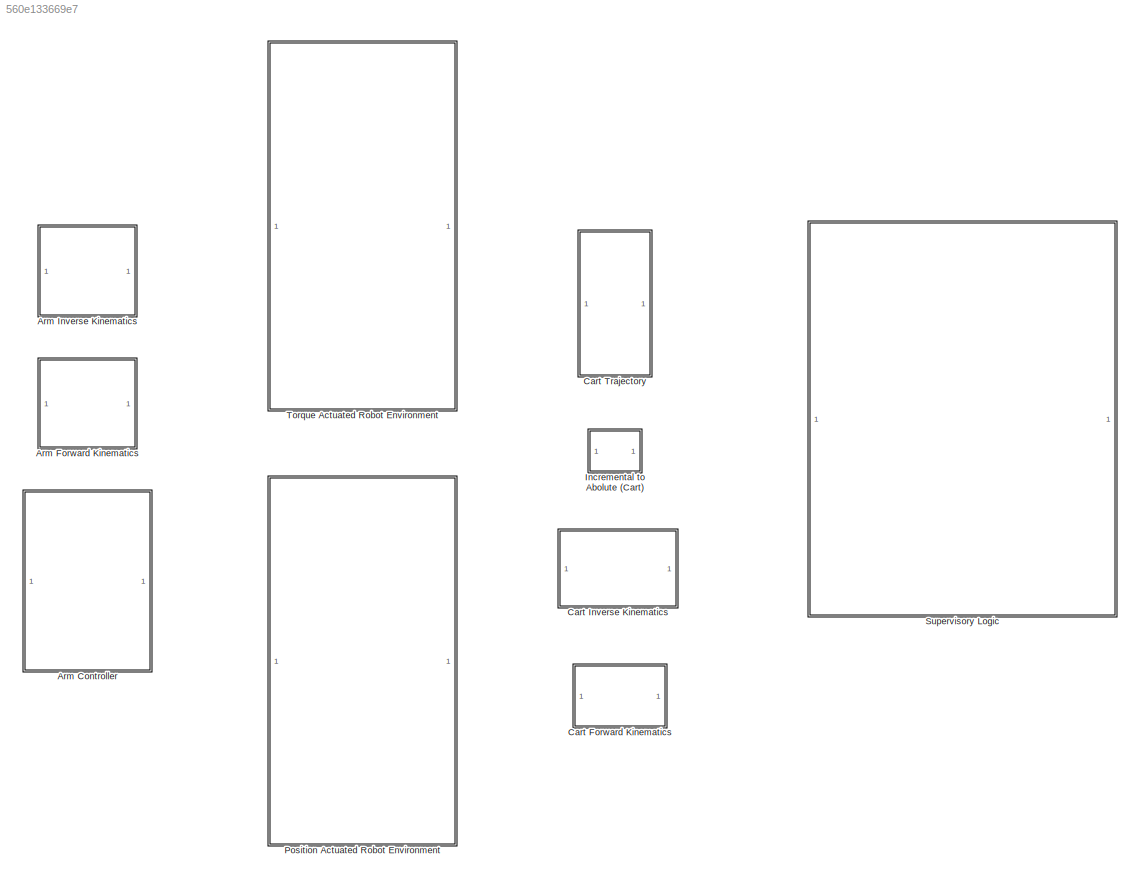
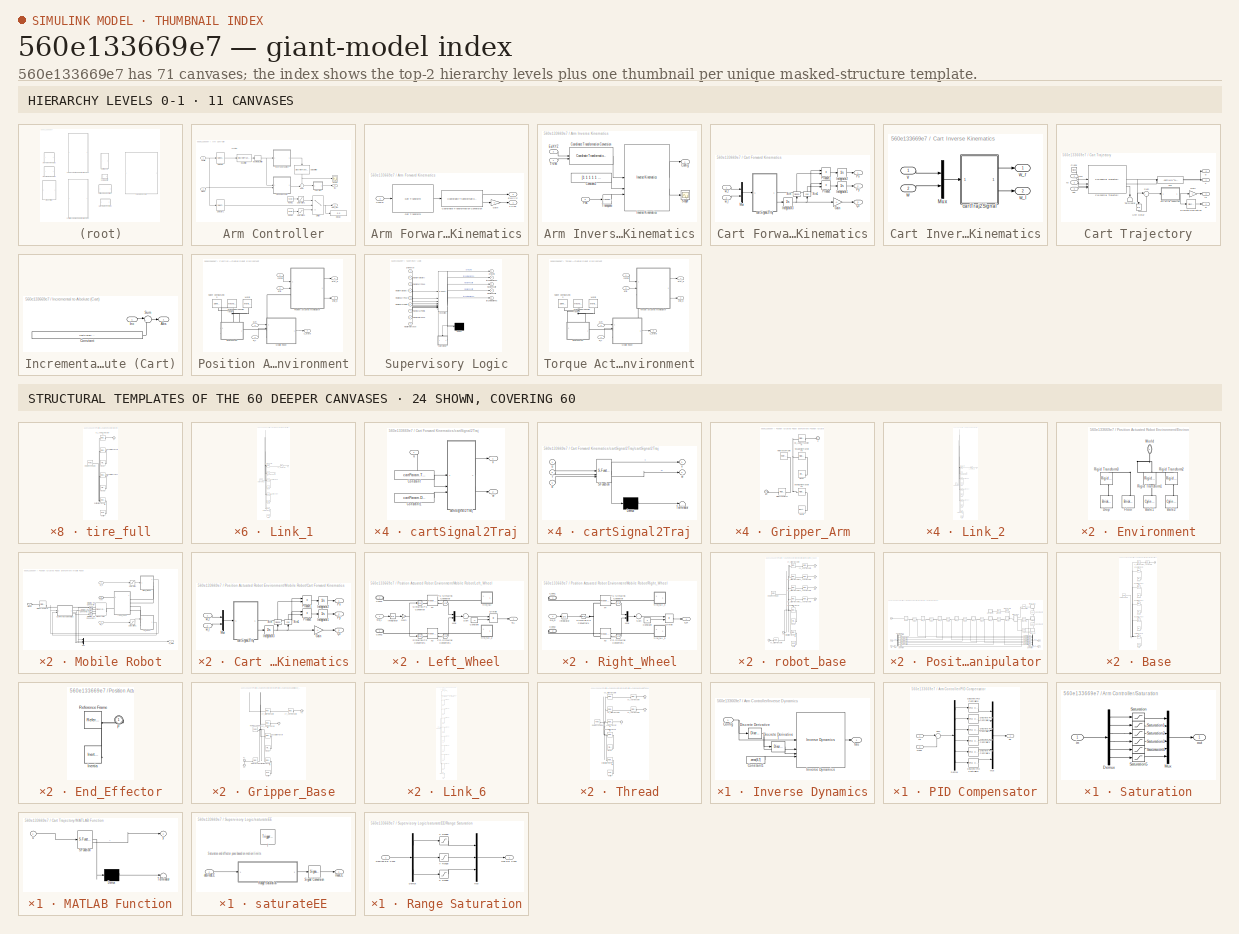
[diagram: thumbnail index - top-2 hierarchy levels (11 canvases) + 24 structural-template representatives of the remaining 60 canvases]
MODEL slx_560e133669e7
KIND model
CONFIG AbsTol = auto
CONFIG EnableMultiTasking = off
CONFIG FixedStep = auto
CONFIG MaxStep = auto
CONFIG MinStep = auto
CONFIG RelTol = 1e-3
CONFIG SampleTimeConstraint = Unconstrained
CONFIG SolverName = VariableStepAuto
CONFIG StartTime = 0.0
CONFIG StopTime = 3
BLOCK [SubSystem] Arm Controller
BLOCK [Inport] Arm Controller/Config
BLOCK [Display] Arm Controller/Display
  Decimation = 1
BLOCK [Outport] Arm Controller/Grip_Out
  Port = 2
BLOCK [DiscreteTransferFcn] Arm Controller/Input Filter
  Denominator = [1 -0.9753]
  InputPortMap = u0
  Numerator = 0.02469
BLOCK [RateLimiter] Arm Controller/Input Rate Limiter
  FallingSlewLimit = -2*pi
  RisingSlewLimit = 2*pi
  SampleTimeMode = inherited
BLOCK [SubSystem] Arm Controller/Inverse Dynamics
BLOCK [Inport] Arm Controller/Inverse Dynamics/Config
BLOCK [Constant] Arm Controller/Inverse Dynamics/Constant1
  Value = zeros(6,7)
BLOCK [Reference] Arm Controller/Inverse Dynamics/Discrete Derivative  REF=simulink/Discrete/Discrete Derivative
  SourceBlock = simulink/Discrete/Discrete Derivative
  SourceType = Discrete Derivative
BLOCK [Reference] Arm Controller/Inverse Dynamics/Discrete Derivative1  REF=simulink/Discrete/Discrete Derivative
  SourceBlock = simulink/Discrete/Discrete Derivative
  SourceType = Discrete Derivative
BLOCK [Reference] Arm Controller/Inverse Dynamics/Inverse Dynamics  REF=robotmaniplib/Inverse Dynamics
  SourceBlock = robotmaniplib/Inverse Dynamics
  SourceType = Inverse Dynamics
BLOCK [Outport] Arm Controller/Inverse Dynamics/tau
BLOCK [Inport] Arm Controller/Meas
  Port = 2
BLOCK [DiscreteTransferFcn] Arm Controller/Output Filter
  Denominator = [1 -0.9753]
  InputPortMap = u0
  Numerator = 0.02469
  SampleTime = 0.001
BLOCK [SubSystem] Arm Controller/PID Compensator
BLOCK [Demux] Arm Controller/PID Compensator/Demux
  Outputs = 6
BLOCK [Reference] Arm Controller/PID Compensator/Discrete PID Controller1  REF=slpidlib/PID Controller
  LibrarySourceBlock = simulink/Discrete/Discrete PID Controller
  SourceBlock = slpidlib/PID Controller
  SourceType = PID 1dof
BLOCK [Reference] Arm Controller/PID Compensator/Discrete PID Controller2  REF=slpidlib/PID Controller
  LibrarySourceBlock = simulink/Discrete/Discrete PID Controller
  SourceBlock = slpidlib/PID Controller
  SourceType = PID 1dof
BLOCK [Reference] Arm Controller/PID Compensator/Discrete PID Controller3  REF=slpidlib/PID Controller
  LibrarySourceBlock = simulink/Discrete/Discrete PID Controller
  SourceBlock = slpidlib/PID Controller
  SourceType = PID 1dof
BLOCK [Reference] Arm Controller/PID Compensator/Discrete PID Controller4  REF=slpidlib/PID Controller
  LibrarySourceBlock = simulink/Discrete/Discrete PID Controller
  SourceBlock = slpidlib/PID Controller
  SourceType = PID 1dof
BLOCK [Reference] Arm Controller/PID Compensator/Discrete PID Controller5  REF=slpidlib/PID Controller
  LibrarySourceBlock = simulink/Discrete/Discrete PID Controller
  SourceBlock = slpidlib/PID Controller
  SourceType = PID 1dof
BLOCK [Reference] Arm Controller/PID Compensator/Discrete PID Controller6  REF=slpidlib/PID Controller
  LibrarySourceBlock = simulink/Discrete/Discrete PID Controller
  SourceBlock = slpidlib/PID Controller
  SourceType = PID 1dof
BLOCK [Mux] Arm Controller/PID Compensator/Mux
  DisplayOption = bar
  Inputs = 6
BLOCK [Sum] Arm Controller/PID Compensator/Sum
  Inputs = |+-
BLOCK [Inport] Arm Controller/PID Compensator/meas
  Port = 2
BLOCK [Inport] Arm Controller/PID Compensator/ref
BLOCK [Outport] Arm Controller/PID Compensator/sig
BLOCK [Reference] Arm Controller/Ramp1  REF=simulink/Sources/Ramp
  SourceBlock = simulink/Sources/Ramp
  SourceType = Ramp
BLOCK [Reference] Arm Controller/Ramp2  REF=simulink/Sources/Ramp
  SourceBlock = simulink/Sources/Ramp
  SourceType = Ramp
BLOCK [SubSystem] Arm Controller/Saturation
  Commented = through
BLOCK [Demux] Arm Controller/Saturation/Demux
  Outputs = 6
BLOCK [Mux] Arm Controller/Saturation/Mux
  DisplayOption = bar
  Inputs = 6
BLOCK [Saturate] Arm Controller/Saturation/Saturation
  LowerLimit = tau_1_L
  UpperLimit = tau_1_U
BLOCK [Saturate] Arm Controller/Saturation/Saturation1
  LowerLimit = tau_2_L
  UpperLimit = tau_2_U
BLOCK [Saturate] Arm Controller/Saturation/Saturation2
  LowerLimit = tau_3_L
  UpperLimit = tau_3_U
BLOCK [Saturate] Arm Controller/Saturation/Saturation3
  LowerLimit = tau_4_L
  UpperLimit = tau_4_U
BLOCK [Saturate] Arm Controller/Saturation/Saturation4
  LowerLimit = tau_5_L
  UpperLimit = tau_5_U
BLOCK [Saturate] Arm Controller/Saturation/Saturation5
  LowerLimit = tau_6_L
  UpperLimit = tau_6_U
BLOCK [Inport] Arm Controller/Saturation/in
BLOCK [Outport] Arm Controller/Saturation/out
BLOCK [Saturate] Arm Controller/Saturation1
  LowerLimit = 0
  UpperLimit = 224
BLOCK [Saturate] Arm Controller/Saturation2
  LowerLimit = 0
  UpperLimit = 224
BLOCK [Scope] Arm Controller/Scope
  Floating = off
  NumInputPorts = 1
  ScopeSpecificationString = Simulink.scopes.TimeScopeBlockCfg('CurrentConfiguration', extmgr.ConfigurationSet(extmgr.Configuration('Core','General UI',true),extmgr.Configuration('Core','Source UI',true),extmgr.Configuration('Sources','WiredSimulink',true),extmgr.Configuration('Visuals','Time Domain',true,'SerializedDisplays',{struct('MinYLimReal','-3026.57296','MaxYLimReal','1267.02491','YLabelReal','','MinYLimMag','  0.0000...<+1466ch>
BLOCK [Selector] Arm Controller/Selector
  IndexOptions = Index vector (dialog)
  Indices = [1:6]
  InputPortWidth = 7
  OutputSizes = 1
BLOCK [Selector] Arm Controller/Selector1
  IndexOptions = Index vector (dialog)
  Indices = [7]
  InputPortWidth = 7
  OutputSizes = 1
BLOCK [Sum] Arm Controller/Sum
  Inputs = ++|
BLOCK [Switch] Arm Controller/Switch
  Criteria = u2 > Threshold
  InputSameDT = off
  SaturateOnIntegerOverflow = off
BLOCK [Outport] Arm Controller/tau
BLOCK [SubSystem] Arm Forward Kinematics
BLOCK [Inport] Arm Forward Kinematics/Config
BLOCK [Reference] Arm Forward Kinematics/Coordinate Transformation Conversion  REF=robotcorelib/Coordinate Transformation Conversion
  LibrarySourceBlock = robotutilslib/Coordinate Transformation Conversion
  SourceBlock = robotcorelib/Coordinate Transformation Conversion
  SourceType = robotics.slcore.internal.block.CoordinateTransformationConversion
BLOCK [Outport] Arm Forward Kinematics/EulXYZ
  Port = 2
BLOCK [Gain] Arm Forward Kinematics/Gain
  Gain = -1
BLOCK [Reference] Arm Forward Kinematics/Get Transform  REF=robotmaniplib/Get Transform
  SourceBlock = robotmaniplib/Get Transform
  SourceType = Get Transform
BLOCK [Outport] Arm Forward Kinematics/TrVec
BLOCK [SubSystem] Arm Inverse Kinematics
BLOCK [Outport] Arm Inverse Kinematics/Config
BLOCK [Constant] Arm Inverse Kinematics/Constant2
  Value = [1 1 1 1 1 1]
BLOCK [Reference] Arm Inverse Kinematics/Coordinate Transformation Conversion  REF=robotcorelib/Coordinate Transformation Conversion
  LibrarySourceBlock = robotutilslib/Coordinate Transformation Conversion
  SourceBlock = robotcorelib/Coordinate Transformation Conversion
  SourceType = robotics.slcore.internal.block.CoordinateTransformationConversion
BLOCK [Inport] Arm Inverse Kinematics/EulXYZ
  Port = 2
BLOCK [Reference] Arm Inverse Kinematics/Inverse Kinematics  REF=robotmaniplib/Inverse Kinematics
  SourceBlock = robotmaniplib/Inverse Kinematics
  SourceType = Inverse Kinematics
BLOCK [Inport] Arm Inverse Kinematics/Pos
  Port = 3
BLOCK [Scope] Arm Inverse Kinematics/Scope
  Floating = off
  NumInputPorts = 1
  ScopeSpecificationString = Simulink.scopes.TimeScopeBlockCfg('CurrentConfiguration', extmgr.ConfigurationSet(extmgr.Configuration('Core','General UI',true),extmgr.Configuration('Core','Source UI',true),extmgr.Configuration('Sources','WiredSimulink',true),extmgr.Configuration('Visuals','Time Domain',true),extmgr.Configuration('Tools','Plot Navigation',true),extmgr.Configuration('Tools','Measurements',true)),'Version','2023a'...<+1ch>
BLOCK [Inport] Arm Inverse Kinematics/TrVec
BLOCK [Math] Arm Inverse Kinematics/Transpose
  Operator = transpose
BLOCK [SubSystem] Cart Forward Kinematics
BLOCK [Gain] Cart Forward Kinematics/Gain
  Gain = -1
BLOCK [Integrator] Cart Forward Kinematics/Integrator1
BLOCK [Integrator] Cart Forward Kinematics/Integrator2
BLOCK [Integrator] Cart Forward Kinematics/Integrator3
BLOCK [Mux] Cart Forward Kinematics/Mux
  DisplayOption = bar
  Inputs = 2
BLOCK [Product] Cart Forward Kinematics/Product
BLOCK [Product] Cart Forward Kinematics/Product1
BLOCK [Outport] Cart Forward Kinematics/Px
BLOCK [Outport] Cart Forward Kinematics/Py
  Port = 2
BLOCK [Outport] Cart Forward Kinematics/Qz
  Port = 3
BLOCK [Trigonometry] Cart Forward Kinematics/Sin
  NameLocation = right
BLOCK [Trigonometry] Cart Forward Kinematics/Sin1
  NameLocation = right
  Operator = cos
BLOCK [SubSystem] Cart Forward Kinematics/cartSignal2Traj
BLOCK [Constant] Cart Forward Kinematics/cartSignal2Traj/Constant
  Value = cartParam.TireRadius
BLOCK [Constant] Cart Forward Kinematics/cartSignal2Traj/Constant1
  Value = cartParam.DistanceBwTires
BLOCK [SubSystem] Cart Forward Kinematics/cartSignal2Traj/cartSignal2Traj
  ErrorFcn = Stateflow.Translate.translate
  LibrarySourceBlock = simulink/User-Defined\nFunctions/MATLAB Function
  PermitHierarchicalResolution = ExplicitOnly
  SFBlockType = MATLAB Function
  TreatAsAtomicUnit = on
BLOCK [Demux] Cart Forward Kinematics/cartSignal2Traj/cartSignal2Traj/ Demux 
  Outputs = 1
BLOCK [S-Function] Cart Forward Kinematics/cartSignal2Traj/cartSignal2Traj/ SFunction 
  EnableBusSupport = on
  FunctionName = sf_sfun
  PortCounts = [3 3]
  SFcnIsStateOwnerBlock = off
  SFunctionDeploymentMode = off
  Tag = Stateflow S-Function 5
BLOCK [Terminator] Cart Forward Kinematics/cartSignal2Traj/cartSignal2Traj/ Terminator 
BLOCK [Inport] Cart Forward Kinematics/cartSignal2Traj/cartSignal2Traj/b
  Port = 3
BLOCK [Inport] Cart Forward Kinematics/cartSignal2Traj/cartSignal2Traj/r
  Port = 2
BLOCK [Inport] Cart Forward Kinematics/cartSignal2Traj/cartSignal2Traj/u
BLOCK [Outport] Cart Forward Kinematics/cartSignal2Traj/cartSignal2Traj/v
BLOCK [Outport] Cart Forward Kinematics/cartSignal2Traj/cartSignal2Traj/w
  Port = 2
BLOCK [Inport] Cart Forward Kinematics/cartSignal2Traj/u
BLOCK [Outport] Cart Forward Kinematics/cartSignal2Traj/v
BLOCK [Outport] Cart Forward Kinematics/cartSignal2Traj/w
  Port = 2
BLOCK [Inport] Cart Forward Kinematics/w_l
  Port = 2
BLOCK [Inport] Cart Forward Kinematics/w_r
BLOCK [SubSystem] Cart Inverse Kinematics
  PortSchema = {"entries":[{"content":{"sides":[{"content":{"connectorIds":["In1","In2"]},"type":"ConnectorPlacement.EquallySpacedRectSide","uuid":"7f22b938-58ee-4238-b1b7-b23dabfa1fc4"},{"content":{"side":"RIGHT"},"type":"ConnectorPlacement.EquallySpacedRectSide","uuid":"1a095504-1358-40ea-b561-93851aaa8a0a"},{"content":{"connectorIds":["Out1","Out2"],"side":"TOP"},"type":"ConnectorPlacement.EquallySpacedRectSi...<+235ch>
BLOCK [Mux] Cart Inverse Kinematics/Mux
  DisplayOption = bar
  Inputs = 2
BLOCK [SubSystem] Cart Inverse Kinematics/cartTraj2Signal
BLOCK [Constant] Cart Inverse Kinematics/cartTraj2Signal/Constant
  Value = cartParam.TireRadius
BLOCK [Constant] Cart Inverse Kinematics/cartTraj2Signal/Constant1
  Value = cartParam.DistanceBwTires
BLOCK [SubSystem] Cart Inverse Kinematics/cartTraj2Signal/cartTraj2Signal
  ErrorFcn = Stateflow.Translate.translate
  LibrarySourceBlock = simulink/User-Defined\nFunctions/MATLAB Function
  PermitHierarchicalResolution = ExplicitOnly
  SFBlockType = MATLAB Function
  TreatAsAtomicUnit = on
BLOCK [Demux] Cart Inverse Kinematics/cartTraj2Signal/cartTraj2Signal/ Demux 
  Outputs = 1
BLOCK [S-Function] Cart Inverse Kinematics/cartTraj2Signal/cartTraj2Signal/ SFunction 
  EnableBusSupport = on
  FunctionName = sf_sfun
  PortCounts = [3 3]
  SFcnIsStateOwnerBlock = off
  SFunctionDeploymentMode = off
  Tag = Stateflow S-Function 3
BLOCK [Terminator] Cart Inverse Kinematics/cartTraj2Signal/cartTraj2Signal/ Terminator 
BLOCK [Inport] Cart Inverse Kinematics/cartTraj2Signal/cartTraj2Signal/b
  Port = 3
BLOCK [Inport] Cart Inverse Kinematics/cartTraj2Signal/cartTraj2Signal/r
  Port = 2
BLOCK [Inport] Cart Inverse Kinematics/cartTraj2Signal/cartTraj2Signal/u
BLOCK [Outport] Cart Inverse Kinematics/cartTraj2Signal/cartTraj2Signal/w_l
  Port = 2
BLOCK [Outport] Cart Inverse Kinematics/cartTraj2Signal/cartTraj2Signal/w_r
BLOCK [Inport] Cart Inverse Kinematics/cartTraj2Signal/u
BLOCK [Outport] Cart Inverse Kinematics/cartTraj2Signal/w_l
  Port = 2
BLOCK [Outport] Cart Inverse Kinematics/cartTraj2Signal/w_r
BLOCK [Inport] Cart Inverse Kinematics/v
BLOCK [Inport] Cart Inverse Kinematics/w
  Port = 2
BLOCK [Outport] Cart Inverse Kinematics/w_l
  Port = 2
BLOCK [Outport] Cart Inverse Kinematics/w_r
BLOCK [SubSystem] Cart Trajectory
BLOCK [Clock] Cart Trajectory/Clock
  Decimation = 10000
BLOCK [Reference] Cart Trajectory/Discrete Derivative  REF=simulink/Discrete/Discrete Derivative
  SourceBlock = simulink/Discrete/Discrete Derivative
  SourceType = Discrete Derivative
BLOCK [Fcn] Cart Trajectory/Fcn
  Expr = -sqrt(u(1)^2+u(2)^2)
BLOCK [Gain] Cart Trajectory/Gain
  Gain = -1
BLOCK [SubSystem] Cart Trajectory/MATLAB Function
  ErrorFcn = Stateflow.Translate.translate
  LibrarySourceBlock = simulink/User-Defined\nFunctions/MATLAB Function
  PermitHierarchicalResolution = ExplicitOnly
  SFBlockType = MATLAB Function
  TreatAsAtomicUnit = on
BLOCK [Demux] Cart Trajectory/MATLAB Function/ Demux 
  Outputs = 1
BLOCK [S-Function] Cart Trajectory/MATLAB Function/ SFunction 
  EnableBusSupport = on
  FunctionName = sf_sfun
  PortCounts = [1 2]
  SFcnIsStateOwnerBlock = off
  SFunctionDeploymentMode = off
  Tag = Stateflow S-Function 4
BLOCK [Terminator] Cart Trajectory/MATLAB Function/ Terminator 
BLOCK [Inport] Cart Trajectory/MATLAB Function/u
BLOCK [Outport] Cart Trajectory/MATLAB Function/y
BLOCK [Reference] Cart Trajectory/Polynomial Trajectory  REF=robotcorelib/Polynomial Trajectory
  LibrarySourceBlock = robotutilslib/Polynomial Trajectory
  SourceBlock = robotcorelib/Polynomial Trajectory
  SourceType = robotics.slcore.internal.block.PolyTrajSys
BLOCK [Sum] Cart Trajectory/Sum
  Inputs = |+-
BLOCK [Terminator] Cart Trajectory/Terminator
  NameLocation = left
BLOCK [UnitDelay] Cart Trajectory/Unit Delay
  HasFrameUpgradeWarning = on
  InitialCondition = nan
  NameLocation = left
  SampleTime = TsCtrl*10*10/5
BLOCK [Outport] Cart Trajectory/q
  Port = 4
BLOCK [Outport] Cart Trajectory/th
  Port = 3
BLOCK [Inport] Cart Trajectory/tp
  Port = 2
BLOCK [Outport] Cart Trajectory/v
BLOCK [Inport] Cart Trajectory/vbc
  Port = 3
BLOCK [Outport] Cart Trajectory/w
  Port = 2
BLOCK [Inport] Cart Trajectory/wp
BLOCK [SubSystem] Incremental to Abolute (Cart)
BLOCK [Outport] Incremental to Abolute (Cart)/Abs
BLOCK [Constant] Incremental to Abolute (Cart)/Constant
  Value = [cartParam.Initial.X cartParam.Initial.Y cartParam.Initial.Phase]
BLOCK [Inport] Incremental to Abolute (Cart)/Inc
BLOCK [Sum] Incremental to Abolute (Cart)/Sum
  Inputs = |++
BLOCK [SubSystem] Position Actuated Robot Environment
BLOCK [SubSystem] Position Actuated Robot Environment/Environment
  PortSchema = {"entries":[{"content":{"sides":[{"content":{},"type":"ConnectorPlacement.EquallySpacedRectSide","uuid":"5def06b4-e9ff-4a85-b61f-9c1ca1eb2651"},{"content":{"side":"RIGHT"},"type":"ConnectorPlacement.EquallySpacedRectSide","uuid":"677c7377-133e-4d80-a2a0-681276e021e2"},{"content":{"connectorIds":["LConn1"],"side":"TOP"},"type":"ConnectorPlacement.EquallySpacedRectSide","uuid":"d4b83d5b-4d34-444d-a5...<+202ch>
BLOCK [Reference] Position Actuated Robot Environment/Environment/Bale1  REF=sm_lib/Body Elements/Cylindrical Solid
  SourceBlock = sm_lib/Body Elements/Cylindrical Solid
  SourceType = Cylindrical Solid
BLOCK [Reference] Position Actuated Robot Environment/Environment/Bale2  REF=sm_lib/Body Elements/Cylindrical Solid
  SourceBlock = sm_lib/Body Elements/Cylindrical Solid
  SourceType = Cylindrical Solid
BLOCK [Reference] Position Actuated Robot Environment/Environment/Drop  REF=sm_lib/Body Elements/Brick Solid
  SourceBlock = sm_lib/Body Elements/Brick Solid
  SourceType = Brick Solid
BLOCK [Reference] Position Actuated Robot Environment/Environment/Floor  REF=sm_lib/Body Elements/Brick Solid
  SourceBlock = sm_lib/Body Elements/Brick Solid
  SourceType = Brick Solid
BLOCK [Reference] Position Actuated Robot Environment/Environment/Rigid Transform1  REF=sm_lib/Frames and
Transforms/Rigid
Transform
  NameLocation = left
  SourceBlock = sm_lib/Frames and\nTransforms/Rigid\nTransform
  SourceType = Rigid\nTransform
BLOCK [Reference] Position Actuated Robot Environment/Environment/Rigid Transform2  REF=sm_lib/Frames and
Transforms/Rigid
Transform
  NameLocation = left
  SourceBlock = sm_lib/Frames and\nTransforms/Rigid\nTransform
  SourceType = Rigid\nTransform
BLOCK [Reference] Position Actuated Robot Environment/Environment/Rigid Transform3  REF=sm_lib/Frames and
Transforms/Rigid
Transform
  NameLocation = left
  SourceBlock = sm_lib/Frames and\nTransforms/Rigid\nTransform
  SourceType = Rigid\nTransform
BLOCK [PMIOPort] Position Actuated Robot Environment/Environment/World
  NameLocation = left
  Side = Left
BLOCK [Reference] Position Actuated Robot Environment/MechanismConfiguration  REF=sm_lib/Utilities/Mechanism
Configuration
  NameLocation = left
  SourceBlock = sm_lib/Utilities/Mechanism\nConfiguration
  SourceType = Mechanism\nConfiguration
BLOCK [SubSystem] Position Actuated Robot Environment/Mobile Robot
  PortSchema = {"entries":[{"content":{"sides":[{"content":{"connectorIds":["In1","In2"]},"type":"ConnectorPlacement.EquallySpacedRectSide","uuid":"d865e24f-6e94-4741-8663-2233d7cc6fe3"},{"content":{"connectorIds":["Out1"],"side":"RIGHT"},"type":"ConnectorPlacement.EquallySpacedRectSide","uuid":"e7ebc92e-d028-4010-9d41-bb6c59c0597a"},{"content":{"connectorIds":["LConn1","LConn2"],"side":"TOP"},"type":"ConnectorP...<+263ch>
BLOCK [PMIOPort] Position Actuated Robot Environment/Mobile Robot/Arm
  Port = 2
  Side = Left
BLOCK [Outport] Position Actuated Robot Environment/Mobile Robot/C_State
BLOCK [SubSystem] Position Actuated Robot Environment/Mobile Robot/Cart Forward Kinematics
BLOCK [Gain] Position Actuated Robot Environment/Mobile Robot/Cart Forward Kinematics/Gain
  Gain = -1
BLOCK [Integrator] Position Actuated Robot Environment/Mobile Robot/Cart Forward Kinematics/Integrator1
BLOCK [Integrator] Position Actuated Robot Environment/Mobile Robot/Cart Forward Kinematics/Integrator2
BLOCK [Integrator] Position Actuated Robot Environment/Mobile Robot/Cart Forward Kinematics/Integrator3
BLOCK [Mux] Position Actuated Robot Environment/Mobile Robot/Cart Forward Kinematics/Mux
  DisplayOption = bar
  Inputs = 2
BLOCK [Product] Position Actuated Robot Environment/Mobile Robot/Cart Forward Kinematics/Product
BLOCK [Product] Position Actuated Robot Environment/Mobile Robot/Cart Forward Kinematics/Product1
BLOCK [Outport] Position Actuated Robot Environment/Mobile Robot/Cart Forward Kinematics/Px
BLOCK [Outport] Position Actuated Robot Environment/Mobile Robot/Cart Forward Kinematics/Py
  Port = 2
BLOCK [Outport] Position Actuated Robot Environment/Mobile Robot/Cart Forward Kinematics/Qz
  Port = 3
BLOCK [Trigonometry] Position Actuated Robot Environment/Mobile Robot/Cart Forward Kinematics/Sin
  NameLocation = right
BLOCK [Trigonometry] Position Actuated Robot Environment/Mobile Robot/Cart Forward Kinematics/Sin1
  NameLocation = right
  Operator = cos
BLOCK [SubSystem] Position Actuated Robot Environment/Mobile Robot/Cart Forward Kinematics/cartSignal2Traj
BLOCK [Constant] Position Actuated Robot Environment/Mobile Robot/Cart Forward Kinematics/cartSignal2Traj/Constant
  Value = cartParam.TireRadius
BLOCK [Constant] Position Actuated Robot Environment/Mobile Robot/Cart Forward Kinematics/cartSignal2Traj/Constant1
  Value = cartParam.DistanceBwTires
BLOCK [SubSystem] Position Actuated Robot Environment/Mobile Robot/Cart Forward Kinematics/cartSignal2Traj/cartSignal2Traj
  ErrorFcn = Stateflow.Translate.translate
  LibrarySourceBlock = simulink/User-Defined\nFunctions/MATLAB Function
  PermitHierarchicalResolution = ExplicitOnly
  SFBlockType = MATLAB Function
  TreatAsAtomicUnit = on
BLOCK [Demux] Position Actuated Robot Environment/Mobile Robot/Cart Forward Kinematics/cartSignal2Traj/cartSignal2Traj/ Demux 
  Outputs = 1
BLOCK [S-Function] Position Actuated Robot Environment/Mobile Robot/Cart Forward Kinematics/cartSignal2Traj/cartSignal2Traj/ SFunction 
  EnableBusSupport = on
  FunctionName = sf_sfun
  PortCounts = [3 3]
  SFcnIsStateOwnerBlock = off
  SFunctionDeploymentMode = off
  Tag = Stateflow S-Function 2
BLOCK [Terminator] Position Actuated Robot Environment/Mobile Robot/Cart Forward Kinematics/cartSignal2Traj/cartSignal2Traj/ Terminator 
BLOCK [Inport] Position Actuated Robot Environment/Mobile Robot/Cart Forward Kinematics/cartSignal2Traj/cartSignal2Traj/b
  Port = 3
BLOCK [Inport] Position Actuated Robot Environment/Mobile Robot/Cart Forward Kinematics/cartSignal2Traj/cartSignal2Traj/r
  Port = 2
BLOCK [Inport] Position Actuated Robot Environment/Mobile Robot/Cart Forward Kinematics/cartSignal2Traj/cartSignal2Traj/u
BLOCK [Outport] Position Actuated Robot Environment/Mobile Robot/Cart Forward Kinematics/cartSignal2Traj/cartSignal2Traj/v
BLOCK [Outport] Position Actuated Robot Environment/Mobile Robot/Cart Forward Kinematics/cartSignal2Traj/cartSignal2Traj/w
  Port = 2
BLOCK [Inport] Position Actuated Robot Environment/Mobile Robot/Cart Forward Kinematics/cartSignal2Traj/u
BLOCK [Outport] Position Actuated Robot Environment/Mobile Robot/Cart Forward Kinematics/cartSignal2Traj/v
BLOCK [Outport] Position Actuated Robot Environment/Mobile Robot/Cart Forward Kinematics/cartSignal2Traj/w
  Port = 2
BLOCK [Inport] Position Actuated Robot Environment/Mobile Robot/Cart Forward Kinematics/w_l
  Port = 2
BLOCK [Inport] Position Actuated Robot Environment/Mobile Robot/Cart Forward Kinematics/w_r
BLOCK [SubSystem] Position Actuated Robot Environment/Mobile Robot/Left_Wheel
  PortSchema = {"entries":[{"content":{"sides":[{"content":{"connectorIds":["In1"]},"type":"ConnectorPlacement.EquallySpacedRectSide","uuid":"fd18bf8d-3737-4723-9876-24822d4defed"},{"content":{"connectorIds":["Out1"],"side":"RIGHT"},"type":"ConnectorPlacement.EquallySpacedRectSide","uuid":"10024688-4880-4c6e-a930-73264966df0e"},{"content":{"connectorIds":["LConn1","LConn2"],"side":"TOP"},"type":"ConnectorPlaceme...<+383ch>
BLOCK [PMIOPort] Position Actuated Robot Environment/Mobile Robot/Left_Wheel/Conn1
  Port = 2
  Side = Left
BLOCK [PMIOPort] Position Actuated Robot Environment/Mobile Robot/Left_Wheel/Conn2
  Side = Left
BLOCK [Constant] Position Actuated Robot Environment/Mobile Robot/Left_Wheel/Constant
  Value = -2
BLOCK [Product] Position Actuated Robot Environment/Mobile Robot/Left_Wheel/Divide
  Inputs = */
BLOCK [Gain] Position Actuated Robot Environment/Mobile Robot/Left_Wheel/Gain
  Gain = -1
BLOCK [Integrator] Position Actuated Robot Environment/Mobile Robot/Left_Wheel/Integrator
BLOCK [Mux] Position Actuated Robot Environment/Mobile Robot/Left_Wheel/Mux
  DisplayOption = bar
  Inputs = 2
BLOCK [Reference] Position Actuated Robot Environment/Mobile Robot/Left_Wheel/PS-Simulink Converter  REF=nesl_utility/PS-Simulink
Converter
  SourceBlock = nesl_utility/PS-Simulink\nConverter
  SourceType = PS-Simulink\nConverter
BLOCK [Reference] Position Actuated Robot Environment/Mobile Robot/Left_Wheel/PS-Simulink Converter1  REF=nesl_utility/PS-Simulink
Converter
  SourceBlock = nesl_utility/PS-Simulink\nConverter
  SourceType = PS-Simulink\nConverter
BLOCK [Reference] Position Actuated Robot Environment/Mobile Robot/Left_Wheel/Simulink-PS Converter  REF=nesl_utility/Simulink-PS
Converter
  SourceBlock = nesl_utility/Simulink-PS\nConverter
  SourceType = Simulink-PS\nConverter
BLOCK [Reference] Position Actuated Robot Environment/Mobile Robot/Left_Wheel/Simulink-PS Converter1  REF=nesl_utility/Simulink-PS
Converter
  SourceBlock = nesl_utility/Simulink-PS\nConverter
  SourceType = Simulink-PS\nConverter
BLOCK [Sum] Position Actuated Robot Environment/Mobile Robot/Left_Wheel/Sum
  Inputs = +
BLOCK [Outport] Position Actuated Robot Environment/Mobile Robot/Left_Wheel/q_L
BLOCK [Inport] Position Actuated Robot Environment/Mobile Robot/Left_Wheel/sig_L
BLOCK [SubSystem] Position Actuated Robot Environment/Mobile Robot/Left_Wheel/tire_full
BLOCK [PMIOPort] Position Actuated Robot Environment/Mobile Robot/Left_Wheel/tire_full/F
  Side = Left
BLOCK [Reference] Position Actuated Robot Environment/Mobile Robot/Left_Wheel/tire_full/Inertia  REF=sm_lib/Body Elements/Inertia
  SourceBlock = sm_lib/Body Elements/Inertia
  SourceType = Inertia
BLOCK [Reference] Position Actuated Robot Environment/Mobile Robot/Left_Wheel/tire_full/InertiaOriginTransform  REF=sm_lib/Frames and
Transforms/Rigid
Transform
  SourceBlock = sm_lib/Frames and\nTransforms/Rigid\nTransform
  SourceType = Rigid\nTransform
BLOCK [Reference] Position Actuated Robot Environment/Mobile Robot/Left_Wheel/tire_full/ReferenceFrame  REF=sm_lib/Frames and
Transforms/Reference
Frame
  SourceBlock = sm_lib/Frames and\nTransforms/Reference\nFrame
  SourceType = Reference\nFrame
BLOCK [Reference] Position Actuated Robot Environment/Mobile Robot/Left_Wheel/tire_full/Visual  REF=sm_lib/Body Elements/File Solid
  SourceBlock = sm_lib/Body Elements/File Solid
  SourceType = File Solid
BLOCK [Reference] Position Actuated Robot Environment/Mobile Robot/Left_Wheel/tire_full/Visual1  REF=sm_lib/Body Elements/File Solid
  SourceBlock = sm_lib/Body Elements/File Solid
  SourceType = File Solid
BLOCK [Reference] Position Actuated Robot Environment/Mobile Robot/Left_Wheel/tire_full/VisualOrigin1Transform  REF=sm_lib/Frames and
Transforms/Rigid
Transform
  SourceBlock = sm_lib/Frames and\nTransforms/Rigid\nTransform
  SourceType = Rigid\nTransform
BLOCK [Reference] Position Actuated Robot Environment/Mobile Robot/Left_Wheel/tire_full/VisualOriginTransform  REF=sm_lib/Frames and
Transforms/Rigid
Transform
  SourceBlock = sm_lib/Frames and\nTransforms/Rigid\nTransform
  SourceType = Rigid\nTransform
BLOCK [Reference] Position Actuated Robot Environment/Mobile Robot/Left_Wheel/tire_full/x1_AxisInvTransform  REF=sm_lib/Frames and
Transforms/Rigid
Transform
  SourceBlock = sm_lib/Frames and\nTransforms/Rigid\nTransform
  SourceType = Rigid\nTransform
BLOCK [SubSystem] Position Actuated Robot Environment/Mobile Robot/Left_Wheel/tire_full_2
BLOCK [PMIOPort] Position Actuated Robot Environment/Mobile Robot/Left_Wheel/tire_full_2/F
  Side = Left
BLOCK [Reference] Position Actuated Robot Environment/Mobile Robot/Left_Wheel/tire_full_2/Inertia  REF=sm_lib/Body Elements/Inertia
  SourceBlock = sm_lib/Body Elements/Inertia
  SourceType = Inertia
BLOCK [Reference] Position Actuated Robot Environment/Mobile Robot/Left_Wheel/tire_full_2/InertiaOriginTransform  REF=sm_lib/Frames and
Transforms/Rigid
Transform
  SourceBlock = sm_lib/Frames and\nTransforms/Rigid\nTransform
  SourceType = Rigid\nTransform
BLOCK [Reference] Position Actuated Robot Environment/Mobile Robot/Left_Wheel/tire_full_2/ReferenceFrame  REF=sm_lib/Frames and
Transforms/Reference
Frame
  SourceBlock = sm_lib/Frames and\nTransforms/Reference\nFrame
  SourceType = Reference\nFrame
BLOCK [Reference] Position Actuated Robot Environment/Mobile Robot/Left_Wheel/tire_full_2/Visual  REF=sm_lib/Body Elements/File Solid
  SourceBlock = sm_lib/Body Elements/File Solid
  SourceType = File Solid
BLOCK [Reference] Position Actuated Robot Environment/Mobile Robot/Left_Wheel/tire_full_2/Visual1  REF=sm_lib/Body Elements/File Solid
  SourceBlock = sm_lib/Body Elements/File Solid
  SourceType = File Solid
BLOCK [Reference] Position Actuated Robot Environment/Mobile Robot/Left_Wheel/tire_full_2/VisualOrigin1Transform  REF=sm_lib/Frames and
Transforms/Rigid
Transform
  SourceBlock = sm_lib/Frames and\nTransforms/Rigid\nTransform
  SourceType = Rigid\nTransform
BLOCK [Reference] Position Actuated Robot Environment/Mobile Robot/Left_Wheel/tire_full_2/VisualOriginTransform  REF=sm_lib/Frames and
Transforms/Rigid
Transform
  SourceBlock = sm_lib/Frames and\nTransforms/Rigid\nTransform
  SourceType = Rigid\nTransform
BLOCK [Reference] Position Actuated Robot Environment/Mobile Robot/Left_Wheel/tire_full_2/x2_AxisInvTransform  REF=sm_lib/Frames and
Transforms/Rigid
Transform
  SourceBlock = sm_lib/Frames and\nTransforms/Rigid\nTransform
  SourceType = Rigid\nTransform
BLOCK [Reference] Position Actuated Robot Environment/Mobile Robot/Left_Wheel/x3  REF=sm_lib/Joints/Revolute Joint
  SourceBlock = sm_lib/Joints/Revolute Joint
  SourceType = Revolute Joint
BLOCK [Reference] Position Actuated Robot Environment/Mobile Robot/Left_Wheel/x4  REF=sm_lib/Joints/Revolute Joint
  SourceBlock = sm_lib/Joints/Revolute Joint
  SourceType = Revolute Joint
BLOCK [Mux] Position Actuated Robot Environment/Mobile Robot/Mux
  DisplayOption = bar
  Inputs = 3
BLOCK [Reference] Position Actuated Robot Environment/Mobile Robot/Planar Joint  REF=sm_lib/Joints/Planar Joint
  SourceBlock = sm_lib/Joints/Planar Joint
  SourceType = Planar Joint
BLOCK [SubSystem] Position Actuated Robot Environment/Mobile Robot/Right_Wheel
  NameLocation = top
  PortSchema = {"entries":[{"content":{"sides":[{"content":{"connectorIds":["In1"]},"type":"ConnectorPlacement.EquallySpacedRectSide","uuid":"fd18bf8d-3737-4723-9876-24822d4defed"},{"content":{"connectorIds":["Out1"],"side":"RIGHT"},"type":"ConnectorPlacement.EquallySpacedRectSide","uuid":"10024688-4880-4c6e-a930-73264966df0e"},{"content":{"side":"TOP"},"type":"ConnectorPlacement.EquallySpacedRectSide","uuid":"d...<+383ch>
BLOCK [PMIOPort] Position Actuated Robot Environment/Mobile Robot/Right_Wheel/Conn1
  Side = Right
BLOCK [PMIOPort] Position Actuated Robot Environment/Mobile Robot/Right_Wheel/Conn2
  Port = 2
  Side = Right
BLOCK [Constant] Position Actuated Robot Environment/Mobile Robot/Right_Wheel/Constant
  Value = 2
BLOCK [Product] Position Actuated Robot Environment/Mobile Robot/Right_Wheel/Divide
  Inputs = */
BLOCK [Integrator] Position Actuated Robot Environment/Mobile Robot/Right_Wheel/Integrator
BLOCK [Mux] Position Actuated Robot Environment/Mobile Robot/Right_Wheel/Mux
  DisplayOption = bar
  Inputs = 2
BLOCK [Reference] Position Actuated Robot Environment/Mobile Robot/Right_Wheel/PS-Simulink Converter  REF=nesl_utility/PS-Simulink
Converter
  SourceBlock = nesl_utility/PS-Simulink\nConverter
  SourceType = PS-Simulink\nConverter
BLOCK [Reference] Position Actuated Robot Environment/Mobile Robot/Right_Wheel/PS-Simulink Converter1  REF=nesl_utility/PS-Simulink
Converter
  SourceBlock = nesl_utility/PS-Simulink\nConverter
  SourceType = PS-Simulink\nConverter
BLOCK [Reference] Position Actuated Robot Environment/Mobile Robot/Right_Wheel/Simulink-PS Converter1  REF=nesl_utility/Simulink-PS
Converter
  SourceBlock = nesl_utility/Simulink-PS\nConverter
  SourceType = Simulink-PS\nConverter
BLOCK [Sum] Position Actuated Robot Environment/Mobile Robot/Right_Wheel/Sum
  Inputs = +
BLOCK [Outport] Position Actuated Robot Environment/Mobile Robot/Right_Wheel/q_R
BLOCK [Inport] Position Actuated Robot Environment/Mobile Robot/Right_Wheel/sig_R
BLOCK [SubSystem] Position Actuated Robot Environment/Mobile Robot/Right_Wheel/tire_full_3
BLOCK [PMIOPort] Position Actuated Robot Environment/Mobile Robot/Right_Wheel/tire_full_3/F
  Side = Left
BLOCK [Reference] Position Actuated Robot Environment/Mobile Robot/Right_Wheel/tire_full_3/Inertia  REF=sm_lib/Body Elements/Inertia
  SourceBlock = sm_lib/Body Elements/Inertia
  SourceType = Inertia
BLOCK [Reference] Position Actuated Robot Environment/Mobile Robot/Right_Wheel/tire_full_3/InertiaOriginTransform  REF=sm_lib/Frames and
Transforms/Rigid
Transform
  SourceBlock = sm_lib/Frames and\nTransforms/Rigid\nTransform
  SourceType = Rigid\nTransform
BLOCK [Reference] Position Actuated Robot Environment/Mobile Robot/Right_Wheel/tire_full_3/ReferenceFrame  REF=sm_lib/Frames and
Transforms/Reference
Frame
  SourceBlock = sm_lib/Frames and\nTransforms/Reference\nFrame
  SourceType = Reference\nFrame
BLOCK [Reference] Position Actuated Robot Environment/Mobile Robot/Right_Wheel/tire_full_3/Visual  REF=sm_lib/Body Elements/File Solid
  SourceBlock = sm_lib/Body Elements/File Solid
  SourceType = File Solid
BLOCK [Reference] Position Actuated Robot Environment/Mobile Robot/Right_Wheel/tire_full_3/Visual1  REF=sm_lib/Body Elements/File Solid
  SourceBlock = sm_lib/Body Elements/File Solid
  SourceType = File Solid
BLOCK [Reference] Position Actuated Robot Environment/Mobile Robot/Right_Wheel/tire_full_3/VisualOrigin1Transform  REF=sm_lib/Frames and
Transforms/Rigid
Transform
  SourceBlock = sm_lib/Frames and\nTransforms/Rigid\nTransform
  SourceType = Rigid\nTransform
BLOCK [Reference] Position Actuated Robot Environment/Mobile Robot/Right_Wheel/tire_full_3/VisualOriginTransform  REF=sm_lib/Frames and
Transforms/Rigid
Transform
  SourceBlock = sm_lib/Frames and\nTransforms/Rigid\nTransform
  SourceType = Rigid\nTransform
BLOCK [Reference] Position Actuated Robot Environment/Mobile Robot/Right_Wheel/tire_full_3/x3_AxisInvTransform  REF=sm_lib/Frames and
Transforms/Rigid
Transform
  SourceBlock = sm_lib/Frames and\nTransforms/Rigid\nTransform
  SourceType = Rigid\nTransform
BLOCK [SubSystem] Position Actuated Robot Environment/Mobile Robot/Right_Wheel/tire_full_4
BLOCK [PMIOPort] Position Actuated Robot Environment/Mobile Robot/Right_Wheel/tire_full_4/F
  Side = Left
BLOCK [Reference] Position Actuated Robot Environment/Mobile Robot/Right_Wheel/tire_full_4/Inertia  REF=sm_lib/Body Elements/Inertia
  SourceBlock = sm_lib/Body Elements/Inertia
  SourceType = Inertia
BLOCK [Reference] Position Actuated Robot Environment/Mobile Robot/Right_Wheel/tire_full_4/InertiaOriginTransform  REF=sm_lib/Frames and
Transforms/Rigid
Transform
  SourceBlock = sm_lib/Frames and\nTransforms/Rigid\nTransform
  SourceType = Rigid\nTransform
BLOCK [Reference] Position Actuated Robot Environment/Mobile Robot/Right_Wheel/tire_full_4/ReferenceFrame  REF=sm_lib/Frames and
Transforms/Reference
Frame
  SourceBlock = sm_lib/Frames and\nTransforms/Reference\nFrame
  SourceType = Reference\nFrame
BLOCK [Reference] Position Actuated Robot Environment/Mobile Robot/Right_Wheel/tire_full_4/Visual  REF=sm_lib/Body Elements/File Solid
  SourceBlock = sm_lib/Body Elements/File Solid
  SourceType = File Solid
BLOCK [Reference] Position Actuated Robot Environment/Mobile Robot/Right_Wheel/tire_full_4/Visual1  REF=sm_lib/Body Elements/File Solid
  SourceBlock = sm_lib/Body Elements/File Solid
  SourceType = File Solid
BLOCK [Reference] Position Actuated Robot Environment/Mobile Robot/Right_Wheel/tire_full_4/VisualOrigin1Transform  REF=sm_lib/Frames and
Transforms/Rigid
Transform
  SourceBlock = sm_lib/Frames and\nTransforms/Rigid\nTransform
  SourceType = Rigid\nTransform
BLOCK [Reference] Position Actuated Robot Environment/Mobile Robot/Right_Wheel/tire_full_4/VisualOriginTransform  REF=sm_lib/Frames and
Transforms/Rigid
Transform
  SourceBlock = sm_lib/Frames and\nTransforms/Rigid\nTransform
  SourceType = Rigid\nTransform
BLOCK [Reference] Position Actuated Robot Environment/Mobile Robot/Right_Wheel/tire_full_4/x4_AxisInvTransform  REF=sm_lib/Frames and
Transforms/Rigid
Transform
  SourceBlock = sm_lib/Frames and\nTransforms/Rigid\nTransform
  SourceType = Rigid\nTransform
BLOCK [Reference] Position Actuated Robot Environment/Mobile Robot/Right_Wheel/x3  REF=sm_lib/Joints/Revolute Joint
  SourceBlock = sm_lib/Joints/Revolute Joint
  SourceType = Revolute Joint
BLOCK [Reference] Position Actuated Robot Environment/Mobile Robot/Right_Wheel/x4  REF=sm_lib/Joints/Revolute Joint
  SourceBlock = sm_lib/Joints/Revolute Joint
  SourceType = Revolute Joint
BLOCK [Reference] Position Actuated Robot Environment/Mobile Robot/Rigid Transform  REF=sm_lib/Frames and
Transforms/Rigid
Transform
  SourceBlock = sm_lib/Frames and\nTransforms/Rigid\nTransform
  SourceType = Rigid\nTransform
BLOCK [Saturate] Position Actuated Robot Environment/Mobile Robot/Saturation
  Commented = through
  LowerLimit = -cartParam.motorSpeed
  UpperLimit = cartParam.motorSpeed
BLOCK [Saturate] Position Actuated Robot Environment/Mobile Robot/Saturation1
  Commented = through
  LowerLimit = -cartParam.motorSpeed
  UpperLimit = cartParam.motorSpeed
BLOCK [Reference] Position Actuated Robot Environment/Mobile Robot/Simulink-PS Converter  REF=nesl_utility/Simulink-PS
Converter
  SourceBlock = nesl_utility/Simulink-PS\nConverter
  SourceType = Simulink-PS\nConverter
BLOCK [Reference] Position Actuated Robot Environment/Mobile Robot/Simulink-PS Converter1  REF=nesl_utility/Simulink-PS
Converter
  SourceBlock = nesl_utility/Simulink-PS\nConverter
  SourceType = Simulink-PS\nConverter
BLOCK [Reference] Position Actuated Robot Environment/Mobile Robot/Simulink-PS Converter2  REF=nesl_utility/Simulink-PS
Converter
  SourceBlock = nesl_utility/Simulink-PS\nConverter
  SourceType = Simulink-PS\nConverter
BLOCK [PMIOPort] Position Actuated Robot Environment/Mobile Robot/World
  Side = Left
BLOCK [SubSystem] Position Actuated Robot Environment/Mobile Robot/robot_base
BLOCK [PMIOPort] Position Actuated Robot Environment/Mobile Robot/robot_base/F
  Port = 2
  Side = Left
BLOCK [PMIOPort] Position Actuated Robot Environment/Mobile Robot/robot_base/F1
  Side = Left
BLOCK [PMIOPort] Position Actuated Robot Environment/Mobile Robot/robot_base/F2
  Port = 5
  Side = Right
BLOCK [PMIOPort] Position Actuated Robot Environment/Mobile Robot/robot_base/F3
  Port = 4
  Side = Right
BLOCK [PMIOPort] Position Actuated Robot Environment/Mobile Robot/robot_base/F4
  Port = 3
  Side = Right
BLOCK [PMIOPort] Position Actuated Robot Environment/Mobile Robot/robot_base/F5
  Port = 6
  Side = Right
BLOCK [Reference] Position Actuated Robot Environment/Mobile Robot/robot_base/Inertia  REF=sm_lib/Body Elements/Inertia
  SourceBlock = sm_lib/Body Elements/Inertia
  SourceType = Inertia
BLOCK [Reference] Position Actuated Robot Environment/Mobile Robot/robot_base/InertiaOriginTransform  REF=sm_lib/Frames and
Transforms/Rigid
Transform
  SourceBlock = sm_lib/Frames and\nTransforms/Rigid\nTransform
  SourceType = Rigid\nTransform
BLOCK [Reference] Position Actuated Robot Environment/Mobile Robot/robot_base/ReferenceFrame  REF=sm_lib/Frames and
Transforms/Reference
Frame
  SourceBlock = sm_lib/Frames and\nTransforms/Reference\nFrame
  SourceType = Reference\nFrame
BLOCK [Reference] Position Actuated Robot Environment/Mobile Robot/robot_base/Visual  REF=sm_lib/Body Elements/File Solid
  SourceBlock = sm_lib/Body Elements/File Solid
  SourceType = File Solid
BLOCK [Reference] Position Actuated Robot Environment/Mobile Robot/robot_base/VisualOriginTransform  REF=sm_lib/Frames and
Transforms/Rigid
Transform
  SourceBlock = sm_lib/Frames and\nTransforms/Rigid\nTransform
  SourceType = Rigid\nTransform
BLOCK [Reference] Position Actuated Robot Environment/Mobile Robot/robot_base/x1_AxisTransform  REF=sm_lib/Frames and
Transforms/Rigid
Transform
  SourceBlock = sm_lib/Frames and\nTransforms/Rigid\nTransform
  SourceType = Rigid\nTransform
BLOCK [Reference] Position Actuated Robot Environment/Mobile Robot/robot_base/x1_OriginTransform  REF=sm_lib/Frames and
Transforms/Rigid
Transform
  SourceBlock = sm_lib/Frames and\nTransforms/Rigid\nTransform
  SourceType = Rigid\nTransform
BLOCK [Reference] Position Actuated Robot Environment/Mobile Robot/robot_base/x2_AxisTransform  REF=sm_lib/Frames and
Transforms/Rigid
Transform
  SourceBlock = sm_lib/Frames and\nTransforms/Rigid\nTransform
  SourceType = Rigid\nTransform
BLOCK [Reference] Position Actuated Robot Environment/Mobile Robot/robot_base/x2_OriginTransform  REF=sm_lib/Frames and
Transforms/Rigid
Transform
  SourceBlock = sm_lib/Frames and\nTransforms/Rigid\nTransform
  SourceType = Rigid\nTransform
BLOCK [Reference] Position Actuated Robot Environment/Mobile Robot/robot_base/x3_AxisTransform  REF=sm_lib/Frames and
Transforms/Rigid
Transform
  SourceBlock = sm_lib/Frames and\nTransforms/Rigid\nTransform
  SourceType = Rigid\nTransform
BLOCK [Reference] Position Actuated Robot Environment/Mobile Robot/robot_base/x3_OriginTransform  REF=sm_lib/Frames and
Transforms/Rigid
Transform
  SourceBlock = sm_lib/Frames and\nTransforms/Rigid\nTransform
  SourceType = Rigid\nTransform
BLOCK [Reference] Position Actuated Robot Environment/Mobile Robot/robot_base/x4_AxisTransform  REF=sm_lib/Frames and
Transforms/Rigid
Transform
  SourceBlock = sm_lib/Frames and\nTransforms/Rigid\nTransform
  SourceType = Rigid\nTransform
BLOCK [Reference] Position Actuated Robot Environment/Mobile Robot/robot_base/x4_OriginTransform  REF=sm_lib/Frames and
Transforms/Rigid
Transform
  SourceBlock = sm_lib/Frames and\nTransforms/Rigid\nTransform
  SourceType = Rigid\nTransform
BLOCK [Reference] Position Actuated Robot Environment/Mobile Robot/robot_base/x5_OriginTransform  REF=sm_lib/Frames and
Transforms/Rigid
Transform
  NameLocation = top
  SourceBlock = sm_lib/Frames and\nTransforms/Rigid\nTransform
  SourceType = Rigid\nTransform
BLOCK [Inport] Position Actuated Robot Environment/Mobile Robot/w_L
  Port = 2
BLOCK [Inport] Position Actuated Robot Environment/Mobile Robot/w_R
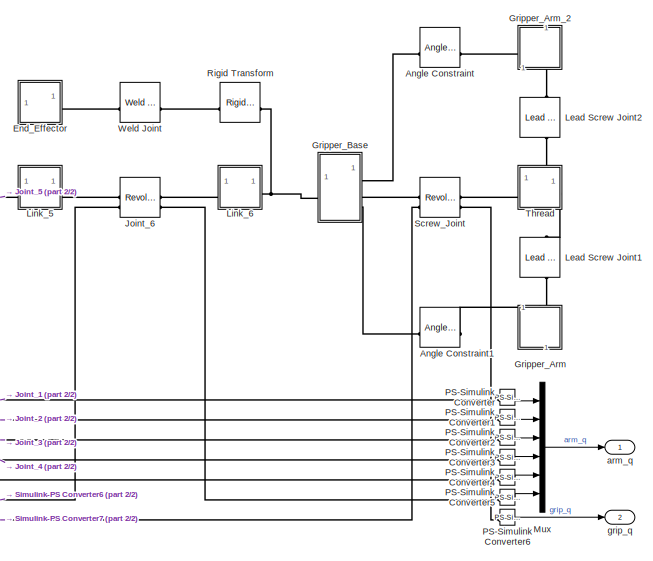
[diagram: Position Actuated Robot Environment/Position Actuated Manipulator - part 1/2, right side, full height]
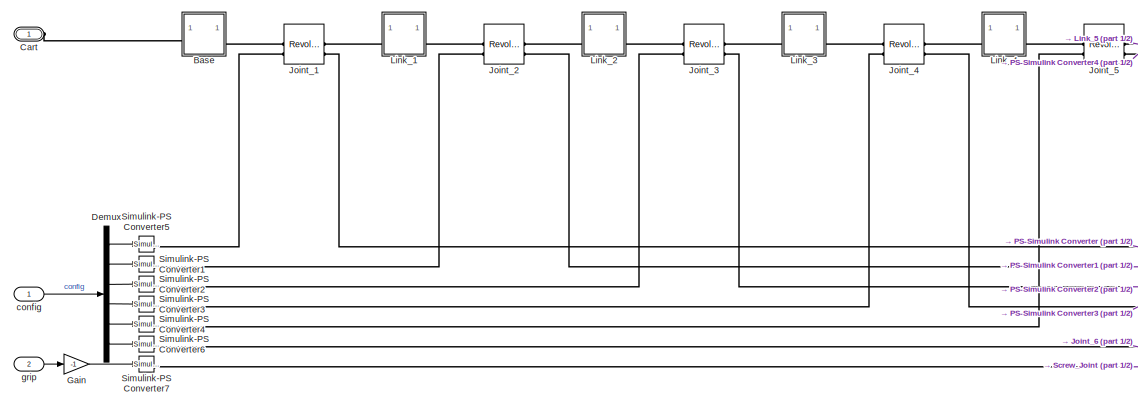
[diagram: Position Actuated Robot Environment/Position Actuated Manipulator - part 2/2, middle left region]
BLOCK [SubSystem] Position Actuated Robot Environment/Position Actuated Manipulator
BLOCK [Reference] Position Actuated Robot Environment/Position Actuated Manipulator/Angle Constraint  REF=sm_lib/Constraints/Angle
Constraint
  SourceBlock = sm_lib/Constraints/Angle\nConstraint
  SourceType = Angle\nConstraint
BLOCK [Reference] Position Actuated Robot Environment/Position Actuated Manipulator/Angle Constraint1  REF=sm_lib/Constraints/Angle
Constraint
  SourceBlock = sm_lib/Constraints/Angle\nConstraint
  SourceType = Angle\nConstraint
BLOCK [SubSystem] Position Actuated Robot Environment/Position Actuated Manipulator/Base
BLOCK [PMIOPort] Position Actuated Robot Environment/Position Actuated Manipulator/Base/F
  Side = Left
BLOCK [PMIOPort] Position Actuated Robot Environment/Position Actuated Manipulator/Base/F1
  Port = 2
  Side = Right
BLOCK [Reference] Position Actuated Robot Environment/Position Actuated Manipulator/Base/Inertia  REF=sm_lib/Body Elements/Inertia
  SourceBlock = sm_lib/Body Elements/Inertia
  SourceType = Inertia
BLOCK [Reference] Position Actuated Robot Environment/Position Actuated Manipulator/Base/InertiaOriginTransform  REF=sm_lib/Frames and
Transforms/Rigid
Transform
  SourceBlock = sm_lib/Frames and\nTransforms/Rigid\nTransform
  SourceType = Rigid\nTransform
BLOCK [Reference] Position Actuated Robot Environment/Position Actuated Manipulator/Base/ReferenceFrame  REF=sm_lib/Frames and
Transforms/Reference
Frame
  SourceBlock = sm_lib/Frames and\nTransforms/Reference\nFrame
  SourceType = Reference\nFrame
BLOCK [Reference] Position Actuated Robot Environment/Position Actuated Manipulator/Base/Visual  REF=sm_lib/Body Elements/File Solid
  SourceBlock = sm_lib/Body Elements/File Solid
  SourceType = File Solid
BLOCK [Reference] Position Actuated Robot Environment/Position Actuated Manipulator/Base/Visual1  REF=sm_lib/Body Elements/File Solid
  SourceBlock = sm_lib/Body Elements/File Solid
  SourceType = File Solid
BLOCK [Reference] Position Actuated Robot Environment/Position Actuated Manipulator/Base/Visual2  REF=sm_lib/Body Elements/File Solid
  SourceBlock = sm_lib/Body Elements/File Solid
  SourceType = File Solid
BLOCK [Reference] Position Actuated Robot Environment/Position Actuated Manipulator/Base/Visual3  REF=sm_lib/Body Elements/File Solid
  SourceBlock = sm_lib/Body Elements/File Solid
  SourceType = File Solid
BLOCK [Reference] Position Actuated Robot Environment/Position Actuated Manipulator/Base/VisualOrigin1Transform  REF=sm_lib/Frames and
Transforms/Rigid
Transform
  SourceBlock = sm_lib/Frames and\nTransforms/Rigid\nTransform
  SourceType = Rigid\nTransform
BLOCK [Reference] Position Actuated Robot Environment/Position Actuated Manipulator/Base/VisualOrigin2Transform  REF=sm_lib/Frames and
Transforms/Rigid
Transform
  SourceBlock = sm_lib/Frames and\nTransforms/Rigid\nTransform
  SourceType = Rigid\nTransform
BLOCK [Reference] Position Actuated Robot Environment/Position Actuated Manipulator/Base/VisualOrigin3Transform  REF=sm_lib/Frames and
Transforms/Rigid
Transform
  SourceBlock = sm_lib/Frames and\nTransforms/Rigid\nTransform
  SourceType = Rigid\nTransform
BLOCK [Reference] Position Actuated Robot Environment/Position Actuated Manipulator/Base/VisualOriginTransform  REF=sm_lib/Frames and
Transforms/Rigid
Transform
  SourceBlock = sm_lib/Frames and\nTransforms/Rigid\nTransform
  SourceType = Rigid\nTransform
BLOCK [Reference] Position Actuated Robot Environment/Position Actuated Manipulator/Base/x1_AxisTransform  REF=sm_lib/Frames and
Transforms/Rigid
Transform
  SourceBlock = sm_lib/Frames and\nTransforms/Rigid\nTransform
  SourceType = Rigid\nTransform
BLOCK [Reference] Position Actuated Robot Environment/Position Actuated Manipulator/Base/x1_OriginTransform  REF=sm_lib/Frames and
Transforms/Rigid
Transform
  SourceBlock = sm_lib/Frames and\nTransforms/Rigid\nTransform
  SourceType = Rigid\nTransform
BLOCK [PMIOPort] Position Actuated Robot Environment/Position Actuated Manipulator/Cart
  Side = Left
BLOCK [Demux] Position Actuated Robot Environment/Position Actuated Manipulator/Demux
  Outputs = 6
BLOCK [SubSystem] Position Actuated Robot Environment/Position Actuated Manipulator/End_Effector
BLOCK [PMIOPort] Position Actuated Robot Environment/Position Actuated Manipulator/End_Effector/F
  Side = Right
BLOCK [Reference] Position Actuated Robot Environment/Position Actuated Manipulator/End_Effector/Inertia  REF=sm_lib/Body Elements/Inertia
  SourceBlock = sm_lib/Body Elements/Inertia
  SourceType = Inertia
BLOCK [Reference] Position Actuated Robot Environment/Position Actuated Manipulator/End_Effector/Reference Frame  REF=sm_lib/Frames and
Transforms/Reference
Frame
  SourceBlock = sm_lib/Frames and\nTransforms/Reference\nFrame
  SourceType = Reference\nFrame
BLOCK [Gain] Position Actuated Robot Environment/Position Actuated Manipulator/Gain
  Gain = -1
BLOCK [SubSystem] Position Actuated Robot Environment/Position Actuated Manipulator/Gripper_Arm
  PortSchema = {"entries":[{"content":{"sides":[{"content":{"connectorIds":["LConn1"]},"type":"ConnectorPlacement.EquallySpacedRectSide","uuid":"ec6729f6-c31a-496a-98aa-6ee40a97460c"},{"content":{"side":"RIGHT"},"type":"ConnectorPlacement.EquallySpacedRectSide","uuid":"9384f39b-0ef4-48e8-9ee5-cba50e7bf406"},{"content":{"connectorIds":["LConn2"],"side":"TOP"},"type":"ConnectorPlacement.EquallySpacedRectSide","uui...<+227ch>  <repeated x4 — deduplicated; at blocks: Gripper_Arm, Gripper_Arm_2>
BLOCK [PMIOPort] Position Actuated Robot Environment/Position Actuated Manipulator/Gripper_Arm/F
  Side = Left
BLOCK [PMIOPort] Position Actuated Robot Environment/Position Actuated Manipulator/Gripper_Arm/F1
  NameLocation = top
  Port = 2
  Side = Left
BLOCK [Reference] Position Actuated Robot Environment/Position Actuated Manipulator/Gripper_Arm/Inertia  REF=sm_lib/Body Elements/Inertia
  SourceBlock = sm_lib/Body Elements/Inertia
  SourceType = Inertia
BLOCK [Reference] Position Actuated Robot Environment/Position Actuated Manipulator/Gripper_Arm/InertiaOriginTransform  REF=sm_lib/Frames and
Transforms/Rigid
Transform
  SourceBlock = sm_lib/Frames and\nTransforms/Rigid\nTransform
  SourceType = Rigid\nTransform
BLOCK [Reference] Position Actuated Robot Environment/Position Actuated Manipulator/Gripper_Arm/ReferenceFrame  REF=sm_lib/Frames and
Transforms/Reference
Frame
  SourceBlock = sm_lib/Frames and\nTransforms/Reference\nFrame
  SourceType = Reference\nFrame
BLOCK [Reference] Position Actuated Robot Environment/Position Actuated Manipulator/Gripper_Arm/Rigid Transform  REF=sm_lib/Frames and
Transforms/Rigid
Transform
  SourceBlock = sm_lib/Frames and\nTransforms/Rigid\nTransform
  SourceType = Rigid\nTransform
BLOCK [Reference] Position Actuated Robot Environment/Position Actuated Manipulator/Gripper_Arm/Visual  REF=sm_lib/Body Elements/File Solid
  SourceBlock = sm_lib/Body Elements/File Solid
  SourceType = File Solid
BLOCK [Reference] Position Actuated Robot Environment/Position Actuated Manipulator/Gripper_Arm/VisualOriginTransform  REF=sm_lib/Frames and
Transforms/Rigid
Transform
  SourceBlock = sm_lib/Frames and\nTransforms/Rigid\nTransform
  SourceType = Rigid\nTransform
BLOCK [Reference] Position Actuated Robot Environment/Position Actuated Manipulator/Gripper_Arm/x8_AxisInvTransform  REF=sm_lib/Frames and
Transforms/Rigid
Transform
  SourceBlock = sm_lib/Frames and\nTransforms/Rigid\nTransform
  SourceType = Rigid\nTransform
BLOCK [SubSystem] Position Actuated Robot Environment/Position Actuated Manipulator/Gripper_Arm_2
  NameLocation = top
BLOCK [PMIOPort] Position Actuated Robot Environment/Position Actuated Manipulator/Gripper_Arm_2/F
  Side = Left
BLOCK [PMIOPort] Position Actuated Robot Environment/Position Actuated Manipulator/Gripper_Arm_2/F1
  NameLocation = top
  Port = 2
  Side = Left
BLOCK [Reference] Position Actuated Robot Environment/Position Actuated Manipulator/Gripper_Arm_2/Inertia  REF=sm_lib/Body Elements/Inertia
  SourceBlock = sm_lib/Body Elements/Inertia
  SourceType = Inertia
BLOCK [Reference] Position Actuated Robot Environment/Position Actuated Manipulator/Gripper_Arm_2/InertiaOriginTransform  REF=sm_lib/Frames and
Transforms/Rigid
Transform
  SourceBlock = sm_lib/Frames and\nTransforms/Rigid\nTransform
  SourceType = Rigid\nTransform
BLOCK [Reference] Position Actuated Robot Environment/Position Actuated Manipulator/Gripper_Arm_2/ReferenceFrame  REF=sm_lib/Frames and
Transforms/Reference
Frame
  SourceBlock = sm_lib/Frames and\nTransforms/Reference\nFrame
  SourceType = Reference\nFrame
BLOCK [Reference] Position Actuated Robot Environment/Position Actuated Manipulator/Gripper_Arm_2/Rigid Transform  REF=sm_lib/Frames and
Transforms/Rigid
Transform
  SourceBlock = sm_lib/Frames and\nTransforms/Rigid\nTransform
  SourceType = Rigid\nTransform
BLOCK [Reference] Position Actuated Robot Environment/Position Actuated Manipulator/Gripper_Arm_2/Visual  REF=sm_lib/Body Elements/File Solid
  SourceBlock = sm_lib/Body Elements/File Solid
  SourceType = File Solid
BLOCK [Reference] Position Actuated Robot Environment/Position Actuated Manipulator/Gripper_Arm_2/VisualOriginTransform  REF=sm_lib/Frames and
Transforms/Rigid
Transform
  SourceBlock = sm_lib/Frames and\nTransforms/Rigid\nTransform
  SourceType = Rigid\nTransform
BLOCK [Reference] Position Actuated Robot Environment/Position Actuated Manipulator/Gripper_Arm_2/x9_AxisInvTransform  REF=sm_lib/Frames and
Transforms/Rigid
Transform
  SourceBlock = sm_lib/Frames and\nTransforms/Rigid\nTransform
  SourceType = Rigid\nTransform
BLOCK [SubSystem] Position Actuated Robot Environment/Position Actuated Manipulator/Gripper_Base
BLOCK [PMIOPort] Position Actuated Robot Environment/Position Actuated Manipulator/Gripper_Base/F
  Side = Left
BLOCK [PMIOPort] Position Actuated Robot Environment/Position Actuated Manipulator/Gripper_Base/F1
  Port = 3
  Side = Right
BLOCK [PMIOPort] Position Actuated Robot Environment/Position Actuated Manipulator/Gripper_Base/F2
  NameLocation = top
  Port = 2
  Side = Right
BLOCK [PMIOPort] Position Actuated Robot Environment/Position Actuated Manipulator/Gripper_Base/F3
  NameLocation = top
  Port = 4
  Side = Right
BLOCK [Reference] Position Actuated Robot Environment/Position Actuated Manipulator/Gripper_Base/Inertia  REF=sm_lib/Body Elements/Inertia
  SourceBlock = sm_lib/Body Elements/Inertia
  SourceType = Inertia
BLOCK [Reference] Position Actuated Robot Environment/Position Actuated Manipulator/Gripper_Base/InertiaOriginTransform  REF=sm_lib/Frames and
Transforms/Rigid
Transform
  SourceBlock = sm_lib/Frames and\nTransforms/Rigid\nTransform
  SourceType = Rigid\nTransform
BLOCK [Reference] Position Actuated Robot Environment/Position Actuated Manipulator/Gripper_Base/ReferenceFrame  REF=sm_lib/Frames and
Transforms/Reference
Frame
  SourceBlock = sm_lib/Frames and\nTransforms/Reference\nFrame
  SourceType = Reference\nFrame
BLOCK [Reference] Position Actuated Robot Environment/Position Actuated Manipulator/Gripper_Base/Rigid Transform  REF=sm_lib/Frames and
Transforms/Rigid
Transform
  SourceBlock = sm_lib/Frames and\nTransforms/Rigid\nTransform
  SourceType = Rigid\nTransform
BLOCK [Reference] Position Actuated Robot Environment/Position Actuated Manipulator/Gripper_Base/Visual  REF=sm_lib/Body Elements/File Solid
  SourceBlock = sm_lib/Body Elements/File Solid
  SourceType = File Solid
BLOCK [Reference] Position Actuated Robot Environment/Position Actuated Manipulator/Gripper_Base/VisualOriginTransform  REF=sm_lib/Frames and
Transforms/Rigid
Transform
  SourceBlock = sm_lib/Frames and\nTransforms/Rigid\nTransform
  SourceType = Rigid\nTransform
BLOCK [Reference] Position Actuated Robot Environment/Position Actuated Manipulator/Gripper_Base/x12_AxisInvTransform  REF=sm_lib/Frames and
Transforms/Rigid
Transform
  SourceBlock = sm_lib/Frames and\nTransforms/Rigid\nTransform
  SourceType = Rigid\nTransform
BLOCK [Reference] Position Actuated Robot Environment/Position Actuated Manipulator/Gripper_Base/x7_AxisTransform  REF=sm_lib/Frames and
Transforms/Rigid
Transform
  SourceBlock = sm_lib/Frames and\nTransforms/Rigid\nTransform
  SourceType = Rigid\nTransform
BLOCK [Reference] Position Actuated Robot Environment/Position Actuated Manipulator/Gripper_Base/x7_OriginTransform  REF=sm_lib/Frames and
Transforms/Rigid
Transform
  SourceBlock = sm_lib/Frames and\nTransforms/Rigid\nTransform
  SourceType = Rigid\nTransform
BLOCK [Reference] Position Actuated Robot Environment/Position Actuated Manipulator/Joint_1  REF=sm_lib/Joints/Revolute Joint
  SourceBlock = sm_lib/Joints/Revolute Joint
  SourceType = Revolute Joint
BLOCK [Reference] Position Actuated Robot Environment/Position Actuated Manipulator/Joint_2  REF=sm_lib/Joints/Revolute Joint
  SourceBlock = sm_lib/Joints/Revolute Joint
  SourceType = Revolute Joint
BLOCK [Reference] Position Actuated Robot Environment/Position Actuated Manipulator/Joint_3  REF=sm_lib/Joints/Revolute Joint
  SourceBlock = sm_lib/Joints/Revolute Joint
  SourceType = Revolute Joint
BLOCK [Reference] Position Actuated Robot Environment/Position Actuated Manipulator/Joint_4  REF=sm_lib/Joints/Revolute Joint
  SourceBlock = sm_lib/Joints/Revolute Joint
  SourceType = Revolute Joint
BLOCK [Reference] Position Actuated Robot Environment/Position Actuated Manipulator/Joint_5  REF=sm_lib/Joints/Revolute Joint
  SourceBlock = sm_lib/Joints/Revolute Joint
  SourceType = Revolute Joint
BLOCK [Reference] Position Actuated Robot Environment/Position Actuated Manipulator/Joint_6  REF=sm_lib/Joints/Revolute Joint
  SourceBlock = sm_lib/Joints/Revolute Joint
  SourceType = Revolute Joint
BLOCK [Reference] Position Actuated Robot Environment/Position Actuated Manipulator/Lead Screw Joint1  REF=sm_lib/Joints/Lead Screw
Joint
  NameLocation = left
  SourceBlock = sm_lib/Joints/Lead Screw\nJoint
  SourceType = Lead Screw\nJoint
BLOCK [Reference] Position Actuated Robot Environment/Position Actuated Manipulator/Lead Screw Joint2  REF=sm_lib/Joints/Lead Screw
Joint
  NameLocation = right
  SourceBlock = sm_lib/Joints/Lead Screw\nJoint
  SourceType = Lead Screw\nJoint
BLOCK [SubSystem] Position Actuated Robot Environment/Position Actuated Manipulator/Link_1
BLOCK [PMIOPort] Position Actuated Robot Environment/Position Actuated Manipulator/Link_1/F
  Side = Left
BLOCK [PMIOPort] Position Actuated Robot Environment/Position Actuated Manipulator/Link_1/F1
  Port = 2
  Side = Right
BLOCK [Reference] Position Actuated Robot Environment/Position Actuated Manipulator/Link_1/Inertia  REF=sm_lib/Body Elements/Inertia
  SourceBlock = sm_lib/Body Elements/Inertia
  SourceType = Inertia
BLOCK [Reference] Position Actuated Robot Environment/Position Actuated Manipulator/Link_1/InertiaOriginTransform  REF=sm_lib/Frames and
Transforms/Rigid
Transform
  SourceBlock = sm_lib/Frames and\nTransforms/Rigid\nTransform
  SourceType = Rigid\nTransform
BLOCK [Reference] Position Actuated Robot Environment/Position Actuated Manipulator/Link_1/ReferenceFrame  REF=sm_lib/Frames and
Transforms/Reference
Frame
  SourceBlock = sm_lib/Frames and\nTransforms/Reference\nFrame
  SourceType = Reference\nFrame
BLOCK [Reference] Position Actuated Robot Environment/Position Actuated Manipulator/Link_1/Visual  REF=sm_lib/Body Elements/File Solid
  SourceBlock = sm_lib/Body Elements/File Solid
  SourceType = File Solid
BLOCK [Reference] Position Actuated Robot Environment/Position Actuated Manipulator/Link_1/Visual1  REF=sm_lib/Body Elements/File Solid
  SourceBlock = sm_lib/Body Elements/File Solid
  SourceType = File Solid
BLOCK [Reference] Position Actuated Robot Environment/Position Actuated Manipulator/Link_1/VisualOrigin1Transform  REF=sm_lib/Frames and
Transforms/Rigid
Transform
  SourceBlock = sm_lib/Frames and\nTransforms/Rigid\nTransform
  SourceType = Rigid\nTransform
BLOCK [Reference] Position Actuated Robot Environment/Position Actuated Manipulator/Link_1/VisualOriginTransform  REF=sm_lib/Frames and
Transforms/Rigid
Transform
  SourceBlock = sm_lib/Frames and\nTransforms/Rigid\nTransform
  SourceType = Rigid\nTransform
BLOCK [Reference] Position Actuated Robot Environment/Position Actuated Manipulator/Link_1/x1_AxisInvTransform  REF=sm_lib/Frames and
Transforms/Rigid
Transform
  SourceBlock = sm_lib/Frames and\nTransforms/Rigid\nTransform
  SourceType = Rigid\nTransform
BLOCK [Reference] Position Actuated Robot Environment/Position Actuated Manipulator/Link_1/x2_AxisTransform  REF=sm_lib/Frames and
Transforms/Rigid
Transform
  SourceBlock = sm_lib/Frames and\nTransforms/Rigid\nTransform
  SourceType = Rigid\nTransform
BLOCK [Reference] Position Actuated Robot Environment/Position Actuated Manipulator/Link_1/x2_OriginTransform  REF=sm_lib/Frames and
Transforms/Rigid
Transform
  SourceBlock = sm_lib/Frames and\nTransforms/Rigid\nTransform
  SourceType = Rigid\nTransform
BLOCK [SubSystem] Position Actuated Robot Environment/Position Actuated Manipulator/Link_2
BLOCK [PMIOPort] Position Actuated Robot Environment/Position Actuated Manipulator/Link_2/F
  Side = Left
BLOCK [PMIOPort] Position Actuated Robot Environment/Position Actuated Manipulator/Link_2/F1
  Port = 2
  Side = Right
BLOCK [Reference] Position Actuated Robot Environment/Position Actuated Manipulator/Link_2/Inertia  REF=sm_lib/Body Elements/Inertia
  SourceBlock = sm_lib/Body Elements/Inertia
  SourceType = Inertia
BLOCK [Reference] Position Actuated Robot Environment/Position Actuated Manipulator/Link_2/InertiaOriginTransform  REF=sm_lib/Frames and
Transforms/Rigid
Transform
  SourceBlock = sm_lib/Frames and\nTransforms/Rigid\nTransform
  SourceType = Rigid\nTransform
BLOCK [Reference] Position Actuated Robot Environment/Position Actuated Manipulator/Link_2/ReferenceFrame  REF=sm_lib/Frames and
Transforms/Reference
Frame
  SourceBlock = sm_lib/Frames and\nTransforms/Reference\nFrame
  SourceType = Reference\nFrame
BLOCK [Reference] Position Actuated Robot Environment/Position Actuated Manipulator/Link_2/Visual  REF=sm_lib/Body Elements/File Solid
  SourceBlock = sm_lib/Body Elements/File Solid
  SourceType = File Solid
BLOCK [Reference] Position Actuated Robot Environment/Position Actuated Manipulator/Link_2/Visual1  REF=sm_lib/Body Elements/File Solid
  SourceBlock = sm_lib/Body Elements/File Solid
  SourceType = File Solid
BLOCK [Reference] Position Actuated Robot Environment/Position Actuated Manipulator/Link_2/Visual2  REF=sm_lib/Body Elements/File Solid
  SourceBlock = sm_lib/Body Elements/File Solid
  SourceType = File Solid
BLOCK [Reference] Position Actuated Robot Environment/Position Actuated Manipulator/Link_2/VisualOrigin1Transform  REF=sm_lib/Frames and
Transforms/Rigid
Transform
  SourceBlock = sm_lib/Frames and\nTransforms/Rigid\nTransform
  SourceType = Rigid\nTransform
BLOCK [Reference] Position Actuated Robot Environment/Position Actuated Manipulator/Link_2/VisualOrigin2Transform  REF=sm_lib/Frames and
Transforms/Rigid
Transform
  SourceBlock = sm_lib/Frames and\nTransforms/Rigid\nTransform
  SourceType = Rigid\nTransform
BLOCK [Reference] Position Actuated Robot Environment/Position Actuated Manipulator/Link_2/VisualOriginTransform  REF=sm_lib/Frames and
Transforms/Rigid
Transform
  SourceBlock = sm_lib/Frames and\nTransforms/Rigid\nTransform
  SourceType = Rigid\nTransform
BLOCK [Reference] Position Actuated Robot Environment/Position Actuated Manipulator/Link_2/x2_AxisInvTransform  REF=sm_lib/Frames and
Transforms/Rigid
Transform
  SourceBlock = sm_lib/Frames and\nTransforms/Rigid\nTransform
  SourceType = Rigid\nTransform
BLOCK [Reference] Position Actuated Robot Environment/Position Actuated Manipulator/Link_2/x3_AxisTransform  REF=sm_lib/Frames and
Transforms/Rigid
Transform
  SourceBlock = sm_lib/Frames and\nTransforms/Rigid\nTransform
  SourceType = Rigid\nTransform
BLOCK [Reference] Position Actuated Robot Environment/Position Actuated Manipulator/Link_2/x3_OriginTransform  REF=sm_lib/Frames and
Transforms/Rigid
Transform
  SourceBlock = sm_lib/Frames and\nTransforms/Rigid\nTransform
  SourceType = Rigid\nTransform
BLOCK [SubSystem] Position Actuated Robot Environment/Position Actuated Manipulator/Link_3
BLOCK [PMIOPort] Position Actuated Robot Environment/Position Actuated Manipulator/Link_3/F
  Side = Left
BLOCK [PMIOPort] Position Actuated Robot Environment/Position Actuated Manipulator/Link_3/F1
  Port = 2
  Side = Right
BLOCK [Reference] Position Actuated Robot Environment/Position Actuated Manipulator/Link_3/Inertia  REF=sm_lib/Body Elements/Inertia
  SourceBlock = sm_lib/Body Elements/Inertia
  SourceType = Inertia
BLOCK [Reference] Position Actuated Robot Environment/Position Actuated Manipulator/Link_3/InertiaOriginTransform  REF=sm_lib/Frames and
Transforms/Rigid
Transform
  SourceBlock = sm_lib/Frames and\nTransforms/Rigid\nTransform
  SourceType = Rigid\nTransform
BLOCK [Reference] Position Actuated Robot Environment/Position Actuated Manipulator/Link_3/ReferenceFrame  REF=sm_lib/Frames and
Transforms/Reference
Frame
  SourceBlock = sm_lib/Frames and\nTransforms/Reference\nFrame
  SourceType = Reference\nFrame
BLOCK [Reference] Position Actuated Robot Environment/Position Actuated Manipulator/Link_3/Visual  REF=sm_lib/Body Elements/File Solid
  SourceBlock = sm_lib/Body Elements/File Solid
  SourceType = File Solid
BLOCK [Reference] Position Actuated Robot Environment/Position Actuated Manipulator/Link_3/Visual1  REF=sm_lib/Body Elements/File Solid
  SourceBlock = sm_lib/Body Elements/File Solid
  SourceType = File Solid
BLOCK [Reference] Position Actuated Robot Environment/Position Actuated Manipulator/Link_3/VisualOrigin1Transform  REF=sm_lib/Frames and
Transforms/Rigid
Transform
  SourceBlock = sm_lib/Frames and\nTransforms/Rigid\nTransform
  SourceType = Rigid\nTransform
BLOCK [Reference] Position Actuated Robot Environment/Position Actuated Manipulator/Link_3/VisualOriginTransform  REF=sm_lib/Frames and
Transforms/Rigid
Transform
  SourceBlock = sm_lib/Frames and\nTransforms/Rigid\nTransform
  SourceType = Rigid\nTransform
BLOCK [Reference] Position Actuated Robot Environment/Position Actuated Manipulator/Link_3/x3_AxisInvTransform  REF=sm_lib/Frames and
Transforms/Rigid
Transform
  SourceBlock = sm_lib/Frames and\nTransforms/Rigid\nTransform
  SourceType = Rigid\nTransform
BLOCK [Reference] Position Actuated Robot Environment/Position Actuated Manipulator/Link_3/x4_AxisTransform  REF=sm_lib/Frames and
Transforms/Rigid
Transform
  SourceBlock = sm_lib/Frames and\nTransforms/Rigid\nTransform
  SourceType = Rigid\nTransform
BLOCK [Reference] Position Actuated Robot Environment/Position Actuated Manipulator/Link_3/x4_OriginTransform  REF=sm_lib/Frames and
Transforms/Rigid
Transform
  SourceBlock = sm_lib/Frames and\nTransforms/Rigid\nTransform
  SourceType = Rigid\nTransform
BLOCK [SubSystem] Position Actuated Robot Environment/Position Actuated Manipulator/Link_4
BLOCK [PMIOPort] Position Actuated Robot Environment/Position Actuated Manipulator/Link_4/F
  Side = Left
BLOCK [PMIOPort] Position Actuated Robot Environment/Position Actuated Manipulator/Link_4/F1
  Port = 2
  Side = Right
BLOCK [Reference] Position Actuated Robot Environment/Position Actuated Manipulator/Link_4/Inertia  REF=sm_lib/Body Elements/Inertia
  SourceBlock = sm_lib/Body Elements/Inertia
  SourceType = Inertia
BLOCK [Reference] Position Actuated Robot Environment/Position Actuated Manipulator/Link_4/InertiaOriginTransform  REF=sm_lib/Frames and
Transforms/Rigid
Transform
  SourceBlock = sm_lib/Frames and\nTransforms/Rigid\nTransform
  SourceType = Rigid\nTransform
BLOCK [Reference] Position Actuated Robot Environment/Position Actuated Manipulator/Link_4/ReferenceFrame  REF=sm_lib/Frames and
Transforms/Reference
Frame
  SourceBlock = sm_lib/Frames and\nTransforms/Reference\nFrame
  SourceType = Reference\nFrame
BLOCK [Reference] Position Actuated Robot Environment/Position Actuated Manipulator/Link_4/Visual  REF=sm_lib/Body Elements/File Solid
  SourceBlock = sm_lib/Body Elements/File Solid
  SourceType = File Solid
BLOCK [Reference] Position Actuated Robot Environment/Position Actuated Manipulator/Link_4/Visual1  REF=sm_lib/Body Elements/File Solid
  SourceBlock = sm_lib/Body Elements/File Solid
  SourceType = File Solid
BLOCK [Reference] Position Actuated Robot Environment/Position Actuated Manipulator/Link_4/Visual2  REF=sm_lib/Body Elements/File Solid
  SourceBlock = sm_lib/Body Elements/File Solid
  SourceType = File Solid
BLOCK [Reference] Position Actuated Robot Environment/Position Actuated Manipulator/Link_4/VisualOrigin1Transform  REF=sm_lib/Frames and
Transforms/Rigid
Transform
  SourceBlock = sm_lib/Frames and\nTransforms/Rigid\nTransform
  SourceType = Rigid\nTransform
BLOCK [Reference] Position Actuated Robot Environment/Position Actuated Manipulator/Link_4/VisualOrigin2Transform  REF=sm_lib/Frames and
Transforms/Rigid
Transform
  SourceBlock = sm_lib/Frames and\nTransforms/Rigid\nTransform
  SourceType = Rigid\nTransform
BLOCK [Reference] Position Actuated Robot Environment/Position Actuated Manipulator/Link_4/VisualOriginTransform  REF=sm_lib/Frames and
Transforms/Rigid
Transform
  SourceBlock = sm_lib/Frames and\nTransforms/Rigid\nTransform
  SourceType = Rigid\nTransform
BLOCK [Reference] Position Actuated Robot Environment/Position Actuated Manipulator/Link_4/x4_AxisInvTransform  REF=sm_lib/Frames and
Transforms/Rigid
Transform
  SourceBlock = sm_lib/Frames and\nTransforms/Rigid\nTransform
  SourceType = Rigid\nTransform
BLOCK [Reference] Position Actuated Robot Environment/Position Actuated Manipulator/Link_4/x5_AxisTransform  REF=sm_lib/Frames and
Transforms/Rigid
Transform
  SourceBlock = sm_lib/Frames and\nTransforms/Rigid\nTransform
  SourceType = Rigid\nTransform
BLOCK [Reference] Position Actuated Robot Environment/Position Actuated Manipulator/Link_4/x5_OriginTransform  REF=sm_lib/Frames and
Transforms/Rigid
Transform
  SourceBlock = sm_lib/Frames and\nTransforms/Rigid\nTransform
  SourceType = Rigid\nTransform
BLOCK [SubSystem] Position Actuated Robot Environment/Position Actuated Manipulator/Link_5
BLOCK [PMIOPort] Position Actuated Robot Environment/Position Actuated Manipulator/Link_5/F
  Side = Left
BLOCK [PMIOPort] Position Actuated Robot Environment/Position Actuated Manipulator/Link_5/F1
  Port = 2
  Side = Right
BLOCK [Reference] Position Actuated Robot Environment/Position Actuated Manipulator/Link_5/Inertia  REF=sm_lib/Body Elements/Inertia
  SourceBlock = sm_lib/Body Elements/Inertia
  SourceType = Inertia
BLOCK [Reference] Position Actuated Robot Environment/Position Actuated Manipulator/Link_5/InertiaOriginTransform  REF=sm_lib/Frames and
Transforms/Rigid
Transform
  SourceBlock = sm_lib/Frames and\nTransforms/Rigid\nTransform
  SourceType = Rigid\nTransform
BLOCK [Reference] Position Actuated Robot Environment/Position Actuated Manipulator/Link_5/ReferenceFrame  REF=sm_lib/Frames and
Transforms/Reference
Frame
  SourceBlock = sm_lib/Frames and\nTransforms/Reference\nFrame
  SourceType = Reference\nFrame
BLOCK [Reference] Position Actuated Robot Environment/Position Actuated Manipulator/Link_5/Visual  REF=sm_lib/Body Elements/File Solid
  SourceBlock = sm_lib/Body Elements/File Solid
  SourceType = File Solid
BLOCK [Reference] Position Actuated Robot Environment/Position Actuated Manipulator/Link_5/Visual1  REF=sm_lib/Body Elements/File Solid
  SourceBlock = sm_lib/Body Elements/File Solid
  SourceType = File Solid
BLOCK [Reference] Position Actuated Robot Environment/Position Actuated Manipulator/Link_5/VisualOrigin1Transform  REF=sm_lib/Frames and
Transforms/Rigid
Transform
  SourceBlock = sm_lib/Frames and\nTransforms/Rigid\nTransform
  SourceType = Rigid\nTransform
BLOCK [Reference] Position Actuated Robot Environment/Position Actuated Manipulator/Link_5/VisualOriginTransform  REF=sm_lib/Frames and
Transforms/Rigid
Transform
  SourceBlock = sm_lib/Frames and\nTransforms/Rigid\nTransform
  SourceType = Rigid\nTransform
BLOCK [Reference] Position Actuated Robot Environment/Position Actuated Manipulator/Link_5/x5_AxisInvTransform  REF=sm_lib/Frames and
Transforms/Rigid
Transform
  SourceBlock = sm_lib/Frames and\nTransforms/Rigid\nTransform
  SourceType = Rigid\nTransform
BLOCK [Reference] Position Actuated Robot Environment/Position Actuated Manipulator/Link_5/x6_AxisTransform  REF=sm_lib/Frames and
Transforms/Rigid
Transform
  SourceBlock = sm_lib/Frames and\nTransforms/Rigid\nTransform
  SourceType = Rigid\nTransform
BLOCK [Reference] Position Actuated Robot Environment/Position Actuated Manipulator/Link_5/x6_OriginTransform  REF=sm_lib/Frames and
Transforms/Rigid
Transform
  SourceBlock = sm_lib/Frames and\nTransforms/Rigid\nTransform
  SourceType = Rigid\nTransform
BLOCK [SubSystem] Position Actuated Robot Environment/Position Actuated Manipulator/Link_6
BLOCK [PMIOPort] Position Actuated Robot Environment/Position Actuated Manipulator/Link_6/F
  Side = Left
BLOCK [PMIOPort] Position Actuated Robot Environment/Position Actuated Manipulator/Link_6/F1
  Port = 2
  Side = Right
BLOCK [Reference] Position Actuated Robot Environment/Position Actuated Manipulator/Link_6/Inertia  REF=sm_lib/Body Elements/Inertia
  SourceBlock = sm_lib/Body Elements/Inertia
  SourceType = Inertia
BLOCK [Reference] Position Actuated Robot Environment/Position Actuated Manipulator/Link_6/InertiaOriginTransform  REF=sm_lib/Frames and
Transforms/Rigid
Transform
  SourceBlock = sm_lib/Frames and\nTransforms/Rigid\nTransform
  SourceType = Rigid\nTransform
BLOCK [Reference] Position Actuated Robot Environment/Position Actuated Manipulator/Link_6/ReferenceFrame  REF=sm_lib/Frames and
Transforms/Reference
Frame
  SourceBlock = sm_lib/Frames and\nTransforms/Reference\nFrame
  SourceType = Reference\nFrame
BLOCK [Reference] Position Actuated Robot Environment/Position Actuated Manipulator/Link_6/Visual  REF=sm_lib/Body Elements/File Solid
  SourceBlock = sm_lib/Body Elements/File Solid
  SourceType = File Solid
BLOCK [Reference] Position Actuated Robot Environment/Position Actuated Manipulator/Link_6/Visual1  REF=sm_lib/Body Elements/File Solid
  SourceBlock = sm_lib/Body Elements/File Solid
  SourceType = File Solid
BLOCK [Reference] Position Actuated Robot Environment/Position Actuated Manipulator/Link_6/Visual2  REF=sm_lib/Body Elements/File Solid
  SourceBlock = sm_lib/Body Elements/File Solid
  SourceType = File Solid
BLOCK [Reference] Position Actuated Robot Environment/Position Actuated Manipulator/Link_6/Visual3  REF=sm_lib/Body Elements/File Solid
  SourceBlock = sm_lib/Body Elements/File Solid
  SourceType = File Solid
BLOCK [Reference] Position Actuated Robot Environment/Position Actuated Manipulator/Link_6/Visual4  REF=sm_lib/Body Elements/File Solid
  SourceBlock = sm_lib/Body Elements/File Solid
  SourceType = File Solid
BLOCK [Reference] Position Actuated Robot Environment/Position Actuated Manipulator/Link_6/Visual5  REF=sm_lib/Body Elements/File Solid
  SourceBlock = sm_lib/Body Elements/File Solid
  SourceType = File Solid
BLOCK [Reference] Position Actuated Robot Environment/Position Actuated Manipulator/Link_6/Visual6  REF=sm_lib/Body Elements/File Solid
  SourceBlock = sm_lib/Body Elements/File Solid
  SourceType = File Solid
BLOCK [Reference] Position Actuated Robot Environment/Position Actuated Manipulator/Link_6/Visual7  REF=sm_lib/Body Elements/File Solid
  SourceBlock = sm_lib/Body Elements/File Solid
  SourceType = File Solid
BLOCK [Reference] Position Actuated Robot Environment/Position Actuated Manipulator/Link_6/VisualOrigin1Transform  REF=sm_lib/Frames and
Transforms/Rigid
Transform
  SourceBlock = sm_lib/Frames and\nTransforms/Rigid\nTransform
  SourceType = Rigid\nTransform
BLOCK [Reference] Position Actuated Robot Environment/Position Actuated Manipulator/Link_6/VisualOrigin2Transform  REF=sm_lib/Frames and
Transforms/Rigid
Transform
  SourceBlock = sm_lib/Frames and\nTransforms/Rigid\nTransform
  SourceType = Rigid\nTransform
BLOCK [Reference] Position Actuated Robot Environment/Position Actuated Manipulator/Link_6/VisualOrigin3Transform  REF=sm_lib/Frames and
Transforms/Rigid
Transform
  SourceBlock = sm_lib/Frames and\nTransforms/Rigid\nTransform
  SourceType = Rigid\nTransform
BLOCK [Reference] Position Actuated Robot Environment/Position Actuated Manipulator/Link_6/VisualOrigin4Transform  REF=sm_lib/Frames and
Transforms/Rigid
Transform
  SourceBlock = sm_lib/Frames and\nTransforms/Rigid\nTransform
  SourceType = Rigid\nTransform
BLOCK [Reference] Position Actuated Robot Environment/Position Actuated Manipulator/Link_6/VisualOrigin5Transform  REF=sm_lib/Frames and
Transforms/Rigid
Transform
  SourceBlock = sm_lib/Frames and\nTransforms/Rigid\nTransform
  SourceType = Rigid\nTransform
BLOCK [Reference] Position Actuated Robot Environment/Position Actuated Manipulator/Link_6/VisualOrigin6Transform  REF=sm_lib/Frames and
Transforms/Rigid
Transform
  SourceBlock = sm_lib/Frames and\nTransforms/Rigid\nTransform
  SourceType = Rigid\nTransform
BLOCK [Reference] Position Actuated Robot Environment/Position Actuated Manipulator/Link_6/VisualOrigin7Transform  REF=sm_lib/Frames and
Transforms/Rigid
Transform
  SourceBlock = sm_lib/Frames and\nTransforms/Rigid\nTransform
  SourceType = Rigid\nTransform
BLOCK [Reference] Position Actuated Robot Environment/Position Actuated Manipulator/Link_6/VisualOriginTransform  REF=sm_lib/Frames and
Transforms/Rigid
Transform
  SourceBlock = sm_lib/Frames and\nTransforms/Rigid\nTransform
  SourceType = Rigid\nTransform
BLOCK [Reference] Position Actuated Robot Environment/Position Actuated Manipulator/Link_6/x12_AxisTransform  REF=sm_lib/Frames and
Transforms/Rigid
Transform
  SourceBlock = sm_lib/Frames and\nTransforms/Rigid\nTransform
  SourceType = Rigid\nTransform
BLOCK [Reference] Position Actuated Robot Environment/Position Actuated Manipulator/Link_6/x12_OriginTransform  REF=sm_lib/Frames and
Transforms/Rigid
Transform
  SourceBlock = sm_lib/Frames and\nTransforms/Rigid\nTransform
  SourceType = Rigid\nTransform
BLOCK [Reference] Position Actuated Robot Environment/Position Actuated Manipulator/Link_6/x6_AxisInvTransform  REF=sm_lib/Frames and
Transforms/Rigid
Transform
  SourceBlock = sm_lib/Frames and\nTransforms/Rigid\nTransform
  SourceType = Rigid\nTransform
BLOCK [Mux] Position Actuated Robot Environment/Position Actuated Manipulator/Mux
  DisplayOption = bar
  Inputs = 6
BLOCK [Reference] Position Actuated Robot Environment/Position Actuated Manipulator/PS-Simulink Converter  REF=nesl_utility/PS-Simulink
Converter
  SourceBlock = nesl_utility/PS-Simulink\nConverter
  SourceType = PS-Simulink\nConverter
BLOCK [Reference] Position Actuated Robot Environment/Position Actuated Manipulator/PS-Simulink Converter1  REF=nesl_utility/PS-Simulink
Converter
  SourceBlock = nesl_utility/PS-Simulink\nConverter
  SourceType = PS-Simulink\nConverter
BLOCK [Reference] Position Actuated Robot Environment/Position Actuated Manipulator/PS-Simulink Converter2  REF=nesl_utility/PS-Simulink
Converter
  SourceBlock = nesl_utility/PS-Simulink\nConverter
  SourceType = PS-Simulink\nConverter
BLOCK [Reference] Position Actuated Robot Environment/Position Actuated Manipulator/PS-Simulink Converter3  REF=nesl_utility/PS-Simulink
Converter
  SourceBlock = nesl_utility/PS-Simulink\nConverter
  SourceType = PS-Simulink\nConverter
BLOCK [Reference] Position Actuated Robot Environment/Position Actuated Manipulator/PS-Simulink Converter4  REF=nesl_utility/PS-Simulink
Converter
  SourceBlock = nesl_utility/PS-Simulink\nConverter
  SourceType = PS-Simulink\nConverter
BLOCK [Reference] Position Actuated Robot Environment/Position Actuated Manipulator/PS-Simulink Converter5  REF=nesl_utility/PS-Simulink
Converter
  SourceBlock = nesl_utility/PS-Simulink\nConverter
  SourceType = PS-Simulink\nConverter
BLOCK [Reference] Position Actuated Robot Environment/Position Actuated Manipulator/PS-Simulink Converter6  REF=nesl_utility/PS-Simulink
Converter
  SourceBlock = nesl_utility/PS-Simulink\nConverter
  SourceType = PS-Simulink\nConverter
BLOCK [Reference] Position Actuated Robot Environment/Position Actuated Manipulator/Rigid Transform  REF=sm_lib/Frames and
Transforms/Rigid
Transform
  NameLocation = top
  SourceBlock = sm_lib/Frames and\nTransforms/Rigid\nTransform
  SourceType = Rigid\nTransform
BLOCK [Reference] Position Actuated Robot Environment/Position Actuated Manipulator/Screw_Joint  REF=sm_lib/Joints/Revolute Joint
  SourceBlock = sm_lib/Joints/Revolute Joint
  SourceType = Revolute Joint
BLOCK [Reference] Position Actuated Robot Environment/Position Actuated Manipulator/Simulink-PS Converter1  REF=nesl_utility/Simulink-PS
Converter
  SourceBlock = nesl_utility/Simulink-PS\nConverter
  SourceType = Simulink-PS\nConverter
BLOCK [Reference] Position Actuated Robot Environment/Position Actuated Manipulator/Simulink-PS Converter2  REF=nesl_utility/Simulink-PS
Converter
  SourceBlock = nesl_utility/Simulink-PS\nConverter
  SourceType = Simulink-PS\nConverter
BLOCK [Reference] Position Actuated Robot Environment/Position Actuated Manipulator/Simulink-PS Converter3  REF=nesl_utility/Simulink-PS
Converter
  SourceBlock = nesl_utility/Simulink-PS\nConverter
  SourceType = Simulink-PS\nConverter
BLOCK [Reference] Position Actuated Robot Environment/Position Actuated Manipulator/Simulink-PS Converter4  REF=nesl_utility/Simulink-PS
Converter
  SourceBlock = nesl_utility/Simulink-PS\nConverter
  SourceType = Simulink-PS\nConverter
BLOCK [Reference] Position Actuated Robot Environment/Position Actuated Manipulator/Simulink-PS Converter5  REF=nesl_utility/Simulink-PS
Converter
  SourceBlock = nesl_utility/Simulink-PS\nConverter
  SourceType = Simulink-PS\nConverter
BLOCK [Reference] Position Actuated Robot Environment/Position Actuated Manipulator/Simulink-PS Converter6  REF=nesl_utility/Simulink-PS
Converter
  SourceBlock = nesl_utility/Simulink-PS\nConverter
  SourceType = Simulink-PS\nConverter
BLOCK [Reference] Position Actuated Robot Environment/Position Actuated Manipulator/Simulink-PS Converter7  REF=nesl_utility/Simulink-PS
Converter
  SourceBlock = nesl_utility/Simulink-PS\nConverter
  SourceType = Simulink-PS\nConverter
BLOCK [SubSystem] Position Actuated Robot Environment/Position Actuated Manipulator/Thread
  NameLocation = right
  PortSchema = {"entries":[{"content":{"sides":[{"content":{"connectorIds":["LConn1"]},"type":"ConnectorPlacement.EquallySpacedRectSide","uuid":"031806b6-048a-4529-890c-d6f4237d518c"},{"content":{"side":"RIGHT"},"type":"ConnectorPlacement.EquallySpacedRectSide","uuid":"7c6ec05c-a1a8-4049-a676-ef08521e7b31"},{"content":{"connectorIds":["LConn2"],"side":"TOP"},"type":"ConnectorPlacement.EquallySpacedRectSide","uui...<+379ch>
BLOCK [PMIOPort] Position Actuated Robot Environment/Position Actuated Manipulator/Thread/F
  Side = Left
BLOCK [PMIOPort] Position Actuated Robot Environment/Position Actuated Manipulator/Thread/F1
  Port = 3
  Side = Right
BLOCK [PMIOPort] Position Actuated Robot Environment/Position Actuated Manipulator/Thread/F2
  Port = 2
  Side = Left
BLOCK [Reference] Position Actuated Robot Environment/Position Actuated Manipulator/Thread/Inertia  REF=sm_lib/Body Elements/Inertia
  SourceBlock = sm_lib/Body Elements/Inertia
  SourceType = Inertia
BLOCK [Reference] Position Actuated Robot Environment/Position Actuated Manipulator/Thread/InertiaOriginTransform  REF=sm_lib/Frames and
Transforms/Rigid
Transform
  SourceBlock = sm_lib/Frames and\nTransforms/Rigid\nTransform
  SourceType = Rigid\nTransform
BLOCK [Reference] Position Actuated Robot Environment/Position Actuated Manipulator/Thread/ReferenceFrame  REF=sm_lib/Frames and
Transforms/Reference
Frame
  SourceBlock = sm_lib/Frames and\nTransforms/Reference\nFrame
  SourceType = Reference\nFrame
BLOCK [Reference] Position Actuated Robot Environment/Position Actuated Manipulator/Thread/Visual  REF=sm_lib/Body Elements/File Solid
  SourceBlock = sm_lib/Body Elements/File Solid
  SourceType = File Solid
BLOCK [Reference] Position Actuated Robot Environment/Position Actuated Manipulator/Thread/VisualOriginTransform  REF=sm_lib/Frames and
Transforms/Rigid
Transform
  SourceBlock = sm_lib/Frames and\nTransforms/Rigid\nTransform
  SourceType = Rigid\nTransform
BLOCK [Reference] Position Actuated Robot Environment/Position Actuated Manipulator/Thread/x7_AxisInvTransform  REF=sm_lib/Frames and
Transforms/Rigid
Transform
  SourceBlock = sm_lib/Frames and\nTransforms/Rigid\nTransform
  SourceType = Rigid\nTransform
BLOCK [Reference] Position Actuated Robot Environment/Position Actuated Manipulator/Thread/x8_AxisTransform  REF=sm_lib/Frames and
Transforms/Rigid
Transform
  SourceBlock = sm_lib/Frames and\nTransforms/Rigid\nTransform
  SourceType = Rigid\nTransform
BLOCK [Reference] Position Actuated Robot Environment/Position Actuated Manipulator/Thread/x8_OriginTransform  REF=sm_lib/Frames and
Transforms/Rigid
Transform
  SourceBlock = sm_lib/Frames and\nTransforms/Rigid\nTransform
  SourceType = Rigid\nTransform
BLOCK [Reference] Position Actuated Robot Environment/Position Actuated Manipulator/Thread/x9_AxisTransform  REF=sm_lib/Frames and
Transforms/Rigid
Transform
  SourceBlock = sm_lib/Frames and\nTransforms/Rigid\nTransform
  SourceType = Rigid\nTransform
BLOCK [Reference] Position Actuated Robot Environment/Position Actuated Manipulator/Thread/x9_OriginTransform  REF=sm_lib/Frames and
Transforms/Rigid
Transform
  SourceBlock = sm_lib/Frames and\nTransforms/Rigid\nTransform
  SourceType = Rigid\nTransform
BLOCK [Reference] Position Actuated Robot Environment/Position Actuated Manipulator/Weld Joint  REF=sm_lib/Joints/Weld Joint
  SourceBlock = sm_lib/Joints/Weld Joint
  SourceType = Weld Joint
BLOCK [Outport] Position Actuated Robot Environment/Position Actuated Manipulator/arm_q
BLOCK [Inport] Position Actuated Robot Environment/Position Actuated Manipulator/config
BLOCK [Inport] Position Actuated Robot Environment/Position Actuated Manipulator/grip
  Port = 2
BLOCK [Outport] Position Actuated Robot Environment/Position Actuated Manipulator/grip_q
  Port = 2
BLOCK [Reference] Position Actuated Robot Environment/Solver Configuration  REF=nesl_utility/Solver
Configuration
  NameLocation = left
  SourceBlock = nesl_utility/Solver\nConfiguration
  SourceType = Solver\nConfiguration
BLOCK [Reference] Position Actuated Robot Environment/World  REF=sm_lib/Frames and
Transforms/World Frame
  NameLocation = top
  SourceBlock = sm_lib/Frames and\nTransforms/World Frame
  SourceType = World Frame
BLOCK [Outport] Position Actuated Robot Environment/arm_q
BLOCK [Outport] Position Actuated Robot Environment/c_state
  Port = 3
BLOCK [Inport] Position Actuated Robot Environment/config
BLOCK [Inport] Position Actuated Robot Environment/grip
  Port = 2
BLOCK [Outport] Position Actuated Robot Environment/grip_q
  Port = 2
BLOCK [Inport] Position Actuated Robot Environment/w_L
  Port = 4
BLOCK [Inport] Position Actuated Robot Environment/w_R
  Port = 3
BLOCK [SubSystem] Supervisory Logic
  ErrorFcn = Stateflow.Translate.translate
  PermitHierarchicalResolution = ExplicitOnly
  PortSchema = {"entries":[{"content":{"sides":[{"content":{"connectorIds":["In2","In7","In4","In6","In8","In9","In3","In1","In5"]},"type":"ConnectorPlacement.EquallySpacedRectSide","uuid":"1b49e4dc-4524-494e-96ea-732cb30677b8"},{"content":{"connectorIds":["Out3","Out4","Out2","Out1","Out5"],"side":"RIGHT"},"type":"ConnectorPlacement.EquallySpacedRectSide","uuid":"5c4135dd-083d-443e-ad50-3d8d6c2ff107"},{"content...<+298ch>
  SFBlockType = Chart
  TreatAsAtomicUnit = on
BLOCK [Demux] Supervisory Logic/ Demux 
  Outputs = 1
BLOCK [S-Function] Supervisory Logic/ SFunction 
  EnableBusSupport = on
  FunctionName = sf_sfun
  PortCounts = [10 7]
  SFcnIsStateOwnerBlock = off
  SFunctionDeploymentMode = off
  Tag = Stateflow S-Function 6
BLOCK [Outport] Supervisory Logic/gripCmd
  VectorParamsAs1DForOutWhenUnconnected = off
BLOCK [Inport] Supervisory Logic/gripForce
BLOCK [Inport] Supervisory Logic/manipCurrPose
  Port = 3
BLOCK [Outport] Supervisory Logic/manipPosDiff
  Port = 3
BLOCK [Inport] Supervisory Logic/manipTolerance
  Port = 8
BLOCK [Inport] Supervisory Logic/manipTrajectory
  Port = 2
BLOCK [Inport] Supervisory Logic/manipWayPoints
  Port = 7
BLOCK [Inport] Supervisory Logic/mobileCurrPose
  Port = 5
BLOCK [Outport] Supervisory Logic/mobilePosDiff
  Port = 4
BLOCK [Inport] Supervisory Logic/mobileTolerance
  Port = 9
BLOCK [Inport] Supervisory Logic/mobileTrajectory
  Port = 4
BLOCK [Inport] Supervisory Logic/mobileWayPoints
  Port = 6
BLOCK [SubSystem] Supervisory Logic/saturateEE
  PreDeleteFcn = Stateflow.SLINSF.SimulinkMan.removePreDeleteFcn
  UndoDeleteFcn = Stateflow.SLINSF.SimulinkMan.restorePreDeleteFcn
BLOCK [SubSystem] Supervisory Logic/saturateEE/Range Saturation
BLOCK [Demux] Supervisory Logic/saturateEE/Range Saturation/Demux
  Outputs = 3
BLOCK [Inport] Supervisory Logic/saturateEE/Range Saturation/Desired EE Pose
BLOCK [Outport] Supervisory Logic/saturateEE/Range Saturation/Max EE Pose
  VectorParamsAs1DForOutWhenUnconnected = off
BLOCK [Mux] Supervisory Logic/saturateEE/Range Saturation/Mux
  DisplayOption = bar
  Inputs = 3
BLOCK [Saturate] Supervisory Logic/saturateEE/Range Saturation/X Range
  LowerLimit = xLower
  UpperLimit = xUpper
BLOCK [Saturate] Supervisory Logic/saturateEE/Range Saturation/Y Range
  LowerLimit = yLower
  UpperLimit = yUpper
BLOCK [Saturate] Supervisory Logic/saturateEE/Range Saturation/Z Range
  LowerLimit = zLower
  UpperLimit = zUpper
BLOCK [SignalConversion] Supervisory Logic/saturateEE/Signal Conversion
  OverrideOpt = off
BLOCK [Inport] Supervisory Logic/saturateEE/desiredEE
  OutDataTypeStr = double
  PortDimensions = 3
  SignalType = real
  VarSizeSig = No
BLOCK [TriggerPort] Supervisory Logic/saturateEE/f
  CopyFcn = Stateflow.SLINSF.SimulinkMan.removeBlockPreDeleteFcn
  PreDeleteFcn = Stateflow.SLINSF.SimulinkMan.unsafePredeleteFcn
  StatesWhenEnabling = held
  TriggerType = function-call
  VariantControl = (inherit)
BLOCK [Outport] Supervisory Logic/saturateEE/maxEE
  VectorParamsAs1DForOutWhenUnconnected = off
BLOCK [Outport] Supervisory Logic/targetManipPos
  Port = 2
BLOCK [Outport] Supervisory Logic/targetMobilePos
  Port = 5
BLOCK [SubSystem] Torque Actuated Robot Environment
BLOCK [SubSystem] Torque Actuated Robot Environment/Environment
  PortSchema = {"entries":[{"content":{"sides":[{"content":{},"type":"ConnectorPlacement.EquallySpacedRectSide","uuid":"5def06b4-e9ff-4a85-b61f-9c1ca1eb2651"},{"content":{"side":"RIGHT"},"type":"ConnectorPlacement.EquallySpacedRectSide","uuid":"677c7377-133e-4d80-a2a0-681276e021e2"},{"content":{"connectorIds":["LConn1"],"side":"TOP"},"type":"ConnectorPlacement.EquallySpacedRectSide","uuid":"d4b83d5b-4d34-444d-a5...<+202ch>
BLOCK [Reference] Torque Actuated Robot Environment/Environment/Bale1  REF=sm_lib/Body Elements/Cylindrical Solid
  SourceBlock = sm_lib/Body Elements/Cylindrical Solid
  SourceType = Cylindrical Solid
BLOCK [Reference] Torque Actuated Robot Environment/Environment/Bale2  REF=sm_lib/Body Elements/Cylindrical Solid
  SourceBlock = sm_lib/Body Elements/Cylindrical Solid
  SourceType = Cylindrical Solid
BLOCK [Reference] Torque Actuated Robot Environment/Environment/Drop  REF=sm_lib/Body Elements/Brick Solid
  SourceBlock = sm_lib/Body Elements/Brick Solid
  SourceType = Brick Solid
BLOCK [Reference] Torque Actuated Robot Environment/Environment/Floor  REF=sm_lib/Body Elements/Brick Solid
  SourceBlock = sm_lib/Body Elements/Brick Solid
  SourceType = Brick Solid
BLOCK [Reference] Torque Actuated Robot Environment/Environment/Rigid Transform1  REF=sm_lib/Frames and
Transforms/Rigid
Transform
  NameLocation = left
  SourceBlock = sm_lib/Frames and\nTransforms/Rigid\nTransform
  SourceType = Rigid\nTransform
BLOCK [Reference] Torque Actuated Robot Environment/Environment/Rigid Transform2  REF=sm_lib/Frames and
Transforms/Rigid
Transform
  NameLocation = left
  SourceBlock = sm_lib/Frames and\nTransforms/Rigid\nTransform
  SourceType = Rigid\nTransform
BLOCK [Reference] Torque Actuated Robot Environment/Environment/Rigid Transform3  REF=sm_lib/Frames and
Transforms/Rigid
Transform
  NameLocation = left
  SourceBlock = sm_lib/Frames and\nTransforms/Rigid\nTransform
  SourceType = Rigid\nTransform
BLOCK [PMIOPort] Torque Actuated Robot Environment/Environment/World
  NameLocation = left
  Side = Left
BLOCK [Reference] Torque Actuated Robot Environment/MechanismConfiguration  REF=sm_lib/Utilities/Mechanism
Configuration
  NameLocation = left
  SourceBlock = sm_lib/Utilities/Mechanism\nConfiguration
  SourceType = Mechanism\nConfiguration
BLOCK [SubSystem] Torque Actuated Robot Environment/Mobile Robot
  PortSchema = {"entries":[{"content":{"sides":[{"content":{"connectorIds":["In1","In2"]},"type":"ConnectorPlacement.EquallySpacedRectSide","uuid":"d865e24f-6e94-4741-8663-2233d7cc6fe3"},{"content":{"connectorIds":["Out1"],"side":"RIGHT"},"type":"ConnectorPlacement.EquallySpacedRectSide","uuid":"e7ebc92e-d028-4010-9d41-bb6c59c0597a"},{"content":{"connectorIds":["LConn1","LConn2"],"side":"TOP"},"type":"ConnectorP...<+263ch>
BLOCK [PMIOPort] Torque Actuated Robot Environment/Mobile Robot/Arm
  Port = 2
  Side = Left
BLOCK [Outport] Torque Actuated Robot Environment/Mobile Robot/C_State
BLOCK [SubSystem] Torque Actuated Robot Environment/Mobile Robot/Cart Forward Kinematics
BLOCK [Gain] Torque Actuated Robot Environment/Mobile Robot/Cart Forward Kinematics/Gain
  Gain = -1
BLOCK [Integrator] Torque Actuated Robot Environment/Mobile Robot/Cart Forward Kinematics/Integrator1
BLOCK [Integrator] Torque Actuated Robot Environment/Mobile Robot/Cart Forward Kinematics/Integrator2
BLOCK [Integrator] Torque Actuated Robot Environment/Mobile Robot/Cart Forward Kinematics/Integrator3
BLOCK [Mux] Torque Actuated Robot Environment/Mobile Robot/Cart Forward Kinematics/Mux
  DisplayOption = bar
  Inputs = 2
BLOCK [Product] Torque Actuated Robot Environment/Mobile Robot/Cart Forward Kinematics/Product
BLOCK [Product] Torque Actuated Robot Environment/Mobile Robot/Cart Forward Kinematics/Product1
BLOCK [Outport] Torque Actuated Robot Environment/Mobile Robot/Cart Forward Kinematics/Px
BLOCK [Outport] Torque Actuated Robot Environment/Mobile Robot/Cart Forward Kinematics/Py
  Port = 2
BLOCK [Outport] Torque Actuated Robot Environment/Mobile Robot/Cart Forward Kinematics/Qz
  Port = 3
BLOCK [Trigonometry] Torque Actuated Robot Environment/Mobile Robot/Cart Forward Kinematics/Sin
  NameLocation = right
BLOCK [Trigonometry] Torque Actuated Robot Environment/Mobile Robot/Cart Forward Kinematics/Sin1
  NameLocation = right
  Operator = cos
BLOCK [SubSystem] Torque Actuated Robot Environment/Mobile Robot/Cart Forward Kinematics/cartSignal2Traj
BLOCK [Constant] Torque Actuated Robot Environment/Mobile Robot/Cart Forward Kinematics/cartSignal2Traj/Constant
  Value = cartParam.TireRadius
BLOCK [Constant] Torque Actuated Robot Environment/Mobile Robot/Cart Forward Kinematics/cartSignal2Traj/Constant1
  Value = cartParam.DistanceBwTires
BLOCK [SubSystem] Torque Actuated Robot Environment/Mobile Robot/Cart Forward Kinematics/cartSignal2Traj/cartSignal2Traj
  ErrorFcn = Stateflow.Translate.translate
  LibrarySourceBlock = simulink/User-Defined\nFunctions/MATLAB Function
  PermitHierarchicalResolution = ExplicitOnly
  SFBlockType = MATLAB Function
  TreatAsAtomicUnit = on
BLOCK [Demux] Torque Actuated Robot Environment/Mobile Robot/Cart Forward Kinematics/cartSignal2Traj/cartSignal2Traj/ Demux 
  Outputs = 1
BLOCK [S-Function] Torque Actuated Robot Environment/Mobile Robot/Cart Forward Kinematics/cartSignal2Traj/cartSignal2Traj/ SFunction 
  EnableBusSupport = on
  FunctionName = sf_sfun
  PortCounts = [3 3]
  SFcnIsStateOwnerBlock = off
  SFunctionDeploymentMode = off
  Tag = Stateflow S-Function 1
BLOCK [Terminator] Torque Actuated Robot Environment/Mobile Robot/Cart Forward Kinematics/cartSignal2Traj/cartSignal2Traj/ Terminator 
BLOCK [Inport] Torque Actuated Robot Environment/Mobile Robot/Cart Forward Kinematics/cartSignal2Traj/cartSignal2Traj/b
  Port = 3
BLOCK [Inport] Torque Actuated Robot Environment/Mobile Robot/Cart Forward Kinematics/cartSignal2Traj/cartSignal2Traj/r
  Port = 2
BLOCK [Inport] Torque Actuated Robot Environment/Mobile Robot/Cart Forward Kinematics/cartSignal2Traj/cartSignal2Traj/u
BLOCK [Outport] Torque Actuated Robot Environment/Mobile Robot/Cart Forward Kinematics/cartSignal2Traj/cartSignal2Traj/v
BLOCK [Outport] Torque Actuated Robot Environment/Mobile Robot/Cart Forward Kinematics/cartSignal2Traj/cartSignal2Traj/w
  Port = 2
BLOCK [Inport] Torque Actuated Robot Environment/Mobile Robot/Cart Forward Kinematics/cartSignal2Traj/u
BLOCK [Outport] Torque Actuated Robot Environment/Mobile Robot/Cart Forward Kinematics/cartSignal2Traj/v
BLOCK [Outport] Torque Actuated Robot Environment/Mobile Robot/Cart Forward Kinematics/cartSignal2Traj/w
  Port = 2
BLOCK [Inport] Torque Actuated Robot Environment/Mobile Robot/Cart Forward Kinematics/w_l
  Port = 2
BLOCK [Inport] Torque Actuated Robot Environment/Mobile Robot/Cart Forward Kinematics/w_r
BLOCK [SubSystem] Torque Actuated Robot Environment/Mobile Robot/Left_Wheel
  PortSchema = {"entries":[{"content":{"sides":[{"content":{"connectorIds":["In1"]},"type":"ConnectorPlacement.EquallySpacedRectSide","uuid":"fd18bf8d-3737-4723-9876-24822d4defed"},{"content":{"connectorIds":["Out1"],"side":"RIGHT"},"type":"ConnectorPlacement.EquallySpacedRectSide","uuid":"10024688-4880-4c6e-a930-73264966df0e"},{"content":{"connectorIds":["LConn1","LConn2"],"side":"TOP"},"type":"ConnectorPlaceme...<+383ch>
BLOCK [PMIOPort] Torque Actuated Robot Environment/Mobile Robot/Left_Wheel/Conn1
  Port = 2
  Side = Left
BLOCK [PMIOPort] Torque Actuated Robot Environment/Mobile Robot/Left_Wheel/Conn2
  Side = Left
BLOCK [Constant] Torque Actuated Robot Environment/Mobile Robot/Left_Wheel/Constant
  Value = -2
BLOCK [Product] Torque Actuated Robot Environment/Mobile Robot/Left_Wheel/Divide
  Inputs = */
BLOCK [Gain] Torque Actuated Robot Environment/Mobile Robot/Left_Wheel/Gain
  Gain = -1
BLOCK [Integrator] Torque Actuated Robot Environment/Mobile Robot/Left_Wheel/Integrator
BLOCK [Mux] Torque Actuated Robot Environment/Mobile Robot/Left_Wheel/Mux
  DisplayOption = bar
  Inputs = 2
BLOCK [Reference] Torque Actuated Robot Environment/Mobile Robot/Left_Wheel/PS-Simulink Converter  REF=nesl_utility/PS-Simulink
Converter
  SourceBlock = nesl_utility/PS-Simulink\nConverter
  SourceType = PS-Simulink\nConverter
BLOCK [Reference] Torque Actuated Robot Environment/Mobile Robot/Left_Wheel/PS-Simulink Converter1  REF=nesl_utility/PS-Simulink
Converter
  SourceBlock = nesl_utility/PS-Simulink\nConverter
  SourceType = PS-Simulink\nConverter
BLOCK [Reference] Torque Actuated Robot Environment/Mobile Robot/Left_Wheel/Simulink-PS Converter  REF=nesl_utility/Simulink-PS
Converter
  SourceBlock = nesl_utility/Simulink-PS\nConverter
  SourceType = Simulink-PS\nConverter
BLOCK [Reference] Torque Actuated Robot Environment/Mobile Robot/Left_Wheel/Simulink-PS Converter1  REF=nesl_utility/Simulink-PS
Converter
  SourceBlock = nesl_utility/Simulink-PS\nConverter
  SourceType = Simulink-PS\nConverter
BLOCK [Sum] Torque Actuated Robot Environment/Mobile Robot/Left_Wheel/Sum
  Inputs = +
BLOCK [Outport] Torque Actuated Robot Environment/Mobile Robot/Left_Wheel/q_L
BLOCK [Inport] Torque Actuated Robot Environment/Mobile Robot/Left_Wheel/sig_L
BLOCK [SubSystem] Torque Actuated Robot Environment/Mobile Robot/Left_Wheel/tire_full
BLOCK [PMIOPort] Torque Actuated Robot Environment/Mobile Robot/Left_Wheel/tire_full/F
  Side = Left
BLOCK [Reference] Torque Actuated Robot Environment/Mobile Robot/Left_Wheel/tire_full/Inertia  REF=sm_lib/Body Elements/Inertia
  SourceBlock = sm_lib/Body Elements/Inertia
  SourceType = Inertia
BLOCK [Reference] Torque Actuated Robot Environment/Mobile Robot/Left_Wheel/tire_full/InertiaOriginTransform  REF=sm_lib/Frames and
Transforms/Rigid
Transform
  SourceBlock = sm_lib/Frames and\nTransforms/Rigid\nTransform
  SourceType = Rigid\nTransform
BLOCK [Reference] Torque Actuated Robot Environment/Mobile Robot/Left_Wheel/tire_full/ReferenceFrame  REF=sm_lib/Frames and
Transforms/Reference
Frame
  SourceBlock = sm_lib/Frames and\nTransforms/Reference\nFrame
  SourceType = Reference\nFrame
BLOCK [Reference] Torque Actuated Robot Environment/Mobile Robot/Left_Wheel/tire_full/Visual  REF=sm_lib/Body Elements/File Solid
  SourceBlock = sm_lib/Body Elements/File Solid
  SourceType = File Solid
BLOCK [Reference] Torque Actuated Robot Environment/Mobile Robot/Left_Wheel/tire_full/Visual1  REF=sm_lib/Body Elements/File Solid
  SourceBlock = sm_lib/Body Elements/File Solid
  SourceType = File Solid
BLOCK [Reference] Torque Actuated Robot Environment/Mobile Robot/Left_Wheel/tire_full/VisualOrigin1Transform  REF=sm_lib/Frames and
Transforms/Rigid
Transform
  SourceBlock = sm_lib/Frames and\nTransforms/Rigid\nTransform
  SourceType = Rigid\nTransform
BLOCK [Reference] Torque Actuated Robot Environment/Mobile Robot/Left_Wheel/tire_full/VisualOriginTransform  REF=sm_lib/Frames and
Transforms/Rigid
Transform
  SourceBlock = sm_lib/Frames and\nTransforms/Rigid\nTransform
  SourceType = Rigid\nTransform
BLOCK [Reference] Torque Actuated Robot Environment/Mobile Robot/Left_Wheel/tire_full/x1_AxisInvTransform  REF=sm_lib/Frames and
Transforms/Rigid
Transform
  SourceBlock = sm_lib/Frames and\nTransforms/Rigid\nTransform
  SourceType = Rigid\nTransform
BLOCK [SubSystem] Torque Actuated Robot Environment/Mobile Robot/Left_Wheel/tire_full_2
BLOCK [PMIOPort] Torque Actuated Robot Environment/Mobile Robot/Left_Wheel/tire_full_2/F
  Side = Left
BLOCK [Reference] Torque Actuated Robot Environment/Mobile Robot/Left_Wheel/tire_full_2/Inertia  REF=sm_lib/Body Elements/Inertia
  SourceBlock = sm_lib/Body Elements/Inertia
  SourceType = Inertia
BLOCK [Reference] Torque Actuated Robot Environment/Mobile Robot/Left_Wheel/tire_full_2/InertiaOriginTransform  REF=sm_lib/Frames and
Transforms/Rigid
Transform
  SourceBlock = sm_lib/Frames and\nTransforms/Rigid\nTransform
  SourceType = Rigid\nTransform
BLOCK [Reference] Torque Actuated Robot Environment/Mobile Robot/Left_Wheel/tire_full_2/ReferenceFrame  REF=sm_lib/Frames and
Transforms/Reference
Frame
  SourceBlock = sm_lib/Frames and\nTransforms/Reference\nFrame
  SourceType = Reference\nFrame
BLOCK [Reference] Torque Actuated Robot Environment/Mobile Robot/Left_Wheel/tire_full_2/Visual  REF=sm_lib/Body Elements/File Solid
  SourceBlock = sm_lib/Body Elements/File Solid
  SourceType = File Solid
BLOCK [Reference] Torque Actuated Robot Environment/Mobile Robot/Left_Wheel/tire_full_2/Visual1  REF=sm_lib/Body Elements/File Solid
  SourceBlock = sm_lib/Body Elements/File Solid
  SourceType = File Solid
BLOCK [Reference] Torque Actuated Robot Environment/Mobile Robot/Left_Wheel/tire_full_2/VisualOrigin1Transform  REF=sm_lib/Frames and
Transforms/Rigid
Transform
  SourceBlock = sm_lib/Frames and\nTransforms/Rigid\nTransform
  SourceType = Rigid\nTransform
BLOCK [Reference] Torque Actuated Robot Environment/Mobile Robot/Left_Wheel/tire_full_2/VisualOriginTransform  REF=sm_lib/Frames and
Transforms/Rigid
Transform
  SourceBlock = sm_lib/Frames and\nTransforms/Rigid\nTransform
  SourceType = Rigid\nTransform
BLOCK [Reference] Torque Actuated Robot Environment/Mobile Robot/Left_Wheel/tire_full_2/x2_AxisInvTransform  REF=sm_lib/Frames and
Transforms/Rigid
Transform
  SourceBlock = sm_lib/Frames and\nTransforms/Rigid\nTransform
  SourceType = Rigid\nTransform
BLOCK [Reference] Torque Actuated Robot Environment/Mobile Robot/Left_Wheel/x3  REF=sm_lib/Joints/Revolute Joint
  SourceBlock = sm_lib/Joints/Revolute Joint
  SourceType = Revolute Joint
BLOCK [Reference] Torque Actuated Robot Environment/Mobile Robot/Left_Wheel/x4  REF=sm_lib/Joints/Revolute Joint
  SourceBlock = sm_lib/Joints/Revolute Joint
  SourceType = Revolute Joint
BLOCK [Mux] Torque Actuated Robot Environment/Mobile Robot/Mux
  DisplayOption = bar
  Inputs = 3
BLOCK [Reference] Torque Actuated Robot Environment/Mobile Robot/Planar Joint  REF=sm_lib/Joints/Planar Joint
  SourceBlock = sm_lib/Joints/Planar Joint
  SourceType = Planar Joint
BLOCK [SubSystem] Torque Actuated Robot Environment/Mobile Robot/Right_Wheel
  NameLocation = top
  PortSchema = {"entries":[{"content":{"sides":[{"content":{"connectorIds":["In1"]},"type":"ConnectorPlacement.EquallySpacedRectSide","uuid":"fd18bf8d-3737-4723-9876-24822d4defed"},{"content":{"connectorIds":["Out1"],"side":"RIGHT"},"type":"ConnectorPlacement.EquallySpacedRectSide","uuid":"10024688-4880-4c6e-a930-73264966df0e"},{"content":{"side":"TOP"},"type":"ConnectorPlacement.EquallySpacedRectSide","uuid":"d...<+383ch>
BLOCK [PMIOPort] Torque Actuated Robot Environment/Mobile Robot/Right_Wheel/Conn1
  Side = Right
BLOCK [PMIOPort] Torque Actuated Robot Environment/Mobile Robot/Right_Wheel/Conn2
  Port = 2
  Side = Right
BLOCK [Constant] Torque Actuated Robot Environment/Mobile Robot/Right_Wheel/Constant
  Value = 2
BLOCK [Product] Torque Actuated Robot Environment/Mobile Robot/Right_Wheel/Divide
  Inputs = */
BLOCK [Integrator] Torque Actuated Robot Environment/Mobile Robot/Right_Wheel/Integrator
BLOCK [Mux] Torque Actuated Robot Environment/Mobile Robot/Right_Wheel/Mux
  DisplayOption = bar
  Inputs = 2
BLOCK [Reference] Torque Actuated Robot Environment/Mobile Robot/Right_Wheel/PS-Simulink Converter  REF=nesl_utility/PS-Simulink
Converter
  SourceBlock = nesl_utility/PS-Simulink\nConverter
  SourceType = PS-Simulink\nConverter
BLOCK [Reference] Torque Actuated Robot Environment/Mobile Robot/Right_Wheel/PS-Simulink Converter1  REF=nesl_utility/PS-Simulink
Converter
  SourceBlock = nesl_utility/PS-Simulink\nConverter
  SourceType = PS-Simulink\nConverter
BLOCK [Reference] Torque Actuated Robot Environment/Mobile Robot/Right_Wheel/Simulink-PS Converter1  REF=nesl_utility/Simulink-PS
Converter
  SourceBlock = nesl_utility/Simulink-PS\nConverter
  SourceType = Simulink-PS\nConverter
BLOCK [Sum] Torque Actuated Robot Environment/Mobile Robot/Right_Wheel/Sum
  Inputs = +
BLOCK [Outport] Torque Actuated Robot Environment/Mobile Robot/Right_Wheel/q_R
BLOCK [Inport] Torque Actuated Robot Environment/Mobile Robot/Right_Wheel/sig_R
BLOCK [SubSystem] Torque Actuated Robot Environment/Mobile Robot/Right_Wheel/tire_full_3
BLOCK [PMIOPort] Torque Actuated Robot Environment/Mobile Robot/Right_Wheel/tire_full_3/F
  Side = Left
BLOCK [Reference] Torque Actuated Robot Environment/Mobile Robot/Right_Wheel/tire_full_3/Inertia  REF=sm_lib/Body Elements/Inertia
  SourceBlock = sm_lib/Body Elements/Inertia
  SourceType = Inertia
BLOCK [Reference] Torque Actuated Robot Environment/Mobile Robot/Right_Wheel/tire_full_3/InertiaOriginTransform  REF=sm_lib/Frames and
Transforms/Rigid
Transform
  SourceBlock = sm_lib/Frames and\nTransforms/Rigid\nTransform
  SourceType = Rigid\nTransform
BLOCK [Reference] Torque Actuated Robot Environment/Mobile Robot/Right_Wheel/tire_full_3/ReferenceFrame  REF=sm_lib/Frames and
Transforms/Reference
Frame
  SourceBlock = sm_lib/Frames and\nTransforms/Reference\nFrame
  SourceType = Reference\nFrame
BLOCK [Reference] Torque Actuated Robot Environment/Mobile Robot/Right_Wheel/tire_full_3/Visual  REF=sm_lib/Body Elements/File Solid
  SourceBlock = sm_lib/Body Elements/File Solid
  SourceType = File Solid
BLOCK [Reference] Torque Actuated Robot Environment/Mobile Robot/Right_Wheel/tire_full_3/Visual1  REF=sm_lib/Body Elements/File Solid
  SourceBlock = sm_lib/Body Elements/File Solid
  SourceType = File Solid
BLOCK [Reference] Torque Actuated Robot Environment/Mobile Robot/Right_Wheel/tire_full_3/VisualOrigin1Transform  REF=sm_lib/Frames and
Transforms/Rigid
Transform
  SourceBlock = sm_lib/Frames and\nTransforms/Rigid\nTransform
  SourceType = Rigid\nTransform
BLOCK [Reference] Torque Actuated Robot Environment/Mobile Robot/Right_Wheel/tire_full_3/VisualOriginTransform  REF=sm_lib/Frames and
Transforms/Rigid
Transform
  SourceBlock = sm_lib/Frames and\nTransforms/Rigid\nTransform
  SourceType = Rigid\nTransform
BLOCK [Reference] Torque Actuated Robot Environment/Mobile Robot/Right_Wheel/tire_full_3/x3_AxisInvTransform  REF=sm_lib/Frames and
Transforms/Rigid
Transform
  SourceBlock = sm_lib/Frames and\nTransforms/Rigid\nTransform
  SourceType = Rigid\nTransform
BLOCK [SubSystem] Torque Actuated Robot Environment/Mobile Robot/Right_Wheel/tire_full_4
BLOCK [PMIOPort] Torque Actuated Robot Environment/Mobile Robot/Right_Wheel/tire_full_4/F
  Side = Left
BLOCK [Reference] Torque Actuated Robot Environment/Mobile Robot/Right_Wheel/tire_full_4/Inertia  REF=sm_lib/Body Elements/Inertia
  SourceBlock = sm_lib/Body Elements/Inertia
  SourceType = Inertia
BLOCK [Reference] Torque Actuated Robot Environment/Mobile Robot/Right_Wheel/tire_full_4/InertiaOriginTransform  REF=sm_lib/Frames and
Transforms/Rigid
Transform
  SourceBlock = sm_lib/Frames and\nTransforms/Rigid\nTransform
  SourceType = Rigid\nTransform
BLOCK [Reference] Torque Actuated Robot Environment/Mobile Robot/Right_Wheel/tire_full_4/ReferenceFrame  REF=sm_lib/Frames and
Transforms/Reference
Frame
  SourceBlock = sm_lib/Frames and\nTransforms/Reference\nFrame
  SourceType = Reference\nFrame
BLOCK [Reference] Torque Actuated Robot Environment/Mobile Robot/Right_Wheel/tire_full_4/Visual  REF=sm_lib/Body Elements/File Solid
  SourceBlock = sm_lib/Body Elements/File Solid
  SourceType = File Solid
BLOCK [Reference] Torque Actuated Robot Environment/Mobile Robot/Right_Wheel/tire_full_4/Visual1  REF=sm_lib/Body Elements/File Solid
  SourceBlock = sm_lib/Body Elements/File Solid
  SourceType = File Solid
BLOCK [Reference] Torque Actuated Robot Environment/Mobile Robot/Right_Wheel/tire_full_4/VisualOrigin1Transform  REF=sm_lib/Frames and
Transforms/Rigid
Transform
  SourceBlock = sm_lib/Frames and\nTransforms/Rigid\nTransform
  SourceType = Rigid\nTransform
BLOCK [Reference] Torque Actuated Robot Environment/Mobile Robot/Right_Wheel/tire_full_4/VisualOriginTransform  REF=sm_lib/Frames and
Transforms/Rigid
Transform
  SourceBlock = sm_lib/Frames and\nTransforms/Rigid\nTransform
  SourceType = Rigid\nTransform
BLOCK [Reference] Torque Actuated Robot Environment/Mobile Robot/Right_Wheel/tire_full_4/x4_AxisInvTransform  REF=sm_lib/Frames and
Transforms/Rigid
Transform
  SourceBlock = sm_lib/Frames and\nTransforms/Rigid\nTransform
  SourceType = Rigid\nTransform
BLOCK [Reference] Torque Actuated Robot Environment/Mobile Robot/Right_Wheel/x3  REF=sm_lib/Joints/Revolute Joint
  SourceBlock = sm_lib/Joints/Revolute Joint
  SourceType = Revolute Joint
BLOCK [Reference] Torque Actuated Robot Environment/Mobile Robot/Right_Wheel/x4  REF=sm_lib/Joints/Revolute Joint
  SourceBlock = sm_lib/Joints/Revolute Joint
  SourceType = Revolute Joint
BLOCK [Reference] Torque Actuated Robot Environment/Mobile Robot/Rigid Transform  REF=sm_lib/Frames and
Transforms/Rigid
Transform
  SourceBlock = sm_lib/Frames and\nTransforms/Rigid\nTransform
  SourceType = Rigid\nTransform
BLOCK [Saturate] Torque Actuated Robot Environment/Mobile Robot/Saturation
  Commented = through
  LowerLimit = -cartParam.motorSpeed
  UpperLimit = cartParam.motorSpeed
BLOCK [Saturate] Torque Actuated Robot Environment/Mobile Robot/Saturation1
  Commented = through
  LowerLimit = -cartParam.motorSpeed
  UpperLimit = cartParam.motorSpeed
BLOCK [Reference] Torque Actuated Robot Environment/Mobile Robot/Simulink-PS Converter  REF=nesl_utility/Simulink-PS
Converter
  SourceBlock = nesl_utility/Simulink-PS\nConverter
  SourceType = Simulink-PS\nConverter
BLOCK [Reference] Torque Actuated Robot Environment/Mobile Robot/Simulink-PS Converter1  REF=nesl_utility/Simulink-PS
Converter
  SourceBlock = nesl_utility/Simulink-PS\nConverter
  SourceType = Simulink-PS\nConverter
BLOCK [Reference] Torque Actuated Robot Environment/Mobile Robot/Simulink-PS Converter2  REF=nesl_utility/Simulink-PS
Converter
  SourceBlock = nesl_utility/Simulink-PS\nConverter
  SourceType = Simulink-PS\nConverter
BLOCK [PMIOPort] Torque Actuated Robot Environment/Mobile Robot/World
  Side = Left
BLOCK [SubSystem] Torque Actuated Robot Environment/Mobile Robot/robot_base
BLOCK [PMIOPort] Torque Actuated Robot Environment/Mobile Robot/robot_base/F
  Port = 2
  Side = Left
BLOCK [PMIOPort] Torque Actuated Robot Environment/Mobile Robot/robot_base/F1
  Side = Left
BLOCK [PMIOPort] Torque Actuated Robot Environment/Mobile Robot/robot_base/F2
  Port = 5
  Side = Right
BLOCK [PMIOPort] Torque Actuated Robot Environment/Mobile Robot/robot_base/F3
  Port = 4
  Side = Right
BLOCK [PMIOPort] Torque Actuated Robot Environment/Mobile Robot/robot_base/F4
  Port = 3
  Side = Right
BLOCK [PMIOPort] Torque Actuated Robot Environment/Mobile Robot/robot_base/F5
  Port = 6
  Side = Right
BLOCK [Reference] Torque Actuated Robot Environment/Mobile Robot/robot_base/Inertia  REF=sm_lib/Body Elements/Inertia
  SourceBlock = sm_lib/Body Elements/Inertia
  SourceType = Inertia
BLOCK [Reference] Torque Actuated Robot Environment/Mobile Robot/robot_base/InertiaOriginTransform  REF=sm_lib/Frames and
Transforms/Rigid
Transform
  SourceBlock = sm_lib/Frames and\nTransforms/Rigid\nTransform
  SourceType = Rigid\nTransform
BLOCK [Reference] Torque Actuated Robot Environment/Mobile Robot/robot_base/ReferenceFrame  REF=sm_lib/Frames and
Transforms/Reference
Frame
  SourceBlock = sm_lib/Frames and\nTransforms/Reference\nFrame
  SourceType = Reference\nFrame
BLOCK [Reference] Torque Actuated Robot Environment/Mobile Robot/robot_base/Visual  REF=sm_lib/Body Elements/File Solid
  SourceBlock = sm_lib/Body Elements/File Solid
  SourceType = File Solid
BLOCK [Reference] Torque Actuated Robot Environment/Mobile Robot/robot_base/VisualOriginTransform  REF=sm_lib/Frames and
Transforms/Rigid
Transform
  SourceBlock = sm_lib/Frames and\nTransforms/Rigid\nTransform
  SourceType = Rigid\nTransform
BLOCK [Reference] Torque Actuated Robot Environment/Mobile Robot/robot_base/x1_AxisTransform  REF=sm_lib/Frames and
Transforms/Rigid
Transform
  SourceBlock = sm_lib/Frames and\nTransforms/Rigid\nTransform
  SourceType = Rigid\nTransform
BLOCK [Reference] Torque Actuated Robot Environment/Mobile Robot/robot_base/x1_OriginTransform  REF=sm_lib/Frames and
Transforms/Rigid
Transform
  SourceBlock = sm_lib/Frames and\nTransforms/Rigid\nTransform
  SourceType = Rigid\nTransform
BLOCK [Reference] Torque Actuated Robot Environment/Mobile Robot/robot_base/x2_AxisTransform  REF=sm_lib/Frames and
Transforms/Rigid
Transform
  SourceBlock = sm_lib/Frames and\nTransforms/Rigid\nTransform
  SourceType = Rigid\nTransform
BLOCK [Reference] Torque Actuated Robot Environment/Mobile Robot/robot_base/x2_OriginTransform  REF=sm_lib/Frames and
Transforms/Rigid
Transform
  SourceBlock = sm_lib/Frames and\nTransforms/Rigid\nTransform
  SourceType = Rigid\nTransform
BLOCK [Reference] Torque Actuated Robot Environment/Mobile Robot/robot_base/x3_AxisTransform  REF=sm_lib/Frames and
Transforms/Rigid
Transform
  SourceBlock = sm_lib/Frames and\nTransforms/Rigid\nTransform
  SourceType = Rigid\nTransform
BLOCK [Reference] Torque Actuated Robot Environment/Mobile Robot/robot_base/x3_OriginTransform  REF=sm_lib/Frames and
Transforms/Rigid
Transform
  SourceBlock = sm_lib/Frames and\nTransforms/Rigid\nTransform
  SourceType = Rigid\nTransform
BLOCK [Reference] Torque Actuated Robot Environment/Mobile Robot/robot_base/x4_AxisTransform  REF=sm_lib/Frames and
Transforms/Rigid
Transform
  SourceBlock = sm_lib/Frames and\nTransforms/Rigid\nTransform
  SourceType = Rigid\nTransform
BLOCK [Reference] Torque Actuated Robot Environment/Mobile Robot/robot_base/x4_OriginTransform  REF=sm_lib/Frames and
Transforms/Rigid
Transform
  SourceBlock = sm_lib/Frames and\nTransforms/Rigid\nTransform
  SourceType = Rigid\nTransform
BLOCK [Reference] Torque Actuated Robot Environment/Mobile Robot/robot_base/x5_OriginTransform  REF=sm_lib/Frames and
Transforms/Rigid
Transform
  NameLocation = top
  SourceBlock = sm_lib/Frames and\nTransforms/Rigid\nTransform
  SourceType = Rigid\nTransform
BLOCK [Inport] Torque Actuated Robot Environment/Mobile Robot/w_L
  Port = 2
BLOCK [Inport] Torque Actuated Robot Environment/Mobile Robot/w_R
BLOCK [Reference] Torque Actuated Robot Environment/Solver Configuration  REF=nesl_utility/Solver
Configuration
  NameLocation = left
  SourceBlock = nesl_utility/Solver\nConfiguration
  SourceType = Solver\nConfiguration
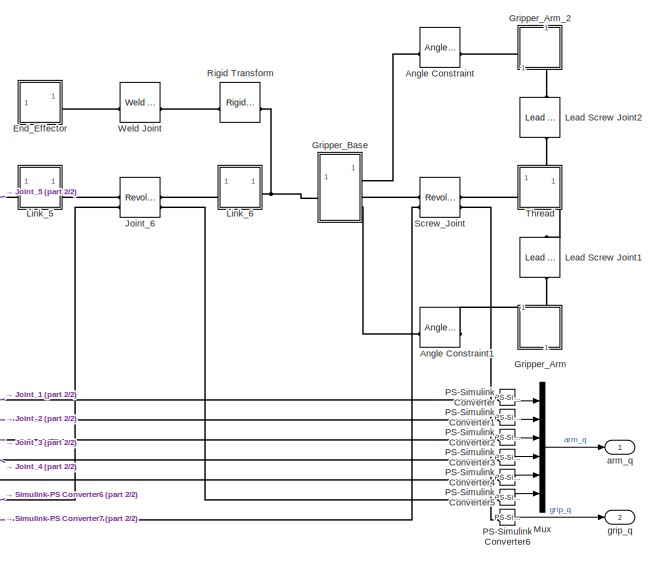
[diagram: Torque Actuated Robot Environment/Torque Actuated Manipulator - part 1/2, right side, full height]
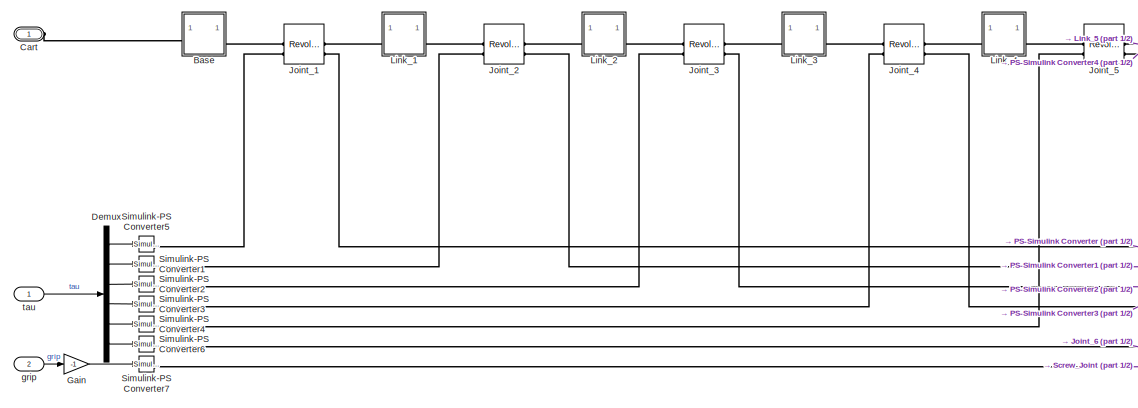
[diagram: Torque Actuated Robot Environment/Torque Actuated Manipulator - part 2/2, middle left region]
BLOCK [SubSystem] Torque Actuated Robot Environment/Torque Actuated Manipulator
BLOCK [Reference] Torque Actuated Robot Environment/Torque Actuated Manipulator/Angle Constraint  REF=sm_lib/Constraints/Angle
Constraint
  SourceBlock = sm_lib/Constraints/Angle\nConstraint
  SourceType = Angle\nConstraint
BLOCK [Reference] Torque Actuated Robot Environment/Torque Actuated Manipulator/Angle Constraint1  REF=sm_lib/Constraints/Angle
Constraint
  SourceBlock = sm_lib/Constraints/Angle\nConstraint
  SourceType = Angle\nConstraint
BLOCK [SubSystem] Torque Actuated Robot Environment/Torque Actuated Manipulator/Base
BLOCK [PMIOPort] Torque Actuated Robot Environment/Torque Actuated Manipulator/Base/F
  Side = Left
BLOCK [PMIOPort] Torque Actuated Robot Environment/Torque Actuated Manipulator/Base/F1
  Port = 2
  Side = Right
BLOCK [Reference] Torque Actuated Robot Environment/Torque Actuated Manipulator/Base/Inertia  REF=sm_lib/Body Elements/Inertia
  SourceBlock = sm_lib/Body Elements/Inertia
  SourceType = Inertia
BLOCK [Reference] Torque Actuated Robot Environment/Torque Actuated Manipulator/Base/InertiaOriginTransform  REF=sm_lib/Frames and
Transforms/Rigid
Transform
  SourceBlock = sm_lib/Frames and\nTransforms/Rigid\nTransform
  SourceType = Rigid\nTransform
BLOCK [Reference] Torque Actuated Robot Environment/Torque Actuated Manipulator/Base/ReferenceFrame  REF=sm_lib/Frames and
Transforms/Reference
Frame
  SourceBlock = sm_lib/Frames and\nTransforms/Reference\nFrame
  SourceType = Reference\nFrame
BLOCK [Reference] Torque Actuated Robot Environment/Torque Actuated Manipulator/Base/Visual  REF=sm_lib/Body Elements/File Solid
  SourceBlock = sm_lib/Body Elements/File Solid
  SourceType = File Solid
BLOCK [Reference] Torque Actuated Robot Environment/Torque Actuated Manipulator/Base/Visual1  REF=sm_lib/Body Elements/File Solid
  SourceBlock = sm_lib/Body Elements/File Solid
  SourceType = File Solid
BLOCK [Reference] Torque Actuated Robot Environment/Torque Actuated Manipulator/Base/Visual2  REF=sm_lib/Body Elements/File Solid
  SourceBlock = sm_lib/Body Elements/File Solid
  SourceType = File Solid
BLOCK [Reference] Torque Actuated Robot Environment/Torque Actuated Manipulator/Base/Visual3  REF=sm_lib/Body Elements/File Solid
  SourceBlock = sm_lib/Body Elements/File Solid
  SourceType = File Solid
BLOCK [Reference] Torque Actuated Robot Environment/Torque Actuated Manipulator/Base/VisualOrigin1Transform  REF=sm_lib/Frames and
Transforms/Rigid
Transform
  SourceBlock = sm_lib/Frames and\nTransforms/Rigid\nTransform
  SourceType = Rigid\nTransform
BLOCK [Reference] Torque Actuated Robot Environment/Torque Actuated Manipulator/Base/VisualOrigin2Transform  REF=sm_lib/Frames and
Transforms/Rigid
Transform
  SourceBlock = sm_lib/Frames and\nTransforms/Rigid\nTransform
  SourceType = Rigid\nTransform
BLOCK [Reference] Torque Actuated Robot Environment/Torque Actuated Manipulator/Base/VisualOrigin3Transform  REF=sm_lib/Frames and
Transforms/Rigid
Transform
  SourceBlock = sm_lib/Frames and\nTransforms/Rigid\nTransform
  SourceType = Rigid\nTransform
BLOCK [Reference] Torque Actuated Robot Environment/Torque Actuated Manipulator/Base/VisualOriginTransform  REF=sm_lib/Frames and
Transforms/Rigid
Transform
  SourceBlock = sm_lib/Frames and\nTransforms/Rigid\nTransform
  SourceType = Rigid\nTransform
BLOCK [Reference] Torque Actuated Robot Environment/Torque Actuated Manipulator/Base/x1_AxisTransform  REF=sm_lib/Frames and
Transforms/Rigid
Transform
  SourceBlock = sm_lib/Frames and\nTransforms/Rigid\nTransform
  SourceType = Rigid\nTransform
BLOCK [Reference] Torque Actuated Robot Environment/Torque Actuated Manipulator/Base/x1_OriginTransform  REF=sm_lib/Frames and
Transforms/Rigid
Transform
  SourceBlock = sm_lib/Frames and\nTransforms/Rigid\nTransform
  SourceType = Rigid\nTransform
BLOCK [PMIOPort] Torque Actuated Robot Environment/Torque Actuated Manipulator/Cart
  Side = Left
BLOCK [Demux] Torque Actuated Robot Environment/Torque Actuated Manipulator/Demux
  Outputs = 6
BLOCK [SubSystem] Torque Actuated Robot Environment/Torque Actuated Manipulator/End_Effector
BLOCK [PMIOPort] Torque Actuated Robot Environment/Torque Actuated Manipulator/End_Effector/F
  Side = Right
BLOCK [Reference] Torque Actuated Robot Environment/Torque Actuated Manipulator/End_Effector/Inertia  REF=sm_lib/Body Elements/Inertia
  SourceBlock = sm_lib/Body Elements/Inertia
  SourceType = Inertia
BLOCK [Reference] Torque Actuated Robot Environment/Torque Actuated Manipulator/End_Effector/Reference Frame  REF=sm_lib/Frames and
Transforms/Reference
Frame
  SourceBlock = sm_lib/Frames and\nTransforms/Reference\nFrame
  SourceType = Reference\nFrame
BLOCK [Gain] Torque Actuated Robot Environment/Torque Actuated Manipulator/Gain
  Gain = -1
BLOCK [SubSystem] Torque Actuated Robot Environment/Torque Actuated Manipulator/Gripper_Arm
BLOCK [PMIOPort] Torque Actuated Robot Environment/Torque Actuated Manipulator/Gripper_Arm/F
  Side = Left
BLOCK [PMIOPort] Torque Actuated Robot Environment/Torque Actuated Manipulator/Gripper_Arm/F1
  NameLocation = top
  Port = 2
  Side = Left
BLOCK [Reference] Torque Actuated Robot Environment/Torque Actuated Manipulator/Gripper_Arm/Inertia  REF=sm_lib/Body Elements/Inertia
  SourceBlock = sm_lib/Body Elements/Inertia
  SourceType = Inertia
BLOCK [Reference] Torque Actuated Robot Environment/Torque Actuated Manipulator/Gripper_Arm/InertiaOriginTransform  REF=sm_lib/Frames and
Transforms/Rigid
Transform
  SourceBlock = sm_lib/Frames and\nTransforms/Rigid\nTransform
  SourceType = Rigid\nTransform
BLOCK [Reference] Torque Actuated Robot Environment/Torque Actuated Manipulator/Gripper_Arm/ReferenceFrame  REF=sm_lib/Frames and
Transforms/Reference
Frame
  SourceBlock = sm_lib/Frames and\nTransforms/Reference\nFrame
  SourceType = Reference\nFrame
BLOCK [Reference] Torque Actuated Robot Environment/Torque Actuated Manipulator/Gripper_Arm/Rigid Transform  REF=sm_lib/Frames and
Transforms/Rigid
Transform
  SourceBlock = sm_lib/Frames and\nTransforms/Rigid\nTransform
  SourceType = Rigid\nTransform
BLOCK [Reference] Torque Actuated Robot Environment/Torque Actuated Manipulator/Gripper_Arm/Visual  REF=sm_lib/Body Elements/File Solid
  SourceBlock = sm_lib/Body Elements/File Solid
  SourceType = File Solid
BLOCK [Reference] Torque Actuated Robot Environment/Torque Actuated Manipulator/Gripper_Arm/VisualOriginTransform  REF=sm_lib/Frames and
Transforms/Rigid
Transform
  SourceBlock = sm_lib/Frames and\nTransforms/Rigid\nTransform
  SourceType = Rigid\nTransform
BLOCK [Reference] Torque Actuated Robot Environment/Torque Actuated Manipulator/Gripper_Arm/x8_AxisInvTransform  REF=sm_lib/Frames and
Transforms/Rigid
Transform
  SourceBlock = sm_lib/Frames and\nTransforms/Rigid\nTransform
  SourceType = Rigid\nTransform
BLOCK [SubSystem] Torque Actuated Robot Environment/Torque Actuated Manipulator/Gripper_Arm_2
  NameLocation = top
BLOCK [PMIOPort] Torque Actuated Robot Environment/Torque Actuated Manipulator/Gripper_Arm_2/F
  Side = Left
BLOCK [PMIOPort] Torque Actuated Robot Environment/Torque Actuated Manipulator/Gripper_Arm_2/F1
  NameLocation = top
  Port = 2
  Side = Left
BLOCK [Reference] Torque Actuated Robot Environment/Torque Actuated Manipulator/Gripper_Arm_2/Inertia  REF=sm_lib/Body Elements/Inertia
  SourceBlock = sm_lib/Body Elements/Inertia
  SourceType = Inertia
BLOCK [Reference] Torque Actuated Robot Environment/Torque Actuated Manipulator/Gripper_Arm_2/InertiaOriginTransform  REF=sm_lib/Frames and
Transforms/Rigid
Transform
  SourceBlock = sm_lib/Frames and\nTransforms/Rigid\nTransform
  SourceType = Rigid\nTransform
BLOCK [Reference] Torque Actuated Robot Environment/Torque Actuated Manipulator/Gripper_Arm_2/ReferenceFrame  REF=sm_lib/Frames and
Transforms/Reference
Frame
  SourceBlock = sm_lib/Frames and\nTransforms/Reference\nFrame
  SourceType = Reference\nFrame
BLOCK [Reference] Torque Actuated Robot Environment/Torque Actuated Manipulator/Gripper_Arm_2/Rigid Transform  REF=sm_lib/Frames and
Transforms/Rigid
Transform
  SourceBlock = sm_lib/Frames and\nTransforms/Rigid\nTransform
  SourceType = Rigid\nTransform
BLOCK [Reference] Torque Actuated Robot Environment/Torque Actuated Manipulator/Gripper_Arm_2/Visual  REF=sm_lib/Body Elements/File Solid
  SourceBlock = sm_lib/Body Elements/File Solid
  SourceType = File Solid
BLOCK [Reference] Torque Actuated Robot Environment/Torque Actuated Manipulator/Gripper_Arm_2/VisualOriginTransform  REF=sm_lib/Frames and
Transforms/Rigid
Transform
  SourceBlock = sm_lib/Frames and\nTransforms/Rigid\nTransform
  SourceType = Rigid\nTransform
BLOCK [Reference] Torque Actuated Robot Environment/Torque Actuated Manipulator/Gripper_Arm_2/x9_AxisInvTransform  REF=sm_lib/Frames and
Transforms/Rigid
Transform
  SourceBlock = sm_lib/Frames and\nTransforms/Rigid\nTransform
  SourceType = Rigid\nTransform
BLOCK [SubSystem] Torque Actuated Robot Environment/Torque Actuated Manipulator/Gripper_Base
BLOCK [PMIOPort] Torque Actuated Robot Environment/Torque Actuated Manipulator/Gripper_Base/F
  Side = Left
BLOCK [PMIOPort] Torque Actuated Robot Environment/Torque Actuated Manipulator/Gripper_Base/F1
  Port = 3
  Side = Right
BLOCK [PMIOPort] Torque Actuated Robot Environment/Torque Actuated Manipulator/Gripper_Base/F2
  NameLocation = top
  Port = 2
  Side = Right
BLOCK [PMIOPort] Torque Actuated Robot Environment/Torque Actuated Manipulator/Gripper_Base/F3
  NameLocation = top
  Port = 4
  Side = Right
BLOCK [Reference] Torque Actuated Robot Environment/Torque Actuated Manipulator/Gripper_Base/Inertia  REF=sm_lib/Body Elements/Inertia
  SourceBlock = sm_lib/Body Elements/Inertia
  SourceType = Inertia
BLOCK [Reference] Torque Actuated Robot Environment/Torque Actuated Manipulator/Gripper_Base/InertiaOriginTransform  REF=sm_lib/Frames and
Transforms/Rigid
Transform
  SourceBlock = sm_lib/Frames and\nTransforms/Rigid\nTransform
  SourceType = Rigid\nTransform
BLOCK [Reference] Torque Actuated Robot Environment/Torque Actuated Manipulator/Gripper_Base/ReferenceFrame  REF=sm_lib/Frames and
Transforms/Reference
Frame
  SourceBlock = sm_lib/Frames and\nTransforms/Reference\nFrame
  SourceType = Reference\nFrame
BLOCK [Reference] Torque Actuated Robot Environment/Torque Actuated Manipulator/Gripper_Base/Rigid Transform  REF=sm_lib/Frames and
Transforms/Rigid
Transform
  SourceBlock = sm_lib/Frames and\nTransforms/Rigid\nTransform
  SourceType = Rigid\nTransform
BLOCK [Reference] Torque Actuated Robot Environment/Torque Actuated Manipulator/Gripper_Base/Visual  REF=sm_lib/Body Elements/File Solid
  SourceBlock = sm_lib/Body Elements/File Solid
  SourceType = File Solid
BLOCK [Reference] Torque Actuated Robot Environment/Torque Actuated Manipulator/Gripper_Base/VisualOriginTransform  REF=sm_lib/Frames and
Transforms/Rigid
Transform
  SourceBlock = sm_lib/Frames and\nTransforms/Rigid\nTransform
  SourceType = Rigid\nTransform
BLOCK [Reference] Torque Actuated Robot Environment/Torque Actuated Manipulator/Gripper_Base/x12_AxisInvTransform  REF=sm_lib/Frames and
Transforms/Rigid
Transform
  SourceBlock = sm_lib/Frames and\nTransforms/Rigid\nTransform
  SourceType = Rigid\nTransform
BLOCK [Reference] Torque Actuated Robot Environment/Torque Actuated Manipulator/Gripper_Base/x7_AxisTransform  REF=sm_lib/Frames and
Transforms/Rigid
Transform
  SourceBlock = sm_lib/Frames and\nTransforms/Rigid\nTransform
  SourceType = Rigid\nTransform
BLOCK [Reference] Torque Actuated Robot Environment/Torque Actuated Manipulator/Gripper_Base/x7_OriginTransform  REF=sm_lib/Frames and
Transforms/Rigid
Transform
  SourceBlock = sm_lib/Frames and\nTransforms/Rigid\nTransform
  SourceType = Rigid\nTransform
BLOCK [Reference] Torque Actuated Robot Environment/Torque Actuated Manipulator/Joint_1  REF=sm_lib/Joints/Revolute Joint
  SourceBlock = sm_lib/Joints/Revolute Joint
  SourceType = Revolute Joint
BLOCK [Reference] Torque Actuated Robot Environment/Torque Actuated Manipulator/Joint_2  REF=sm_lib/Joints/Revolute Joint
  SourceBlock = sm_lib/Joints/Revolute Joint
  SourceType = Revolute Joint
BLOCK [Reference] Torque Actuated Robot Environment/Torque Actuated Manipulator/Joint_3  REF=sm_lib/Joints/Revolute Joint
  SourceBlock = sm_lib/Joints/Revolute Joint
  SourceType = Revolute Joint
BLOCK [Reference] Torque Actuated Robot Environment/Torque Actuated Manipulator/Joint_4  REF=sm_lib/Joints/Revolute Joint
  SourceBlock = sm_lib/Joints/Revolute Joint
  SourceType = Revolute Joint
BLOCK [Reference] Torque Actuated Robot Environment/Torque Actuated Manipulator/Joint_5  REF=sm_lib/Joints/Revolute Joint
  SourceBlock = sm_lib/Joints/Revolute Joint
  SourceType = Revolute Joint
BLOCK [Reference] Torque Actuated Robot Environment/Torque Actuated Manipulator/Joint_6  REF=sm_lib/Joints/Revolute Joint
  SourceBlock = sm_lib/Joints/Revolute Joint
  SourceType = Revolute Joint
BLOCK [Reference] Torque Actuated Robot Environment/Torque Actuated Manipulator/Lead Screw Joint1  REF=sm_lib/Joints/Lead Screw
Joint
  NameLocation = left
  SourceBlock = sm_lib/Joints/Lead Screw\nJoint
  SourceType = Lead Screw\nJoint
BLOCK [Reference] Torque Actuated Robot Environment/Torque Actuated Manipulator/Lead Screw Joint2  REF=sm_lib/Joints/Lead Screw
Joint
  NameLocation = right
  SourceBlock = sm_lib/Joints/Lead Screw\nJoint
  SourceType = Lead Screw\nJoint
BLOCK [SubSystem] Torque Actuated Robot Environment/Torque Actuated Manipulator/Link_1
BLOCK [PMIOPort] Torque Actuated Robot Environment/Torque Actuated Manipulator/Link_1/F
  Side = Left
BLOCK [PMIOPort] Torque Actuated Robot Environment/Torque Actuated Manipulator/Link_1/F1
  Port = 2
  Side = Right
BLOCK [Reference] Torque Actuated Robot Environment/Torque Actuated Manipulator/Link_1/Inertia  REF=sm_lib/Body Elements/Inertia
  SourceBlock = sm_lib/Body Elements/Inertia
  SourceType = Inertia
BLOCK [Reference] Torque Actuated Robot Environment/Torque Actuated Manipulator/Link_1/InertiaOriginTransform  REF=sm_lib/Frames and
Transforms/Rigid
Transform
  SourceBlock = sm_lib/Frames and\nTransforms/Rigid\nTransform
  SourceType = Rigid\nTransform
BLOCK [Reference] Torque Actuated Robot Environment/Torque Actuated Manipulator/Link_1/ReferenceFrame  REF=sm_lib/Frames and
Transforms/Reference
Frame
  SourceBlock = sm_lib/Frames and\nTransforms/Reference\nFrame
  SourceType = Reference\nFrame
BLOCK [Reference] Torque Actuated Robot Environment/Torque Actuated Manipulator/Link_1/Visual  REF=sm_lib/Body Elements/File Solid
  SourceBlock = sm_lib/Body Elements/File Solid
  SourceType = File Solid
BLOCK [Reference] Torque Actuated Robot Environment/Torque Actuated Manipulator/Link_1/Visual1  REF=sm_lib/Body Elements/File Solid
  SourceBlock = sm_lib/Body Elements/File Solid
  SourceType = File Solid
BLOCK [Reference] Torque Actuated Robot Environment/Torque Actuated Manipulator/Link_1/VisualOrigin1Transform  REF=sm_lib/Frames and
Transforms/Rigid
Transform
  SourceBlock = sm_lib/Frames and\nTransforms/Rigid\nTransform
  SourceType = Rigid\nTransform
BLOCK [Reference] Torque Actuated Robot Environment/Torque Actuated Manipulator/Link_1/VisualOriginTransform  REF=sm_lib/Frames and
Transforms/Rigid
Transform
  SourceBlock = sm_lib/Frames and\nTransforms/Rigid\nTransform
  SourceType = Rigid\nTransform
BLOCK [Reference] Torque Actuated Robot Environment/Torque Actuated Manipulator/Link_1/x1_AxisInvTransform  REF=sm_lib/Frames and
Transforms/Rigid
Transform
  SourceBlock = sm_lib/Frames and\nTransforms/Rigid\nTransform
  SourceType = Rigid\nTransform
BLOCK [Reference] Torque Actuated Robot Environment/Torque Actuated Manipulator/Link_1/x2_AxisTransform  REF=sm_lib/Frames and
Transforms/Rigid
Transform
  SourceBlock = sm_lib/Frames and\nTransforms/Rigid\nTransform
  SourceType = Rigid\nTransform
BLOCK [Reference] Torque Actuated Robot Environment/Torque Actuated Manipulator/Link_1/x2_OriginTransform  REF=sm_lib/Frames and
Transforms/Rigid
Transform
  SourceBlock = sm_lib/Frames and\nTransforms/Rigid\nTransform
  SourceType = Rigid\nTransform
BLOCK [SubSystem] Torque Actuated Robot Environment/Torque Actuated Manipulator/Link_2
BLOCK [PMIOPort] Torque Actuated Robot Environment/Torque Actuated Manipulator/Link_2/F
  Side = Left
BLOCK [PMIOPort] Torque Actuated Robot Environment/Torque Actuated Manipulator/Link_2/F1
  Port = 2
  Side = Right
BLOCK [Reference] Torque Actuated Robot Environment/Torque Actuated Manipulator/Link_2/Inertia  REF=sm_lib/Body Elements/Inertia
  SourceBlock = sm_lib/Body Elements/Inertia
  SourceType = Inertia
BLOCK [Reference] Torque Actuated Robot Environment/Torque Actuated Manipulator/Link_2/InertiaOriginTransform  REF=sm_lib/Frames and
Transforms/Rigid
Transform
  SourceBlock = sm_lib/Frames and\nTransforms/Rigid\nTransform
  SourceType = Rigid\nTransform
BLOCK [Reference] Torque Actuated Robot Environment/Torque Actuated Manipulator/Link_2/ReferenceFrame  REF=sm_lib/Frames and
Transforms/Reference
Frame
  SourceBlock = sm_lib/Frames and\nTransforms/Reference\nFrame
  SourceType = Reference\nFrame
BLOCK [Reference] Torque Actuated Robot Environment/Torque Actuated Manipulator/Link_2/Visual  REF=sm_lib/Body Elements/File Solid
  SourceBlock = sm_lib/Body Elements/File Solid
  SourceType = File Solid
BLOCK [Reference] Torque Actuated Robot Environment/Torque Actuated Manipulator/Link_2/Visual1  REF=sm_lib/Body Elements/File Solid
  SourceBlock = sm_lib/Body Elements/File Solid
  SourceType = File Solid
BLOCK [Reference] Torque Actuated Robot Environment/Torque Actuated Manipulator/Link_2/Visual2  REF=sm_lib/Body Elements/File Solid
  SourceBlock = sm_lib/Body Elements/File Solid
  SourceType = File Solid
BLOCK [Reference] Torque Actuated Robot Environment/Torque Actuated Manipulator/Link_2/VisualOrigin1Transform  REF=sm_lib/Frames and
Transforms/Rigid
Transform
  SourceBlock = sm_lib/Frames and\nTransforms/Rigid\nTransform
  SourceType = Rigid\nTransform
BLOCK [Reference] Torque Actuated Robot Environment/Torque Actuated Manipulator/Link_2/VisualOrigin2Transform  REF=sm_lib/Frames and
Transforms/Rigid
Transform
  SourceBlock = sm_lib/Frames and\nTransforms/Rigid\nTransform
  SourceType = Rigid\nTransform
BLOCK [Reference] Torque Actuated Robot Environment/Torque Actuated Manipulator/Link_2/VisualOriginTransform  REF=sm_lib/Frames and
Transforms/Rigid
Transform
  SourceBlock = sm_lib/Frames and\nTransforms/Rigid\nTransform
  SourceType = Rigid\nTransform
BLOCK [Reference] Torque Actuated Robot Environment/Torque Actuated Manipulator/Link_2/x2_AxisInvTransform  REF=sm_lib/Frames and
Transforms/Rigid
Transform
  SourceBlock = sm_lib/Frames and\nTransforms/Rigid\nTransform
  SourceType = Rigid\nTransform
BLOCK [Reference] Torque Actuated Robot Environment/Torque Actuated Manipulator/Link_2/x3_AxisTransform  REF=sm_lib/Frames and
Transforms/Rigid
Transform
  SourceBlock = sm_lib/Frames and\nTransforms/Rigid\nTransform
  SourceType = Rigid\nTransform
BLOCK [Reference] Torque Actuated Robot Environment/Torque Actuated Manipulator/Link_2/x3_OriginTransform  REF=sm_lib/Frames and
Transforms/Rigid
Transform
  SourceBlock = sm_lib/Frames and\nTransforms/Rigid\nTransform
  SourceType = Rigid\nTransform
BLOCK [SubSystem] Torque Actuated Robot Environment/Torque Actuated Manipulator/Link_3
BLOCK [PMIOPort] Torque Actuated Robot Environment/Torque Actuated Manipulator/Link_3/F
  Side = Left
BLOCK [PMIOPort] Torque Actuated Robot Environment/Torque Actuated Manipulator/Link_3/F1
  Port = 2
  Side = Right
BLOCK [Reference] Torque Actuated Robot Environment/Torque Actuated Manipulator/Link_3/Inertia  REF=sm_lib/Body Elements/Inertia
  SourceBlock = sm_lib/Body Elements/Inertia
  SourceType = Inertia
BLOCK [Reference] Torque Actuated Robot Environment/Torque Actuated Manipulator/Link_3/InertiaOriginTransform  REF=sm_lib/Frames and
Transforms/Rigid
Transform
  SourceBlock = sm_lib/Frames and\nTransforms/Rigid\nTransform
  SourceType = Rigid\nTransform
BLOCK [Reference] Torque Actuated Robot Environment/Torque Actuated Manipulator/Link_3/ReferenceFrame  REF=sm_lib/Frames and
Transforms/Reference
Frame
  SourceBlock = sm_lib/Frames and\nTransforms/Reference\nFrame
  SourceType = Reference\nFrame
BLOCK [Reference] Torque Actuated Robot Environment/Torque Actuated Manipulator/Link_3/Visual  REF=sm_lib/Body Elements/File Solid
  SourceBlock = sm_lib/Body Elements/File Solid
  SourceType = File Solid
BLOCK [Reference] Torque Actuated Robot Environment/Torque Actuated Manipulator/Link_3/Visual1  REF=sm_lib/Body Elements/File Solid
  SourceBlock = sm_lib/Body Elements/File Solid
  SourceType = File Solid
BLOCK [Reference] Torque Actuated Robot Environment/Torque Actuated Manipulator/Link_3/VisualOrigin1Transform  REF=sm_lib/Frames and
Transforms/Rigid
Transform
  SourceBlock = sm_lib/Frames and\nTransforms/Rigid\nTransform
  SourceType = Rigid\nTransform
BLOCK [Reference] Torque Actuated Robot Environment/Torque Actuated Manipulator/Link_3/VisualOriginTransform  REF=sm_lib/Frames and
Transforms/Rigid
Transform
  SourceBlock = sm_lib/Frames and\nTransforms/Rigid\nTransform
  SourceType = Rigid\nTransform
BLOCK [Reference] Torque Actuated Robot Environment/Torque Actuated Manipulator/Link_3/x3_AxisInvTransform  REF=sm_lib/Frames and
Transforms/Rigid
Transform
  SourceBlock = sm_lib/Frames and\nTransforms/Rigid\nTransform
  SourceType = Rigid\nTransform
BLOCK [Reference] Torque Actuated Robot Environment/Torque Actuated Manipulator/Link_3/x4_AxisTransform  REF=sm_lib/Frames and
Transforms/Rigid
Transform
  SourceBlock = sm_lib/Frames and\nTransforms/Rigid\nTransform
  SourceType = Rigid\nTransform
BLOCK [Reference] Torque Actuated Robot Environment/Torque Actuated Manipulator/Link_3/x4_OriginTransform  REF=sm_lib/Frames and
Transforms/Rigid
Transform
  SourceBlock = sm_lib/Frames and\nTransforms/Rigid\nTransform
  SourceType = Rigid\nTransform
BLOCK [SubSystem] Torque Actuated Robot Environment/Torque Actuated Manipulator/Link_4
BLOCK [PMIOPort] Torque Actuated Robot Environment/Torque Actuated Manipulator/Link_4/F
  Side = Left
BLOCK [PMIOPort] Torque Actuated Robot Environment/Torque Actuated Manipulator/Link_4/F1
  Port = 2
  Side = Right
BLOCK [Reference] Torque Actuated Robot Environment/Torque Actuated Manipulator/Link_4/Inertia  REF=sm_lib/Body Elements/Inertia
  SourceBlock = sm_lib/Body Elements/Inertia
  SourceType = Inertia
BLOCK [Reference] Torque Actuated Robot Environment/Torque Actuated Manipulator/Link_4/InertiaOriginTransform  REF=sm_lib/Frames and
Transforms/Rigid
Transform
  SourceBlock = sm_lib/Frames and\nTransforms/Rigid\nTransform
  SourceType = Rigid\nTransform
BLOCK [Reference] Torque Actuated Robot Environment/Torque Actuated Manipulator/Link_4/ReferenceFrame  REF=sm_lib/Frames and
Transforms/Reference
Frame
  SourceBlock = sm_lib/Frames and\nTransforms/Reference\nFrame
  SourceType = Reference\nFrame
BLOCK [Reference] Torque Actuated Robot Environment/Torque Actuated Manipulator/Link_4/Visual  REF=sm_lib/Body Elements/File Solid
  SourceBlock = sm_lib/Body Elements/File Solid
  SourceType = File Solid
BLOCK [Reference] Torque Actuated Robot Environment/Torque Actuated Manipulator/Link_4/Visual1  REF=sm_lib/Body Elements/File Solid
  SourceBlock = sm_lib/Body Elements/File Solid
  SourceType = File Solid
BLOCK [Reference] Torque Actuated Robot Environment/Torque Actuated Manipulator/Link_4/Visual2  REF=sm_lib/Body Elements/File Solid
  SourceBlock = sm_lib/Body Elements/File Solid
  SourceType = File Solid
BLOCK [Reference] Torque Actuated Robot Environment/Torque Actuated Manipulator/Link_4/VisualOrigin1Transform  REF=sm_lib/Frames and
Transforms/Rigid
Transform
  SourceBlock = sm_lib/Frames and\nTransforms/Rigid\nTransform
  SourceType = Rigid\nTransform
BLOCK [Reference] Torque Actuated Robot Environment/Torque Actuated Manipulator/Link_4/VisualOrigin2Transform  REF=sm_lib/Frames and
Transforms/Rigid
Transform
  SourceBlock = sm_lib/Frames and\nTransforms/Rigid\nTransform
  SourceType = Rigid\nTransform
BLOCK [Reference] Torque Actuated Robot Environment/Torque Actuated Manipulator/Link_4/VisualOriginTransform  REF=sm_lib/Frames and
Transforms/Rigid
Transform
  SourceBlock = sm_lib/Frames and\nTransforms/Rigid\nTransform
  SourceType = Rigid\nTransform
BLOCK [Reference] Torque Actuated Robot Environment/Torque Actuated Manipulator/Link_4/x4_AxisInvTransform  REF=sm_lib/Frames and
Transforms/Rigid
Transform
  SourceBlock = sm_lib/Frames and\nTransforms/Rigid\nTransform
  SourceType = Rigid\nTransform
BLOCK [Reference] Torque Actuated Robot Environment/Torque Actuated Manipulator/Link_4/x5_AxisTransform  REF=sm_lib/Frames and
Transforms/Rigid
Transform
  SourceBlock = sm_lib/Frames and\nTransforms/Rigid\nTransform
  SourceType = Rigid\nTransform
BLOCK [Reference] Torque Actuated Robot Environment/Torque Actuated Manipulator/Link_4/x5_OriginTransform  REF=sm_lib/Frames and
Transforms/Rigid
Transform
  SourceBlock = sm_lib/Frames and\nTransforms/Rigid\nTransform
  SourceType = Rigid\nTransform
BLOCK [SubSystem] Torque Actuated Robot Environment/Torque Actuated Manipulator/Link_5
BLOCK [PMIOPort] Torque Actuated Robot Environment/Torque Actuated Manipulator/Link_5/F
  Side = Left
BLOCK [PMIOPort] Torque Actuated Robot Environment/Torque Actuated Manipulator/Link_5/F1
  Port = 2
  Side = Right
BLOCK [Reference] Torque Actuated Robot Environment/Torque Actuated Manipulator/Link_5/Inertia  REF=sm_lib/Body Elements/Inertia
  SourceBlock = sm_lib/Body Elements/Inertia
  SourceType = Inertia
BLOCK [Reference] Torque Actuated Robot Environment/Torque Actuated Manipulator/Link_5/InertiaOriginTransform  REF=sm_lib/Frames and
Transforms/Rigid
Transform
  SourceBlock = sm_lib/Frames and\nTransforms/Rigid\nTransform
  SourceType = Rigid\nTransform
BLOCK [Reference] Torque Actuated Robot Environment/Torque Actuated Manipulator/Link_5/ReferenceFrame  REF=sm_lib/Frames and
Transforms/Reference
Frame
  SourceBlock = sm_lib/Frames and\nTransforms/Reference\nFrame
  SourceType = Reference\nFrame
BLOCK [Reference] Torque Actuated Robot Environment/Torque Actuated Manipulator/Link_5/Visual  REF=sm_lib/Body Elements/File Solid
  SourceBlock = sm_lib/Body Elements/File Solid
  SourceType = File Solid
BLOCK [Reference] Torque Actuated Robot Environment/Torque Actuated Manipulator/Link_5/Visual1  REF=sm_lib/Body Elements/File Solid
  SourceBlock = sm_lib/Body Elements/File Solid
  SourceType = File Solid
BLOCK [Reference] Torque Actuated Robot Environment/Torque Actuated Manipulator/Link_5/VisualOrigin1Transform  REF=sm_lib/Frames and
Transforms/Rigid
Transform
  SourceBlock = sm_lib/Frames and\nTransforms/Rigid\nTransform
  SourceType = Rigid\nTransform
BLOCK [Reference] Torque Actuated Robot Environment/Torque Actuated Manipulator/Link_5/VisualOriginTransform  REF=sm_lib/Frames and
Transforms/Rigid
Transform
  SourceBlock = sm_lib/Frames and\nTransforms/Rigid\nTransform
  SourceType = Rigid\nTransform
BLOCK [Reference] Torque Actuated Robot Environment/Torque Actuated Manipulator/Link_5/x5_AxisInvTransform  REF=sm_lib/Frames and
Transforms/Rigid
Transform
  SourceBlock = sm_lib/Frames and\nTransforms/Rigid\nTransform
  SourceType = Rigid\nTransform
BLOCK [Reference] Torque Actuated Robot Environment/Torque Actuated Manipulator/Link_5/x6_AxisTransform  REF=sm_lib/Frames and
Transforms/Rigid
Transform
  SourceBlock = sm_lib/Frames and\nTransforms/Rigid\nTransform
  SourceType = Rigid\nTransform
BLOCK [Reference] Torque Actuated Robot Environment/Torque Actuated Manipulator/Link_5/x6_OriginTransform  REF=sm_lib/Frames and
Transforms/Rigid
Transform
  SourceBlock = sm_lib/Frames and\nTransforms/Rigid\nTransform
  SourceType = Rigid\nTransform
BLOCK [SubSystem] Torque Actuated Robot Environment/Torque Actuated Manipulator/Link_6
BLOCK [PMIOPort] Torque Actuated Robot Environment/Torque Actuated Manipulator/Link_6/F
  Side = Left
BLOCK [PMIOPort] Torque Actuated Robot Environment/Torque Actuated Manipulator/Link_6/F1
  Port = 2
  Side = Right
BLOCK [Reference] Torque Actuated Robot Environment/Torque Actuated Manipulator/Link_6/Inertia  REF=sm_lib/Body Elements/Inertia
  SourceBlock = sm_lib/Body Elements/Inertia
  SourceType = Inertia
BLOCK [Reference] Torque Actuated Robot Environment/Torque Actuated Manipulator/Link_6/InertiaOriginTransform  REF=sm_lib/Frames and
Transforms/Rigid
Transform
  SourceBlock = sm_lib/Frames and\nTransforms/Rigid\nTransform
  SourceType = Rigid\nTransform
BLOCK [Reference] Torque Actuated Robot Environment/Torque Actuated Manipulator/Link_6/ReferenceFrame  REF=sm_lib/Frames and
Transforms/Reference
Frame
  SourceBlock = sm_lib/Frames and\nTransforms/Reference\nFrame
  SourceType = Reference\nFrame
BLOCK [Reference] Torque Actuated Robot Environment/Torque Actuated Manipulator/Link_6/Visual  REF=sm_lib/Body Elements/File Solid
  SourceBlock = sm_lib/Body Elements/File Solid
  SourceType = File Solid
BLOCK [Reference] Torque Actuated Robot Environment/Torque Actuated Manipulator/Link_6/Visual1  REF=sm_lib/Body Elements/File Solid
  SourceBlock = sm_lib/Body Elements/File Solid
  SourceType = File Solid
BLOCK [Reference] Torque Actuated Robot Environment/Torque Actuated Manipulator/Link_6/Visual2  REF=sm_lib/Body Elements/File Solid
  SourceBlock = sm_lib/Body Elements/File Solid
  SourceType = File Solid
BLOCK [Reference] Torque Actuated Robot Environment/Torque Actuated Manipulator/Link_6/Visual3  REF=sm_lib/Body Elements/File Solid
  SourceBlock = sm_lib/Body Elements/File Solid
  SourceType = File Solid
BLOCK [Reference] Torque Actuated Robot Environment/Torque Actuated Manipulator/Link_6/Visual4  REF=sm_lib/Body Elements/File Solid
  SourceBlock = sm_lib/Body Elements/File Solid
  SourceType = File Solid
BLOCK [Reference] Torque Actuated Robot Environment/Torque Actuated Manipulator/Link_6/Visual5  REF=sm_lib/Body Elements/File Solid
  SourceBlock = sm_lib/Body Elements/File Solid
  SourceType = File Solid
BLOCK [Reference] Torque Actuated Robot Environment/Torque Actuated Manipulator/Link_6/Visual6  REF=sm_lib/Body Elements/File Solid
  SourceBlock = sm_lib/Body Elements/File Solid
  SourceType = File Solid
BLOCK [Reference] Torque Actuated Robot Environment/Torque Actuated Manipulator/Link_6/Visual7  REF=sm_lib/Body Elements/File Solid
  SourceBlock = sm_lib/Body Elements/File Solid
  SourceType = File Solid
BLOCK [Reference] Torque Actuated Robot Environment/Torque Actuated Manipulator/Link_6/VisualOrigin1Transform  REF=sm_lib/Frames and
Transforms/Rigid
Transform
  SourceBlock = sm_lib/Frames and\nTransforms/Rigid\nTransform
  SourceType = Rigid\nTransform
BLOCK [Reference] Torque Actuated Robot Environment/Torque Actuated Manipulator/Link_6/VisualOrigin2Transform  REF=sm_lib/Frames and
Transforms/Rigid
Transform
  SourceBlock = sm_lib/Frames and\nTransforms/Rigid\nTransform
  SourceType = Rigid\nTransform
BLOCK [Reference] Torque Actuated Robot Environment/Torque Actuated Manipulator/Link_6/VisualOrigin3Transform  REF=sm_lib/Frames and
Transforms/Rigid
Transform
  SourceBlock = sm_lib/Frames and\nTransforms/Rigid\nTransform
  SourceType = Rigid\nTransform
BLOCK [Reference] Torque Actuated Robot Environment/Torque Actuated Manipulator/Link_6/VisualOrigin4Transform  REF=sm_lib/Frames and
Transforms/Rigid
Transform
  SourceBlock = sm_lib/Frames and\nTransforms/Rigid\nTransform
  SourceType = Rigid\nTransform
BLOCK [Reference] Torque Actuated Robot Environment/Torque Actuated Manipulator/Link_6/VisualOrigin5Transform  REF=sm_lib/Frames and
Transforms/Rigid
Transform
  SourceBlock = sm_lib/Frames and\nTransforms/Rigid\nTransform
  SourceType = Rigid\nTransform
BLOCK [Reference] Torque Actuated Robot Environment/Torque Actuated Manipulator/Link_6/VisualOrigin6Transform  REF=sm_lib/Frames and
Transforms/Rigid
Transform
  SourceBlock = sm_lib/Frames and\nTransforms/Rigid\nTransform
  SourceType = Rigid\nTransform
BLOCK [Reference] Torque Actuated Robot Environment/Torque Actuated Manipulator/Link_6/VisualOrigin7Transform  REF=sm_lib/Frames and
Transforms/Rigid
Transform
  SourceBlock = sm_lib/Frames and\nTransforms/Rigid\nTransform
  SourceType = Rigid\nTransform
BLOCK [Reference] Torque Actuated Robot Environment/Torque Actuated Manipulator/Link_6/VisualOriginTransform  REF=sm_lib/Frames and
Transforms/Rigid
Transform
  SourceBlock = sm_lib/Frames and\nTransforms/Rigid\nTransform
  SourceType = Rigid\nTransform
BLOCK [Reference] Torque Actuated Robot Environment/Torque Actuated Manipulator/Link_6/x12_AxisTransform  REF=sm_lib/Frames and
Transforms/Rigid
Transform
  SourceBlock = sm_lib/Frames and\nTransforms/Rigid\nTransform
  SourceType = Rigid\nTransform
BLOCK [Reference] Torque Actuated Robot Environment/Torque Actuated Manipulator/Link_6/x12_OriginTransform  REF=sm_lib/Frames and
Transforms/Rigid
Transform
  SourceBlock = sm_lib/Frames and\nTransforms/Rigid\nTransform
  SourceType = Rigid\nTransform
BLOCK [Reference] Torque Actuated Robot Environment/Torque Actuated Manipulator/Link_6/x6_AxisInvTransform  REF=sm_lib/Frames and
Transforms/Rigid
Transform
  SourceBlock = sm_lib/Frames and\nTransforms/Rigid\nTransform
  SourceType = Rigid\nTransform
BLOCK [Mux] Torque Actuated Robot Environment/Torque Actuated Manipulator/Mux
  DisplayOption = bar
  Inputs = 6
BLOCK [Reference] Torque Actuated Robot Environment/Torque Actuated Manipulator/PS-Simulink Converter  REF=nesl_utility/PS-Simulink
Converter
  SourceBlock = nesl_utility/PS-Simulink\nConverter
  SourceType = PS-Simulink\nConverter
BLOCK [Reference] Torque Actuated Robot Environment/Torque Actuated Manipulator/PS-Simulink Converter1  REF=nesl_utility/PS-Simulink
Converter
  SourceBlock = nesl_utility/PS-Simulink\nConverter
  SourceType = PS-Simulink\nConverter
BLOCK [Reference] Torque Actuated Robot Environment/Torque Actuated Manipulator/PS-Simulink Converter2  REF=nesl_utility/PS-Simulink
Converter
  SourceBlock = nesl_utility/PS-Simulink\nConverter
  SourceType = PS-Simulink\nConverter
BLOCK [Reference] Torque Actuated Robot Environment/Torque Actuated Manipulator/PS-Simulink Converter3  REF=nesl_utility/PS-Simulink
Converter
  SourceBlock = nesl_utility/PS-Simulink\nConverter
  SourceType = PS-Simulink\nConverter
BLOCK [Reference] Torque Actuated Robot Environment/Torque Actuated Manipulator/PS-Simulink Converter4  REF=nesl_utility/PS-Simulink
Converter
  SourceBlock = nesl_utility/PS-Simulink\nConverter
  SourceType = PS-Simulink\nConverter
BLOCK [Reference] Torque Actuated Robot Environment/Torque Actuated Manipulator/PS-Simulink Converter5  REF=nesl_utility/PS-Simulink
Converter
  SourceBlock = nesl_utility/PS-Simulink\nConverter
  SourceType = PS-Simulink\nConverter
BLOCK [Reference] Torque Actuated Robot Environment/Torque Actuated Manipulator/PS-Simulink Converter6  REF=nesl_utility/PS-Simulink
Converter
  SourceBlock = nesl_utility/PS-Simulink\nConverter
  SourceType = PS-Simulink\nConverter
BLOCK [Reference] Torque Actuated Robot Environment/Torque Actuated Manipulator/Rigid Transform  REF=sm_lib/Frames and
Transforms/Rigid
Transform
  NameLocation = top
  SourceBlock = sm_lib/Frames and\nTransforms/Rigid\nTransform
  SourceType = Rigid\nTransform
BLOCK [Reference] Torque Actuated Robot Environment/Torque Actuated Manipulator/Screw_Joint  REF=sm_lib/Joints/Revolute Joint
  SourceBlock = sm_lib/Joints/Revolute Joint
  SourceType = Revolute Joint
BLOCK [Reference] Torque Actuated Robot Environment/Torque Actuated Manipulator/Simulink-PS Converter1  REF=nesl_utility/Simulink-PS
Converter
  SourceBlock = nesl_utility/Simulink-PS\nConverter
  SourceType = Simulink-PS\nConverter
BLOCK [Reference] Torque Actuated Robot Environment/Torque Actuated Manipulator/Simulink-PS Converter2  REF=nesl_utility/Simulink-PS
Converter
  SourceBlock = nesl_utility/Simulink-PS\nConverter
  SourceType = Simulink-PS\nConverter
BLOCK [Reference] Torque Actuated Robot Environment/Torque Actuated Manipulator/Simulink-PS Converter3  REF=nesl_utility/Simulink-PS
Converter
  SourceBlock = nesl_utility/Simulink-PS\nConverter
  SourceType = Simulink-PS\nConverter
BLOCK [Reference] Torque Actuated Robot Environment/Torque Actuated Manipulator/Simulink-PS Converter4  REF=nesl_utility/Simulink-PS
Converter
  SourceBlock = nesl_utility/Simulink-PS\nConverter
  SourceType = Simulink-PS\nConverter
BLOCK [Reference] Torque Actuated Robot Environment/Torque Actuated Manipulator/Simulink-PS Converter5  REF=nesl_utility/Simulink-PS
Converter
  SourceBlock = nesl_utility/Simulink-PS\nConverter
  SourceType = Simulink-PS\nConverter
BLOCK [Reference] Torque Actuated Robot Environment/Torque Actuated Manipulator/Simulink-PS Converter6  REF=nesl_utility/Simulink-PS
Converter
  SourceBlock = nesl_utility/Simulink-PS\nConverter
  SourceType = Simulink-PS\nConverter
BLOCK [Reference] Torque Actuated Robot Environment/Torque Actuated Manipulator/Simulink-PS Converter7  REF=nesl_utility/Simulink-PS
Converter
  SourceBlock = nesl_utility/Simulink-PS\nConverter
  SourceType = Simulink-PS\nConverter
BLOCK [SubSystem] Torque Actuated Robot Environment/Torque Actuated Manipulator/Thread
  NameLocation = right
  PortSchema = {"entries":[{"content":{"sides":[{"content":{"connectorIds":["LConn1"]},"type":"ConnectorPlacement.EquallySpacedRectSide","uuid":"031806b6-048a-4529-890c-d6f4237d518c"},{"content":{"side":"RIGHT"},"type":"ConnectorPlacement.EquallySpacedRectSide","uuid":"7c6ec05c-a1a8-4049-a676-ef08521e7b31"},{"content":{"connectorIds":["LConn2"],"side":"TOP"},"type":"ConnectorPlacement.EquallySpacedRectSide","uui...<+379ch>
BLOCK [PMIOPort] Torque Actuated Robot Environment/Torque Actuated Manipulator/Thread/F
  Side = Left
BLOCK [PMIOPort] Torque Actuated Robot Environment/Torque Actuated Manipulator/Thread/F1
  Port = 3
  Side = Right
BLOCK [PMIOPort] Torque Actuated Robot Environment/Torque Actuated Manipulator/Thread/F2
  Port = 2
  Side = Left
BLOCK [Reference] Torque Actuated Robot Environment/Torque Actuated Manipulator/Thread/Inertia  REF=sm_lib/Body Elements/Inertia
  SourceBlock = sm_lib/Body Elements/Inertia
  SourceType = Inertia
BLOCK [Reference] Torque Actuated Robot Environment/Torque Actuated Manipulator/Thread/InertiaOriginTransform  REF=sm_lib/Frames and
Transforms/Rigid
Transform
  SourceBlock = sm_lib/Frames and\nTransforms/Rigid\nTransform
  SourceType = Rigid\nTransform
BLOCK [Reference] Torque Actuated Robot Environment/Torque Actuated Manipulator/Thread/ReferenceFrame  REF=sm_lib/Frames and
Transforms/Reference
Frame
  SourceBlock = sm_lib/Frames and\nTransforms/Reference\nFrame
  SourceType = Reference\nFrame
BLOCK [Reference] Torque Actuated Robot Environment/Torque Actuated Manipulator/Thread/Visual  REF=sm_lib/Body Elements/File Solid
  SourceBlock = sm_lib/Body Elements/File Solid
  SourceType = File Solid
BLOCK [Reference] Torque Actuated Robot Environment/Torque Actuated Manipulator/Thread/VisualOriginTransform  REF=sm_lib/Frames and
Transforms/Rigid
Transform
  SourceBlock = sm_lib/Frames and\nTransforms/Rigid\nTransform
  SourceType = Rigid\nTransform
BLOCK [Reference] Torque Actuated Robot Environment/Torque Actuated Manipulator/Thread/x7_AxisInvTransform  REF=sm_lib/Frames and
Transforms/Rigid
Transform
  SourceBlock = sm_lib/Frames and\nTransforms/Rigid\nTransform
  SourceType = Rigid\nTransform
BLOCK [Reference] Torque Actuated Robot Environment/Torque Actuated Manipulator/Thread/x8_AxisTransform  REF=sm_lib/Frames and
Transforms/Rigid
Transform
  SourceBlock = sm_lib/Frames and\nTransforms/Rigid\nTransform
  SourceType = Rigid\nTransform
BLOCK [Reference] Torque Actuated Robot Environment/Torque Actuated Manipulator/Thread/x8_OriginTransform  REF=sm_lib/Frames and
Transforms/Rigid
Transform
  SourceBlock = sm_lib/Frames and\nTransforms/Rigid\nTransform
  SourceType = Rigid\nTransform
BLOCK [Reference] Torque Actuated Robot Environment/Torque Actuated Manipulator/Thread/x9_AxisTransform  REF=sm_lib/Frames and
Transforms/Rigid
Transform
  SourceBlock = sm_lib/Frames and\nTransforms/Rigid\nTransform
  SourceType = Rigid\nTransform
BLOCK [Reference] Torque Actuated Robot Environment/Torque Actuated Manipulator/Thread/x9_OriginTransform  REF=sm_lib/Frames and
Transforms/Rigid
Transform
  SourceBlock = sm_lib/Frames and\nTransforms/Rigid\nTransform
  SourceType = Rigid\nTransform
BLOCK [Reference] Torque Actuated Robot Environment/Torque Actuated Manipulator/Weld Joint  REF=sm_lib/Joints/Weld Joint
  SourceBlock = sm_lib/Joints/Weld Joint
  SourceType = Weld Joint
BLOCK [Outport] Torque Actuated Robot Environment/Torque Actuated Manipulator/arm_q
BLOCK [Inport] Torque Actuated Robot Environment/Torque Actuated Manipulator/grip
  Port = 2
BLOCK [Outport] Torque Actuated Robot Environment/Torque Actuated Manipulator/grip_q
  Port = 2
BLOCK [Inport] Torque Actuated Robot Environment/Torque Actuated Manipulator/tau
BLOCK [Reference] Torque Actuated Robot Environment/World  REF=sm_lib/Frames and
Transforms/World Frame
  NameLocation = top
  SourceBlock = sm_lib/Frames and\nTransforms/World Frame
  SourceType = World Frame
BLOCK [Outport] Torque Actuated Robot Environment/arm_q
BLOCK [Outport] Torque Actuated Robot Environment/c_state
  Port = 3
BLOCK [Inport] Torque Actuated Robot Environment/config
BLOCK [Inport] Torque Actuated Robot Environment/grip
  Port = 2
BLOCK [Outport] Torque Actuated Robot Environment/grip_q
  Port = 2
BLOCK [Inport] Torque Actuated Robot Environment/w_L
  Port = 4
BLOCK [Inport] Torque Actuated Robot Environment/w_R
  Port = 3
ANNOTATION Arm Controller: Input Filter
ANNOTATION Supervisory Logic/saturateEE: Saturates end effector pose based on motion limits
NET Arm Controller/Config:1 -> Arm Controller/Selector1:1, Arm Controller/Selector:1
LINE Arm Controller/Input Filter:1 -> Arm Controller/Input Rate Limiter:1
NET Arm Controller/Input Rate Limiter:1 -> Arm Controller/Inverse Dynamics:1, Arm Controller/PID Compensator:1
NET Arm Controller/Inverse Dynamics/Config:1 -> Arm Controller/Inverse Dynamics/Discrete Derivative:1, Arm Controller/Inverse Dynamics/Inverse Dynamics:1
LINE Arm Controller/Inverse Dynamics/Constant1:1 -> Arm Controller/Inverse Dynamics/Inverse Dynamics:4
LINE Arm Controller/Inverse Dynamics/Discrete Derivative1:1 -> Arm Controller/Inverse Dynamics/Inverse Dynamics:3
NET Arm Controller/Inverse Dynamics/Discrete Derivative:1 -> Arm Controller/Inverse Dynamics/Discrete Derivative1:1, Arm Controller/Inverse Dynamics/Inverse Dynamics:2
LINE Arm Controller/Inverse Dynamics/Inverse Dynamics:1 -> Arm Controller/Inverse Dynamics/tau:1
LINE Arm Controller/Inverse Dynamics:1 -> Arm Controller/Output Filter:1
LINE Arm Controller/Meas:1 -> Arm Controller/PID Compensator:2
NET Arm Controller/Output Filter:1 -> Arm Controller/Scope:1, Arm Controller/Sum:1
LINE Arm Controller/PID Compensator/Demux:1 -> Arm Controller/PID Compensator/Discrete PID Controller6:1
LINE Arm Controller/PID Compensator/Demux:2 -> Arm Controller/PID Compensator/Discrete PID Controller1:1
LINE Arm Controller/PID Compensator/Demux:3 -> Arm Controller/PID Compensator/Discrete PID Controller2:1
LINE Arm Controller/PID Compensator/Demux:4 -> Arm Controller/PID Compensator/Discrete PID Controller3:1
LINE Arm Controller/PID Compensator/Demux:5 -> Arm Controller/PID Compensator/Discrete PID Controller4:1
LINE Arm Controller/PID Compensator/Demux:6 -> Arm Controller/PID Compensator/Discrete PID Controller5:1
LINE Arm Controller/PID Compensator/Discrete PID Controller1:1 -> Arm Controller/PID Compensator/Mux:2
LINE Arm Controller/PID Compensator/Discrete PID Controller2:1 -> Arm Controller/PID Compensator/Mux:3
LINE Arm Controller/PID Compensator/Discrete PID Controller3:1 -> Arm Controller/PID Compensator/Mux:4
LINE Arm Controller/PID Compensator/Discrete PID Controller4:1 -> Arm Controller/PID Compensator/Mux:5
LINE Arm Controller/PID Compensator/Discrete PID Controller5:1 -> Arm Controller/PID Compensator/Mux:6
LINE Arm Controller/PID Compensator/Discrete PID Controller6:1 -> Arm Controller/PID Compensator/Mux:1
LINE Arm Controller/PID Compensator/Mux:1 -> Arm Controller/PID Compensator/sig:1
LINE Arm Controller/PID Compensator/Sum:1 -> Arm Controller/PID Compensator/Demux:1
LINE Arm Controller/PID Compensator/meas:1 -> Arm Controller/PID Compensator/Sum:2
LINE Arm Controller/PID Compensator/ref:1 -> Arm Controller/PID Compensator/Sum:1
LINE Arm Controller/PID Compensator:1 -> Arm Controller/Sum:2
LINE Arm Controller/Ramp1:1 -> Arm Controller/Saturation1:1
LINE Arm Controller/Ramp2:1 -> Arm Controller/Saturation2:1
LINE Arm Controller/Saturation/Demux:1 -> Arm Controller/Saturation/Saturation:1
LINE Arm Controller/Saturation/Demux:2 -> Arm Controller/Saturation/Saturation1:1
LINE Arm Controller/Saturation/Demux:3 -> Arm Controller/Saturation/Saturation2:1
LINE Arm Controller/Saturation/Demux:4 -> Arm Controller/Saturation/Saturation3:1
LINE Arm Controller/Saturation/Demux:5 -> Arm Controller/Saturation/Saturation4:1
LINE Arm Controller/Saturation/Demux:6 -> Arm Controller/Saturation/Saturation5:1
LINE Arm Controller/Saturation/Mux:1 -> Arm Controller/Saturation/out:1
LINE Arm Controller/Saturation/Saturation1:1 -> Arm Controller/Saturation/Mux:2
LINE Arm Controller/Saturation/Saturation2:1 -> Arm Controller/Saturation/Mux:3
LINE Arm Controller/Saturation/Saturation3:1 -> Arm Controller/Saturation/Mux:4
LINE Arm Controller/Saturation/Saturation4:1 -> Arm Controller/Saturation/Mux:5
LINE Arm Controller/Saturation/Saturation5:1 -> Arm Controller/Saturation/Mux:6
LINE Arm Controller/Saturation/Saturation:1 -> Arm Controller/Saturation/Mux:1
LINE Arm Controller/Saturation/in:1 -> Arm Controller/Saturation/Demux:1
LINE Arm Controller/Saturation1:1 -> Arm Controller/Switch:1
LINE Arm Controller/Saturation2:1 -> Arm Controller/Switch:3
LINE Arm Controller/Saturation:1 -> Arm Controller/tau:1
LINE Arm Controller/Selector1:1 -> Arm Controller/Switch:2
LINE Arm Controller/Selector:1 -> Arm Controller/Input Filter:1
LINE Arm Controller/Sum:1 -> Arm Controller/Saturation:1
NET Arm Controller/Switch:1 -> Arm Controller/Display:1, Arm Controller/Grip_Out:1
LINE Arm Forward Kinematics/Config:1 -> Arm Forward Kinematics/Get Transform:1
LINE Arm Forward Kinematics/Coordinate Transformation Conversion:1 -> Arm Forward Kinematics/EulXYZ:1
LINE Arm Forward Kinematics/Coordinate Transformation Conversion:2 -> Arm Forward Kinematics/Gain:1
LINE Arm Forward Kinematics/Gain:1 -> Arm Forward Kinematics/TrVec:1
LINE Arm Forward Kinematics/Get Transform:1 -> Arm Forward Kinematics/Coordinate Transformation Conversion:1
LINE Arm Inverse Kinematics/Constant2:1 -> Arm Inverse Kinematics/Inverse Kinematics:2
LINE Arm Inverse Kinematics/Coordinate Transformation Conversion:1 -> Arm Inverse Kinematics/Inverse Kinematics:1
LINE Arm Inverse Kinematics/EulXYZ:1 -> Arm Inverse Kinematics/Coordinate Transformation Conversion:1
LINE Arm Inverse Kinematics/Inverse Kinematics:1 -> Arm Inverse Kinematics/Config:1
LINE Arm Inverse Kinematics/Inverse Kinematics:2 -> Arm Inverse Kinematics/Scope:1
LINE Arm Inverse Kinematics/Pos:1 -> Arm Inverse Kinematics/Transpose:1
LINE Arm Inverse Kinematics/TrVec:1 -> Arm Inverse Kinematics/Coordinate Transformation Conversion:2
LINE Arm Inverse Kinematics/Transpose:1 -> Arm Inverse Kinematics/Inverse Kinematics:3
LINE Cart Forward Kinematics/Gain:1 -> Cart Forward Kinematics/Qz:1
LINE Cart Forward Kinematics/Integrator1:1 -> Cart Forward Kinematics/Py:1
LINE Cart Forward Kinematics/Integrator2:1 -> Cart Forward Kinematics/Px:1
NET Cart Forward Kinematics/Integrator3:1 -> Cart Forward Kinematics/Gain:1, Cart Forward Kinematics/Sin1:1, Cart Forward Kinematics/Sin:1
LINE Cart Forward Kinematics/Mux:1 -> Cart Forward Kinematics/cartSignal2Traj:1
LINE Cart Forward Kinematics/Product1:1 -> Cart Forward Kinematics/Integrator2:1
LINE Cart Forward Kinematics/Product:1 -> Cart Forward Kinematics/Integrator1:1
LINE Cart Forward Kinematics/Sin1:1 -> Cart Forward Kinematics/Product:2
LINE Cart Forward Kinematics/Sin:1 -> Cart Forward Kinematics/Product1:2
LINE Cart Forward Kinematics/cartSignal2Traj/Constant1:1 -> Cart Forward Kinematics/cartSignal2Traj/cartSignal2Traj:3
LINE Cart Forward Kinematics/cartSignal2Traj/Constant:1 -> Cart Forward Kinematics/cartSignal2Traj/cartSignal2Traj:2
LINE Cart Forward Kinematics/cartSignal2Traj/cartSignal2Traj:1 -> Cart Forward Kinematics/cartSignal2Traj/v:1
LINE Cart Forward Kinematics/cartSignal2Traj/cartSignal2Traj:2 -> Cart Forward Kinematics/cartSignal2Traj/w:1
LINE Cart Forward Kinematics/cartSignal2Traj/u:1 -> Cart Forward Kinematics/cartSignal2Traj/cartSignal2Traj:1
NET Cart Forward Kinematics/cartSignal2Traj:1 -> Cart Forward Kinematics/Product1:1, Cart Forward Kinematics/Product:1
LINE Cart Forward Kinematics/cartSignal2Traj:2 -> Cart Forward Kinematics/Integrator3:1
LINE Cart Forward Kinematics/w_l:1 -> Cart Forward Kinematics/Mux:2
LINE Cart Forward Kinematics/w_r:1 -> Cart Forward Kinematics/Mux:1
LINE Cart Inverse Kinematics/Mux:1 -> Cart Inverse Kinematics/cartTraj2Signal:1
LINE Cart Inverse Kinematics/cartTraj2Signal/Constant1:1 -> Cart Inverse Kinematics/cartTraj2Signal/cartTraj2Signal:3
LINE Cart Inverse Kinematics/cartTraj2Signal/Constant:1 -> Cart Inverse Kinematics/cartTraj2Signal/cartTraj2Signal:2
LINE Cart Inverse Kinematics/cartTraj2Signal/cartTraj2Signal:1 -> Cart Inverse Kinematics/cartTraj2Signal/w_r:1
LINE Cart Inverse Kinematics/cartTraj2Signal/cartTraj2Signal:2 -> Cart Inverse Kinematics/cartTraj2Signal/w_l:1
LINE Cart Inverse Kinematics/cartTraj2Signal/u:1 -> Cart Inverse Kinematics/cartTraj2Signal/cartTraj2Signal:1
LINE Cart Inverse Kinematics/cartTraj2Signal:1 -> Cart Inverse Kinematics/w_r:1
LINE Cart Inverse Kinematics/cartTraj2Signal:2 -> Cart Inverse Kinematics/w_l:1
LINE Cart Inverse Kinematics/v:1 -> Cart Inverse Kinematics/Mux:1
LINE Cart Inverse Kinematics/w:1 -> Cart Inverse Kinematics/Mux:2
LINE Cart Trajectory/Clock:1 -> Cart Trajectory/Polynomial Trajectory:1
LINE Cart Trajectory/Discrete Derivative:1 -> Cart Trajectory/w:1
LINE Cart Trajectory/Fcn:1 -> Cart Trajectory/v:1
LINE Cart Trajectory/Gain:1 -> Cart Trajectory/th:1
NET Cart Trajectory/MATLAB Function:1 -> Cart Trajectory/Discrete Derivative:1, Cart Trajectory/Gain:1
NET Cart Trajectory/Polynomial Trajectory:1 -> Cart Trajectory/Sum:1, Cart Trajectory/Unit Delay:1, Cart Trajectory/q:1
LINE Cart Trajectory/Polynomial Trajectory:2 -> Cart Trajectory/Fcn:1
LINE Cart Trajectory/Polynomial Trajectory:3 -> Cart Trajectory/Terminator:1
LINE Cart Trajectory/Sum:1 -> Cart Trajectory/MATLAB Function:1
LINE Cart Trajectory/Unit Delay:1 -> Cart Trajectory/Sum:2
LINE Cart Trajectory/tp:1 -> Cart Trajectory/Polynomial Trajectory:3
LINE Cart Trajectory/vbc:1 -> Cart Trajectory/Polynomial Trajectory:4
LINE Cart Trajectory/wp:1 -> Cart Trajectory/Polynomial Trajectory:2
LINE Incremental to Abolute (Cart)/Constant:1 -> Incremental to Abolute (Cart)/Sum:2
LINE Incremental to Abolute (Cart)/Inc:1 -> Incremental to Abolute (Cart)/Sum:1
LINE Incremental to Abolute (Cart)/Sum:1 -> Incremental to Abolute (Cart)/Abs:1
LINE Position Actuated Robot Environment/Mobile Robot/Cart Forward Kinematics/Gain:1 -> Position Actuated Robot Environment/Mobile Robot/Cart Forward Kinematics/Qz:1
LINE Position Actuated Robot Environment/Mobile Robot/Cart Forward Kinematics/Integrator1:1 -> Position Actuated Robot Environment/Mobile Robot/Cart Forward Kinematics/Py:1
LINE Position Actuated Robot Environment/Mobile Robot/Cart Forward Kinematics/Integrator2:1 -> Position Actuated Robot Environment/Mobile Robot/Cart Forward Kinematics/Px:1
NET Position Actuated Robot Environment/Mobile Robot/Cart Forward Kinematics/Integrator3:1 -> Position Actuated Robot Environment/Mobile Robot/Cart Forward Kinematics/Gain:1, Position Actuated Robot Environment/Mobile Robot/Cart Forward Kinematics/Sin1:1, Position Actuated Robot Environment/Mobile Robot/Cart Forward Kinematics/Sin:1
LINE Position Actuated Robot Environment/Mobile Robot/Cart Forward Kinematics/Mux:1 -> Position Actuated Robot Environment/Mobile Robot/Cart Forward Kinematics/cartSignal2Traj:1
LINE Position Actuated Robot Environment/Mobile Robot/Cart Forward Kinematics/Product1:1 -> Position Actuated Robot Environment/Mobile Robot/Cart Forward Kinematics/Integrator2:1
LINE Position Actuated Robot Environment/Mobile Robot/Cart Forward Kinematics/Product:1 -> Position Actuated Robot Environment/Mobile Robot/Cart Forward Kinematics/Integrator1:1
LINE Position Actuated Robot Environment/Mobile Robot/Cart Forward Kinematics/Sin1:1 -> Position Actuated Robot Environment/Mobile Robot/Cart Forward Kinematics/Product:2
LINE Position Actuated Robot Environment/Mobile Robot/Cart Forward Kinematics/Sin:1 -> Position Actuated Robot Environment/Mobile Robot/Cart Forward Kinematics/Product1:2
LINE Position Actuated Robot Environment/Mobile Robot/Cart Forward Kinematics/cartSignal2Traj/Constant1:1 -> Position Actuated Robot Environment/Mobile Robot/Cart Forward Kinematics/cartSignal2Traj/cartSignal2Traj:3
LINE Position Actuated Robot Environment/Mobile Robot/Cart Forward Kinematics/cartSignal2Traj/Constant:1 -> Position Actuated Robot Environment/Mobile Robot/Cart Forward Kinematics/cartSignal2Traj/cartSignal2Traj:2
LINE Position Actuated Robot Environment/Mobile Robot/Cart Forward Kinematics/cartSignal2Traj/cartSignal2Traj:1 -> Position Actuated Robot Environment/Mobile Robot/Cart Forward Kinematics/cartSignal2Traj/v:1
LINE Position Actuated Robot Environment/Mobile Robot/Cart Forward Kinematics/cartSignal2Traj/cartSignal2Traj:2 -> Position Actuated Robot Environment/Mobile Robot/Cart Forward Kinematics/cartSignal2Traj/w:1
LINE Position Actuated Robot Environment/Mobile Robot/Cart Forward Kinematics/cartSignal2Traj/u:1 -> Position Actuated Robot Environment/Mobile Robot/Cart Forward Kinematics/cartSignal2Traj/cartSignal2Traj:1
NET Position Actuated Robot Environment/Mobile Robot/Cart Forward Kinematics/cartSignal2Traj:1 -> Position Actuated Robot Environment/Mobile Robot/Cart Forward Kinematics/Product1:1, Position Actuated Robot Environment/Mobile Robot/Cart Forward Kinematics/Product:1
LINE Position Actuated Robot Environment/Mobile Robot/Cart Forward Kinematics/cartSignal2Traj:2 -> Position Actuated Robot Environment/Mobile Robot/Cart Forward Kinematics/Integrator3:1
LINE Position Actuated Robot Environment/Mobile Robot/Cart Forward Kinematics/w_l:1 -> Position Actuated Robot Environment/Mobile Robot/Cart Forward Kinematics/Mux:2
LINE Position Actuated Robot Environment/Mobile Robot/Cart Forward Kinematics/w_r:1 -> Position Actuated Robot Environment/Mobile Robot/Cart Forward Kinematics/Mux:1
NET Position Actuated Robot Environment/Mobile Robot/Cart Forward Kinematics:1 -> Position Actuated Robot Environment/Mobile Robot/Mux:1, Position Actuated Robot Environment/Mobile Robot/Simulink-PS Converter:1
NET Position Actuated Robot Environment/Mobile Robot/Cart Forward Kinematics:2 -> Position Actuated Robot Environment/Mobile Robot/Mux:2, Position Actuated Robot Environment/Mobile Robot/Simulink-PS Converter1:1
NET Position Actuated Robot Environment/Mobile Robot/Cart Forward Kinematics:3 -> Position Actuated Robot Environment/Mobile Robot/Mux:3, Position Actuated Robot Environment/Mobile Robot/Simulink-PS Converter2:1
LINE Position Actuated Robot Environment/Mobile Robot/Left_Wheel/Constant:1 -> Position Actuated Robot Environment/Mobile Robot/Left_Wheel/Divide:2
LINE Position Actuated Robot Environment/Mobile Robot/Left_Wheel/Divide:1 -> Position Actuated Robot Environment/Mobile Robot/Left_Wheel/q_L:1
NET Position Actuated Robot Environment/Mobile Robot/Left_Wheel/Gain:1 -> Position Actuated Robot Environment/Mobile Robot/Left_Wheel/Simulink-PS Converter1:1, Position Actuated Robot Environment/Mobile Robot/Left_Wheel/Simulink-PS Converter:1
LINE Position Actuated Robot Environment/Mobile Robot/Left_Wheel/Integrator:1 -> Position Actuated Robot Environment/Mobile Robot/Left_Wheel/Gain:1
LINE Position Actuated Robot Environment/Mobile Robot/Left_Wheel/Mux:1 -> Position Actuated Robot Environment/Mobile Robot/Left_Wheel/Sum:1
LINE Position Actuated Robot Environment/Mobile Robot/Left_Wheel/PS-Simulink Converter1:1 -> Position Actuated Robot Environment/Mobile Robot/Left_Wheel/Mux:2
LINE Position Actuated Robot Environment/Mobile Robot/Left_Wheel/PS-Simulink Converter:1 -> Position Actuated Robot Environment/Mobile Robot/Left_Wheel/Mux:1
LINE Position Actuated Robot Environment/Mobile Robot/Left_Wheel/Sum:1 -> Position Actuated Robot Environment/Mobile Robot/Left_Wheel/Divide:1
LINE Position Actuated Robot Environment/Mobile Robot/Left_Wheel/sig_L:1 -> Position Actuated Robot Environment/Mobile Robot/Left_Wheel/Integrator:1
LINE Position Actuated Robot Environment/Mobile Robot/Left_Wheel:1 -> Position Actuated Robot Environment/Mobile Robot/Cart Forward Kinematics:2
LINE Position Actuated Robot Environment/Mobile Robot/Mux:1 -> Position Actuated Robot Environment/Mobile Robot/C_State:1
LINE Position Actuated Robot Environment/Mobile Robot/Right_Wheel/Constant:1 -> Position Actuated Robot Environment/Mobile Robot/Right_Wheel/Divide:2
LINE Position Actuated Robot Environment/Mobile Robot/Right_Wheel/Divide:1 -> Position Actuated Robot Environment/Mobile Robot/Right_Wheel/q_R:1
LINE Position Actuated Robot Environment/Mobile Robot/Right_Wheel/Integrator:1 -> Position Actuated Robot Environment/Mobile Robot/Right_Wheel/Simulink-PS Converter1:1
LINE Position Actuated Robot Environment/Mobile Robot/Right_Wheel/Mux:1 -> Position Actuated Robot Environment/Mobile Robot/Right_Wheel/Sum:1
LINE Position Actuated Robot Environment/Mobile Robot/Right_Wheel/PS-Simulink Converter1:1 -> Position Actuated Robot Environment/Mobile Robot/Right_Wheel/Mux:2
LINE Position Actuated Robot Environment/Mobile Robot/Right_Wheel/PS-Simulink Converter:1 -> Position Actuated Robot Environment/Mobile Robot/Right_Wheel/Mux:1
LINE Position Actuated Robot Environment/Mobile Robot/Right_Wheel/Sum:1 -> Position Actuated Robot Environment/Mobile Robot/Right_Wheel/Divide:1
LINE Position Actuated Robot Environment/Mobile Robot/Right_Wheel/sig_R:1 -> Position Actuated Robot Environment/Mobile Robot/Right_Wheel/Integrator:1
LINE Position Actuated Robot Environment/Mobile Robot/Right_Wheel:1 -> Position Actuated Robot Environment/Mobile Robot/Cart Forward Kinematics:1
LINE Position Actuated Robot Environment/Mobile Robot/Saturation1:1 -> Position Actuated Robot Environment/Mobile Robot/Left_Wheel:1
LINE Position Actuated Robot Environment/Mobile Robot/Saturation:1 -> Position Actuated Robot Environment/Mobile Robot/Right_Wheel:1
LINE Position Actuated Robot Environment/Mobile Robot/w_L:1 -> Position Actuated Robot Environment/Mobile Robot/Saturation1:1
LINE Position Actuated Robot Environment/Mobile Robot/w_R:1 -> Position Actuated Robot Environment/Mobile Robot/Saturation:1
LINE Position Actuated Robot Environment/Mobile Robot:1 -> Position Actuated Robot Environment/c_state:1
LINE Position Actuated Robot Environment/Position Actuated Manipulator/Demux:1 -> Position Actuated Robot Environment/Position Actuated Manipulator/Simulink-PS Converter5:1
LINE Position Actuated Robot Environment/Position Actuated Manipulator/Demux:2 -> Position Actuated Robot Environment/Position Actuated Manipulator/Simulink-PS Converter1:1
LINE Position Actuated Robot Environment/Position Actuated Manipulator/Demux:3 -> Position Actuated Robot Environment/Position Actuated Manipulator/Simulink-PS Converter2:1
LINE Position Actuated Robot Environment/Position Actuated Manipulator/Demux:4 -> Position Actuated Robot Environment/Position Actuated Manipulator/Simulink-PS Converter3:1
LINE Position Actuated Robot Environment/Position Actuated Manipulator/Demux:5 -> Position Actuated Robot Environment/Position Actuated Manipulator/Simulink-PS Converter4:1
LINE Position Actuated Robot Environment/Position Actuated Manipulator/Demux:6 -> Position Actuated Robot Environment/Position Actuated Manipulator/Simulink-PS Converter6:1
LINE Position Actuated Robot Environment/Position Actuated Manipulator/Gain:1 -> Position Actuated Robot Environment/Position Actuated Manipulator/Simulink-PS Converter7:1
LINE Position Actuated Robot Environment/Position Actuated Manipulator/Mux:1 -> Position Actuated Robot Environment/Position Actuated Manipulator/arm_q:1
LINE Position Actuated Robot Environment/Position Actuated Manipulator/PS-Simulink Converter1:1 -> Position Actuated Robot Environment/Position Actuated Manipulator/Mux:2
LINE Position Actuated Robot Environment/Position Actuated Manipulator/PS-Simulink Converter2:1 -> Position Actuated Robot Environment/Position Actuated Manipulator/Mux:3
LINE Position Actuated Robot Environment/Position Actuated Manipulator/PS-Simulink Converter3:1 -> Position Actuated Robot Environment/Position Actuated Manipulator/Mux:4
LINE Position Actuated Robot Environment/Position Actuated Manipulator/PS-Simulink Converter4:1 -> Position Actuated Robot Environment/Position Actuated Manipulator/Mux:5
LINE Position Actuated Robot Environment/Position Actuated Manipulator/PS-Simulink Converter5:1 -> Position Actuated Robot Environment/Position Actuated Manipulator/Mux:6
LINE Position Actuated Robot Environment/Position Actuated Manipulator/PS-Simulink Converter6:1 -> Position Actuated Robot Environment/Position Actuated Manipulator/grip_q:1
LINE Position Actuated Robot Environment/Position Actuated Manipulator/PS-Simulink Converter:1 -> Position Actuated Robot Environment/Position Actuated Manipulator/Mux:1
LINE Position Actuated Robot Environment/Position Actuated Manipulator/config:1 -> Position Actuated Robot Environment/Position Actuated Manipulator/Demux:1
LINE Position Actuated Robot Environment/Position Actuated Manipulator/grip:1 -> Position Actuated Robot Environment/Position Actuated Manipulator/Gain:1
LINE Position Actuated Robot Environment/Position Actuated Manipulator:1 -> Position Actuated Robot Environment/arm_q:1
LINE Position Actuated Robot Environment/Position Actuated Manipulator:2 -> Position Actuated Robot Environment/grip_q:1
LINE Position Actuated Robot Environment/config:1 -> Position Actuated Robot Environment/Position Actuated Manipulator:1
LINE Position Actuated Robot Environment/grip:1 -> Position Actuated Robot Environment/Position Actuated Manipulator:2
LINE Position Actuated Robot Environment/w_L:1 -> Position Actuated Robot Environment/Mobile Robot:2
LINE Position Actuated Robot Environment/w_R:1 -> Position Actuated Robot Environment/Mobile Robot:1
LINE Torque Actuated Robot Environment/Mobile Robot/Cart Forward Kinematics/Gain:1 -> Torque Actuated Robot Environment/Mobile Robot/Cart Forward Kinematics/Qz:1
LINE Torque Actuated Robot Environment/Mobile Robot/Cart Forward Kinematics/Integrator1:1 -> Torque Actuated Robot Environment/Mobile Robot/Cart Forward Kinematics/Py:1
LINE Torque Actuated Robot Environment/Mobile Robot/Cart Forward Kinematics/Integrator2:1 -> Torque Actuated Robot Environment/Mobile Robot/Cart Forward Kinematics/Px:1
NET Torque Actuated Robot Environment/Mobile Robot/Cart Forward Kinematics/Integrator3:1 -> Torque Actuated Robot Environment/Mobile Robot/Cart Forward Kinematics/Gain:1, Torque Actuated Robot Environment/Mobile Robot/Cart Forward Kinematics/Sin1:1, Torque Actuated Robot Environment/Mobile Robot/Cart Forward Kinematics/Sin:1
LINE Torque Actuated Robot Environment/Mobile Robot/Cart Forward Kinematics/Mux:1 -> Torque Actuated Robot Environment/Mobile Robot/Cart Forward Kinematics/cartSignal2Traj:1
LINE Torque Actuated Robot Environment/Mobile Robot/Cart Forward Kinematics/Product1:1 -> Torque Actuated Robot Environment/Mobile Robot/Cart Forward Kinematics/Integrator2:1
LINE Torque Actuated Robot Environment/Mobile Robot/Cart Forward Kinematics/Product:1 -> Torque Actuated Robot Environment/Mobile Robot/Cart Forward Kinematics/Integrator1:1
LINE Torque Actuated Robot Environment/Mobile Robot/Cart Forward Kinematics/Sin1:1 -> Torque Actuated Robot Environment/Mobile Robot/Cart Forward Kinematics/Product:2
LINE Torque Actuated Robot Environment/Mobile Robot/Cart Forward Kinematics/Sin:1 -> Torque Actuated Robot Environment/Mobile Robot/Cart Forward Kinematics/Product1:2
LINE Torque Actuated Robot Environment/Mobile Robot/Cart Forward Kinematics/cartSignal2Traj/Constant1:1 -> Torque Actuated Robot Environment/Mobile Robot/Cart Forward Kinematics/cartSignal2Traj/cartSignal2Traj:3
LINE Torque Actuated Robot Environment/Mobile Robot/Cart Forward Kinematics/cartSignal2Traj/Constant:1 -> Torque Actuated Robot Environment/Mobile Robot/Cart Forward Kinematics/cartSignal2Traj/cartSignal2Traj:2
LINE Torque Actuated Robot Environment/Mobile Robot/Cart Forward Kinematics/cartSignal2Traj/cartSignal2Traj:1 -> Torque Actuated Robot Environment/Mobile Robot/Cart Forward Kinematics/cartSignal2Traj/v:1
LINE Torque Actuated Robot Environment/Mobile Robot/Cart Forward Kinematics/cartSignal2Traj/cartSignal2Traj:2 -> Torque Actuated Robot Environment/Mobile Robot/Cart Forward Kinematics/cartSignal2Traj/w:1
LINE Torque Actuated Robot Environment/Mobile Robot/Cart Forward Kinematics/cartSignal2Traj/u:1 -> Torque Actuated Robot Environment/Mobile Robot/Cart Forward Kinematics/cartSignal2Traj/cartSignal2Traj:1
NET Torque Actuated Robot Environment/Mobile Robot/Cart Forward Kinematics/cartSignal2Traj:1 -> Torque Actuated Robot Environment/Mobile Robot/Cart Forward Kinematics/Product1:1, Torque Actuated Robot Environment/Mobile Robot/Cart Forward Kinematics/Product:1
LINE Torque Actuated Robot Environment/Mobile Robot/Cart Forward Kinematics/cartSignal2Traj:2 -> Torque Actuated Robot Environment/Mobile Robot/Cart Forward Kinematics/Integrator3:1
LINE Torque Actuated Robot Environment/Mobile Robot/Cart Forward Kinematics/w_l:1 -> Torque Actuated Robot Environment/Mobile Robot/Cart Forward Kinematics/Mux:2
LINE Torque Actuated Robot Environment/Mobile Robot/Cart Forward Kinematics/w_r:1 -> Torque Actuated Robot Environment/Mobile Robot/Cart Forward Kinematics/Mux:1
NET Torque Actuated Robot Environment/Mobile Robot/Cart Forward Kinematics:1 -> Torque Actuated Robot Environment/Mobile Robot/Mux:1, Torque Actuated Robot Environment/Mobile Robot/Simulink-PS Converter:1
NET Torque Actuated Robot Environment/Mobile Robot/Cart Forward Kinematics:2 -> Torque Actuated Robot Environment/Mobile Robot/Mux:2, Torque Actuated Robot Environment/Mobile Robot/Simulink-PS Converter1:1
NET Torque Actuated Robot Environment/Mobile Robot/Cart Forward Kinematics:3 -> Torque Actuated Robot Environment/Mobile Robot/Mux:3, Torque Actuated Robot Environment/Mobile Robot/Simulink-PS Converter2:1
LINE Torque Actuated Robot Environment/Mobile Robot/Left_Wheel/Constant:1 -> Torque Actuated Robot Environment/Mobile Robot/Left_Wheel/Divide:2
LINE Torque Actuated Robot Environment/Mobile Robot/Left_Wheel/Divide:1 -> Torque Actuated Robot Environment/Mobile Robot/Left_Wheel/q_L:1
NET Torque Actuated Robot Environment/Mobile Robot/Left_Wheel/Gain:1 -> Torque Actuated Robot Environment/Mobile Robot/Left_Wheel/Simulink-PS Converter1:1, Torque Actuated Robot Environment/Mobile Robot/Left_Wheel/Simulink-PS Converter:1
LINE Torque Actuated Robot Environment/Mobile Robot/Left_Wheel/Integrator:1 -> Torque Actuated Robot Environment/Mobile Robot/Left_Wheel/Gain:1
LINE Torque Actuated Robot Environment/Mobile Robot/Left_Wheel/Mux:1 -> Torque Actuated Robot Environment/Mobile Robot/Left_Wheel/Sum:1
LINE Torque Actuated Robot Environment/Mobile Robot/Left_Wheel/PS-Simulink Converter1:1 -> Torque Actuated Robot Environment/Mobile Robot/Left_Wheel/Mux:2
LINE Torque Actuated Robot Environment/Mobile Robot/Left_Wheel/PS-Simulink Converter:1 -> Torque Actuated Robot Environment/Mobile Robot/Left_Wheel/Mux:1
LINE Torque Actuated Robot Environment/Mobile Robot/Left_Wheel/Sum:1 -> Torque Actuated Robot Environment/Mobile Robot/Left_Wheel/Divide:1
LINE Torque Actuated Robot Environment/Mobile Robot/Left_Wheel/sig_L:1 -> Torque Actuated Robot Environment/Mobile Robot/Left_Wheel/Integrator:1
LINE Torque Actuated Robot Environment/Mobile Robot/Left_Wheel:1 -> Torque Actuated Robot Environment/Mobile Robot/Cart Forward Kinematics:2
LINE Torque Actuated Robot Environment/Mobile Robot/Mux:1 -> Torque Actuated Robot Environment/Mobile Robot/C_State:1
LINE Torque Actuated Robot Environment/Mobile Robot/Right_Wheel/Constant:1 -> Torque Actuated Robot Environment/Mobile Robot/Right_Wheel/Divide:2
LINE Torque Actuated Robot Environment/Mobile Robot/Right_Wheel/Divide:1 -> Torque Actuated Robot Environment/Mobile Robot/Right_Wheel/q_R:1
LINE Torque Actuated Robot Environment/Mobile Robot/Right_Wheel/Integrator:1 -> Torque Actuated Robot Environment/Mobile Robot/Right_Wheel/Simulink-PS Converter1:1
LINE Torque Actuated Robot Environment/Mobile Robot/Right_Wheel/Mux:1 -> Torque Actuated Robot Environment/Mobile Robot/Right_Wheel/Sum:1
LINE Torque Actuated Robot Environment/Mobile Robot/Right_Wheel/PS-Simulink Converter1:1 -> Torque Actuated Robot Environment/Mobile Robot/Right_Wheel/Mux:2
LINE Torque Actuated Robot Environment/Mobile Robot/Right_Wheel/PS-Simulink Converter:1 -> Torque Actuated Robot Environment/Mobile Robot/Right_Wheel/Mux:1
LINE Torque Actuated Robot Environment/Mobile Robot/Right_Wheel/Sum:1 -> Torque Actuated Robot Environment/Mobile Robot/Right_Wheel/Divide:1
LINE Torque Actuated Robot Environment/Mobile Robot/Right_Wheel/sig_R:1 -> Torque Actuated Robot Environment/Mobile Robot/Right_Wheel/Integrator:1
LINE Torque Actuated Robot Environment/Mobile Robot/Right_Wheel:1 -> Torque Actuated Robot Environment/Mobile Robot/Cart Forward Kinematics:1
LINE Torque Actuated Robot Environment/Mobile Robot/Saturation1:1 -> Torque Actuated Robot Environment/Mobile Robot/Left_Wheel:1
LINE Torque Actuated Robot Environment/Mobile Robot/Saturation:1 -> Torque Actuated Robot Environment/Mobile Robot/Right_Wheel:1
LINE Torque Actuated Robot Environment/Mobile Robot/w_L:1 -> Torque Actuated Robot Environment/Mobile Robot/Saturation1:1
LINE Torque Actuated Robot Environment/Mobile Robot/w_R:1 -> Torque Actuated Robot Environment/Mobile Robot/Saturation:1
LINE Torque Actuated Robot Environment/Mobile Robot:1 -> Torque Actuated Robot Environment/c_state:1
LINE Torque Actuated Robot Environment/Torque Actuated Manipulator/Demux:1 -> Torque Actuated Robot Environment/Torque Actuated Manipulator/Simulink-PS Converter5:1
LINE Torque Actuated Robot Environment/Torque Actuated Manipulator/Demux:2 -> Torque Actuated Robot Environment/Torque Actuated Manipulator/Simulink-PS Converter1:1
LINE Torque Actuated Robot Environment/Torque Actuated Manipulator/Demux:3 -> Torque Actuated Robot Environment/Torque Actuated Manipulator/Simulink-PS Converter2:1
LINE Torque Actuated Robot Environment/Torque Actuated Manipulator/Demux:4 -> Torque Actuated Robot Environment/Torque Actuated Manipulator/Simulink-PS Converter3:1
LINE Torque Actuated Robot Environment/Torque Actuated Manipulator/Demux:5 -> Torque Actuated Robot Environment/Torque Actuated Manipulator/Simulink-PS Converter4:1
LINE Torque Actuated Robot Environment/Torque Actuated Manipulator/Demux:6 -> Torque Actuated Robot Environment/Torque Actuated Manipulator/Simulink-PS Converter6:1
LINE Torque Actuated Robot Environment/Torque Actuated Manipulator/Gain:1 -> Torque Actuated Robot Environment/Torque Actuated Manipulator/Simulink-PS Converter7:1
LINE Torque Actuated Robot Environment/Torque Actuated Manipulator/Mux:1 -> Torque Actuated Robot Environment/Torque Actuated Manipulator/arm_q:1
LINE Torque Actuated Robot Environment/Torque Actuated Manipulator/PS-Simulink Converter1:1 -> Torque Actuated Robot Environment/Torque Actuated Manipulator/Mux:2
LINE Torque Actuated Robot Environment/Torque Actuated Manipulator/PS-Simulink Converter2:1 -> Torque Actuated Robot Environment/Torque Actuated Manipulator/Mux:3
LINE Torque Actuated Robot Environment/Torque Actuated Manipulator/PS-Simulink Converter3:1 -> Torque Actuated Robot Environment/Torque Actuated Manipulator/Mux:4
LINE Torque Actuated Robot Environment/Torque Actuated Manipulator/PS-Simulink Converter4:1 -> Torque Actuated Robot Environment/Torque Actuated Manipulator/Mux:5
LINE Torque Actuated Robot Environment/Torque Actuated Manipulator/PS-Simulink Converter5:1 -> Torque Actuated Robot Environment/Torque Actuated Manipulator/Mux:6
LINE Torque Actuated Robot Environment/Torque Actuated Manipulator/PS-Simulink Converter6:1 -> Torque Actuated Robot Environment/Torque Actuated Manipulator/grip_q:1
LINE Torque Actuated Robot Environment/Torque Actuated Manipulator/PS-Simulink Converter:1 -> Torque Actuated Robot Environment/Torque Actuated Manipulator/Mux:1
LINE Torque Actuated Robot Environment/Torque Actuated Manipulator/grip:1 -> Torque Actuated Robot Environment/Torque Actuated Manipulator/Gain:1
LINE Torque Actuated Robot Environment/Torque Actuated Manipulator/tau:1 -> Torque Actuated Robot Environment/Torque Actuated Manipulator/Demux:1
LINE Torque Actuated Robot Environment/Torque Actuated Manipulator:1 -> Torque Actuated Robot Environment/arm_q:1
LINE Torque Actuated Robot Environment/Torque Actuated Manipulator:2 -> Torque Actuated Robot Environment/grip_q:1
LINE Torque Actuated Robot Environment/config:1 -> Torque Actuated Robot Environment/Torque Actuated Manipulator:1
LINE Torque Actuated Robot Environment/grip:1 -> Torque Actuated Robot Environment/Torque Actuated Manipulator:2
LINE Torque Actuated Robot Environment/w_L:1 -> Torque Actuated Robot Environment/Mobile Robot:2
LINE Torque Actuated Robot Environment/w_R:1 -> Torque Actuated Robot Environment/Mobile Robot:1
PLINE Position Actuated Robot Environment/Environment/Bale1:RConn1 -- Position Actuated Robot Environment/Environment/Rigid Transform1:RConn1
PLINE Position Actuated Robot Environment/Environment/Bale2:RConn1 -- Position Actuated Robot Environment/Environment/Rigid Transform2:RConn1
PLINE Position Actuated Robot Environment/Environment/Drop:LConn1 -- Position Actuated Robot Environment/Environment/Rigid Transform3:RConn1
PNET net1: Position Actuated Robot Environment/Environment/Floor:LConn1 -- Position Actuated Robot Environment/Environment/Rigid Transform1:LConn1 -- Position Actuated Robot Environment/Environment/Rigid Transform2:LConn1 -- Position Actuated Robot Environment/Environment/Rigid Transform3:LConn1 -- Position Actuated Robot Environment/Environment/World:RConn1
PNET net2: Position Actuated Robot Environment/Environment:LConn1 -- Position Actuated Robot Environment/MechanismConfiguration:RConn1 -- Position Actuated Robot Environment/Mobile Robot:LConn1 -- Position Actuated Robot Environment/Solver Configuration:RConn1 -- Position Actuated Robot Environment/World:RConn1
PLINE Position Actuated Robot Environment/Mobile Robot/Arm:RConn1 -- Position Actuated Robot Environment/Mobile Robot/robot_base:LConn1
PLINE Position Actuated Robot Environment/Mobile Robot/Left_Wheel/Conn1:RConn1 -- Position Actuated Robot Environment/Mobile Robot/Left_Wheel/x4:LConn1
PLINE Position Actuated Robot Environment/Mobile Robot/Left_Wheel/Conn2:RConn1 -- Position Actuated Robot Environment/Mobile Robot/Left_Wheel/x3:LConn1
PLINE Position Actuated Robot Environment/Mobile Robot/Left_Wheel/PS-Simulink Converter1:LConn1 -- Position Actuated Robot Environment/Mobile Robot/Left_Wheel/x3:RConn2
PLINE Position Actuated Robot Environment/Mobile Robot/Left_Wheel/PS-Simulink Converter:LConn1 -- Position Actuated Robot Environment/Mobile Robot/Left_Wheel/x4:RConn2
PLINE Position Actuated Robot Environment/Mobile Robot/Left_Wheel/Simulink-PS Converter1:RConn1 -- Position Actuated Robot Environment/Mobile Robot/Left_Wheel/x3:LConn2
PLINE Position Actuated Robot Environment/Mobile Robot/Left_Wheel/Simulink-PS Converter:RConn1 -- Position Actuated Robot Environment/Mobile Robot/Left_Wheel/x4:LConn2
PLINE Position Actuated Robot Environment/Mobile Robot/Left_Wheel/tire_full/F:RConn1 -- Position Actuated Robot Environment/Mobile Robot/Left_Wheel/tire_full/x1_AxisInvTransform:RConn1
PLINE Position Actuated Robot Environment/Mobile Robot/Left_Wheel/tire_full/Inertia:RConn1 -- Position Actuated Robot Environment/Mobile Robot/Left_Wheel/tire_full/InertiaOriginTransform:RConn1
PNET net3: Position Actuated Robot Environment/Mobile Robot/Left_Wheel/tire_full/InertiaOriginTransform:LConn1 -- Position Actuated Robot Environment/Mobile Robot/Left_Wheel/tire_full/ReferenceFrame:RConn1 -- Position Actuated Robot Environment/Mobile Robot/Left_Wheel/tire_full/VisualOrigin1Transform:LConn1 -- Position Actuated Robot Environment/Mobile Robot/Left_Wheel/tire_full/VisualOriginTransform:LConn1 -- Position Actuated Robot Environment/Mobile Robot/Left_Wheel/tire_full/x1_AxisInvTransform:LConn1
PLINE Position Actuated Robot Environment/Mobile Robot/Left_Wheel/tire_full/Visual1:RConn1 -- Position Actuated Robot Environment/Mobile Robot/Left_Wheel/tire_full/VisualOrigin1Transform:RConn1
PLINE Position Actuated Robot Environment/Mobile Robot/Left_Wheel/tire_full/Visual:RConn1 -- Position Actuated Robot Environment/Mobile Robot/Left_Wheel/tire_full/VisualOriginTransform:RConn1
PLINE Position Actuated Robot Environment/Mobile Robot/Left_Wheel/tire_full:LConn1 -- Position Actuated Robot Environment/Mobile Robot/Left_Wheel/x4:RConn1
PLINE Position Actuated Robot Environment/Mobile Robot/Left_Wheel/tire_full_2/F:RConn1 -- Position Actuated Robot Environment/Mobile Robot/Left_Wheel/tire_full_2/x2_AxisInvTransform:RConn1
PLINE Position Actuated Robot Environment/Mobile Robot/Left_Wheel/tire_full_2/Inertia:RConn1 -- Position Actuated Robot Environment/Mobile Robot/Left_Wheel/tire_full_2/InertiaOriginTransform:RConn1
PNET net4: Position Actuated Robot Environment/Mobile Robot/Left_Wheel/tire_full_2/InertiaOriginTransform:LConn1 -- Position Actuated Robot Environment/Mobile Robot/Left_Wheel/tire_full_2/ReferenceFrame:RConn1 -- Position Actuated Robot Environment/Mobile Robot/Left_Wheel/tire_full_2/VisualOrigin1Transform:LConn1 -- Position Actuated Robot Environment/Mobile Robot/Left_Wheel/tire_full_2/VisualOriginTransform:LConn1 -- Position Actuated Robot Environment/Mobile Robot/Left_Wheel/tire_full_2/x2_AxisInvTransform:LConn1
PLINE Position Actuated Robot Environment/Mobile Robot/Left_Wheel/tire_full_2/Visual1:RConn1 -- Position Actuated Robot Environment/Mobile Robot/Left_Wheel/tire_full_2/VisualOrigin1Transform:RConn1
PLINE Position Actuated Robot Environment/Mobile Robot/Left_Wheel/tire_full_2/Visual:RConn1 -- Position Actuated Robot Environment/Mobile Robot/Left_Wheel/tire_full_2/VisualOriginTransform:RConn1
PLINE Position Actuated Robot Environment/Mobile Robot/Left_Wheel/tire_full_2:LConn1 -- Position Actuated Robot Environment/Mobile Robot/Left_Wheel/x3:RConn1
PLINE Position Actuated Robot Environment/Mobile Robot/Left_Wheel:LConn1 -- Position Actuated Robot Environment/Mobile Robot/robot_base:RConn4
PLINE Position Actuated Robot Environment/Mobile Robot/Left_Wheel:LConn2 -- Position Actuated Robot Environment/Mobile Robot/robot_base:RConn3
PLINE Position Actuated Robot Environment/Mobile Robot/Planar Joint:LConn1 -- Position Actuated Robot Environment/Mobile Robot/Rigid Transform:RConn1
PLINE Position Actuated Robot Environment/Mobile Robot/Planar Joint:LConn2 -- Position Actuated Robot Environment/Mobile Robot/Simulink-PS Converter:RConn1
PLINE Position Actuated Robot Environment/Mobile Robot/Planar Joint:LConn3 -- Position Actuated Robot Environment/Mobile Robot/Simulink-PS Converter1:RConn1
PLINE Position Actuated Robot Environment/Mobile Robot/Planar Joint:LConn4 -- Position Actuated Robot Environment/Mobile Robot/Simulink-PS Converter2:RConn1
PLINE Position Actuated Robot Environment/Mobile Robot/Planar Joint:RConn1 -- Position Actuated Robot Environment/Mobile Robot/robot_base:LConn2
PLINE Position Actuated Robot Environment/Mobile Robot/Right_Wheel/Conn1:RConn1 -- Position Actuated Robot Environment/Mobile Robot/Right_Wheel/x4:LConn1
PLINE Position Actuated Robot Environment/Mobile Robot/Right_Wheel/Conn2:RConn1 -- Position Actuated Robot Environment/Mobile Robot/Right_Wheel/x3:LConn1
PLINE Position Actuated Robot Environment/Mobile Robot/Right_Wheel/PS-Simulink Converter1:LConn1 -- Position Actuated Robot Environment/Mobile Robot/Right_Wheel/x3:RConn2
PLINE Position Actuated Robot Environment/Mobile Robot/Right_Wheel/PS-Simulink Converter:LConn1 -- Position Actuated Robot Environment/Mobile Robot/Right_Wheel/x4:RConn2
PNET net5: Position Actuated Robot Environment/Mobile Robot/Right_Wheel/Simulink-PS Converter1:RConn1 -- Position Actuated Robot Environment/Mobile Robot/Right_Wheel/x3:LConn2 -- Position Actuated Robot Environment/Mobile Robot/Right_Wheel/x4:LConn2
PLINE Position Actuated Robot Environment/Mobile Robot/Right_Wheel/tire_full_3/F:RConn1 -- Position Actuated Robot Environment/Mobile Robot/Right_Wheel/tire_full_3/x3_AxisInvTransform:RConn1
PLINE Position Actuated Robot Environment/Mobile Robot/Right_Wheel/tire_full_3/Inertia:RConn1 -- Position Actuated Robot Environment/Mobile Robot/Right_Wheel/tire_full_3/InertiaOriginTransform:RConn1
PNET net6: Position Actuated Robot Environment/Mobile Robot/Right_Wheel/tire_full_3/InertiaOriginTransform:LConn1 -- Position Actuated Robot Environment/Mobile Robot/Right_Wheel/tire_full_3/ReferenceFrame:RConn1 -- Position Actuated Robot Environment/Mobile Robot/Right_Wheel/tire_full_3/VisualOrigin1Transform:LConn1 -- Position Actuated Robot Environment/Mobile Robot/Right_Wheel/tire_full_3/VisualOriginTransform:LConn1 -- Position Actuated Robot Environment/Mobile Robot/Right_Wheel/tire_full_3/x3_AxisInvTransform:LConn1
PLINE Position Actuated Robot Environment/Mobile Robot/Right_Wheel/tire_full_3/Visual1:RConn1 -- Position Actuated Robot Environment/Mobile Robot/Right_Wheel/tire_full_3/VisualOrigin1Transform:RConn1
PLINE Position Actuated Robot Environment/Mobile Robot/Right_Wheel/tire_full_3/Visual:RConn1 -- Position Actuated Robot Environment/Mobile Robot/Right_Wheel/tire_full_3/VisualOriginTransform:RConn1
PLINE Position Actuated Robot Environment/Mobile Robot/Right_Wheel/tire_full_3:LConn1 -- Position Actuated Robot Environment/Mobile Robot/Right_Wheel/x3:RConn1
PLINE Position Actuated Robot Environment/Mobile Robot/Right_Wheel/tire_full_4/F:RConn1 -- Position Actuated Robot Environment/Mobile Robot/Right_Wheel/tire_full_4/x4_AxisInvTransform:RConn1
PLINE Position Actuated Robot Environment/Mobile Robot/Right_Wheel/tire_full_4/Inertia:RConn1 -- Position Actuated Robot Environment/Mobile Robot/Right_Wheel/tire_full_4/InertiaOriginTransform:RConn1
PNET net7: Position Actuated Robot Environment/Mobile Robot/Right_Wheel/tire_full_4/InertiaOriginTransform:LConn1 -- Position Actuated Robot Environment/Mobile Robot/Right_Wheel/tire_full_4/ReferenceFrame:RConn1 -- Position Actuated Robot Environment/Mobile Robot/Right_Wheel/tire_full_4/VisualOrigin1Transform:LConn1 -- Position Actuated Robot Environment/Mobile Robot/Right_Wheel/tire_full_4/VisualOriginTransform:LConn1 -- Position Actuated Robot Environment/Mobile Robot/Right_Wheel/tire_full_4/x4_AxisInvTransform:LConn1
PLINE Position Actuated Robot Environment/Mobile Robot/Right_Wheel/tire_full_4/Visual1:RConn1 -- Position Actuated Robot Environment/Mobile Robot/Right_Wheel/tire_full_4/VisualOrigin1Transform:RConn1
PLINE Position Actuated Robot Environment/Mobile Robot/Right_Wheel/tire_full_4/Visual:RConn1 -- Position Actuated Robot Environment/Mobile Robot/Right_Wheel/tire_full_4/VisualOriginTransform:RConn1
PLINE Position Actuated Robot Environment/Mobile Robot/Right_Wheel/tire_full_4:LConn1 -- Position Actuated Robot Environment/Mobile Robot/Right_Wheel/x4:RConn1
PLINE Position Actuated Robot Environment/Mobile Robot/Right_Wheel:RConn1 -- Position Actuated Robot Environment/Mobile Robot/robot_base:RConn1
PLINE Position Actuated Robot Environment/Mobile Robot/Right_Wheel:RConn2 -- Position Actuated Robot Environment/Mobile Robot/robot_base:RConn2
PLINE Position Actuated Robot Environment/Mobile Robot/Rigid Transform:LConn1 -- Position Actuated Robot Environment/Mobile Robot/World:RConn1
PNET net8: Position Actuated Robot Environment/Mobile Robot/robot_base/F1:RConn1 -- Position Actuated Robot Environment/Mobile Robot/robot_base/InertiaOriginTransform:LConn1 -- Position Actuated Robot Environment/Mobile Robot/robot_base/ReferenceFrame:RConn1 -- Position Actuated Robot Environment/Mobile Robot/robot_base/VisualOriginTransform:LConn1 -- Position Actuated Robot Environment/Mobile Robot/robot_base/x1_OriginTransform:LConn1 -- Position Actuated Robot Environment/Mobile Robot/robot_base/x2_OriginTransform:LConn1 -- Position Actuated Robot Environment/Mobile Robot/robot_base/x3_OriginTransform:LConn1 -- Position Actuated Robot Environment/Mobile Robot/robot_base/x4_OriginTransform:LConn1 -- Position Actuated Robot Environment/Mobile Robot/robot_base/x5_OriginTransform:LConn1
PLINE Position Actuated Robot Environment/Mobile Robot/robot_base/F2:RConn1 -- Position Actuated Robot Environment/Mobile Robot/robot_base/x2_AxisTransform:RConn1
PLINE Position Actuated Robot Environment/Mobile Robot/robot_base/F3:RConn1 -- Position Actuated Robot Environment/Mobile Robot/robot_base/x3_AxisTransform:RConn1
PLINE Position Actuated Robot Environment/Mobile Robot/robot_base/F4:RConn1 -- Position Actuated Robot Environment/Mobile Robot/robot_base/x4_AxisTransform:RConn1
PLINE Position Actuated Robot Environment/Mobile Robot/robot_base/F5:RConn1 -- Position Actuated Robot Environment/Mobile Robot/robot_base/x1_AxisTransform:RConn1
PLINE Position Actuated Robot Environment/Mobile Robot/robot_base/F:RConn1 -- Position Actuated Robot Environment/Mobile Robot/robot_base/x5_OriginTransform:RConn1
PLINE Position Actuated Robot Environment/Mobile Robot/robot_base/Inertia:RConn1 -- Position Actuated Robot Environment/Mobile Robot/robot_base/InertiaOriginTransform:RConn1
PLINE Position Actuated Robot Environment/Mobile Robot/robot_base/Visual:RConn1 -- Position Actuated Robot Environment/Mobile Robot/robot_base/VisualOriginTransform:RConn1
PLINE Position Actuated Robot Environment/Mobile Robot/robot_base/x1_AxisTransform:LConn1 -- Position Actuated Robot Environment/Mobile Robot/robot_base/x1_OriginTransform:RConn1
PLINE Position Actuated Robot Environment/Mobile Robot/robot_base/x2_AxisTransform:LConn1 -- Position Actuated Robot Environment/Mobile Robot/robot_base/x2_OriginTransform:RConn1
PLINE Position Actuated Robot Environment/Mobile Robot/robot_base/x3_AxisTransform:LConn1 -- Position Actuated Robot Environment/Mobile Robot/robot_base/x3_OriginTransform:RConn1
PLINE Position Actuated Robot Environment/Mobile Robot/robot_base/x4_AxisTransform:LConn1 -- Position Actuated Robot Environment/Mobile Robot/robot_base/x4_OriginTransform:RConn1
PLINE Position Actuated Robot Environment/Mobile Robot:LConn2 -- Position Actuated Robot Environment/Position Actuated Manipulator:LConn1
PLINE Position Actuated Robot Environment/Position Actuated Manipulator/Angle Constraint1:LConn1 -- Position Actuated Robot Environment/Position Actuated Manipulator/Gripper_Base:RConn3
PLINE Position Actuated Robot Environment/Position Actuated Manipulator/Angle Constraint1:RConn1 -- Position Actuated Robot Environment/Position Actuated Manipulator/Gripper_Arm:LConn2
PLINE Position Actuated Robot Environment/Position Actuated Manipulator/Angle Constraint:LConn1 -- Position Actuated Robot Environment/Position Actuated Manipulator/Gripper_Base:RConn1
PLINE Position Actuated Robot Environment/Position Actuated Manipulator/Angle Constraint:RConn1 -- Position Actuated Robot Environment/Position Actuated Manipulator/Gripper_Arm_2:LConn2
PLINE Position Actuated Robot Environment/Position Actuated Manipulator/Base/F1:RConn1 -- Position Actuated Robot Environment/Position Actuated Manipulator/Base/x1_AxisTransform:RConn1
PNET net9: Position Actuated Robot Environment/Position Actuated Manipulator/Base/F:RConn1 -- Position Actuated Robot Environment/Position Actuated Manipulator/Base/InertiaOriginTransform:LConn1 -- Position Actuated Robot Environment/Position Actuated Manipulator/Base/ReferenceFrame:RConn1 -- Position Actuated Robot Environment/Position Actuated Manipulator/Base/VisualOrigin1Transform:LConn1 -- Position Actuated Robot Environment/Position Actuated Manipulator/Base/VisualOrigin2Transform:LConn1 -- Position Actuated Robot Environment/Position Actuated Manipulator/Base/VisualOrigin3Transform:LConn1 -- Position Actuated Robot Environment/Position Actuated Manipulator/Base/VisualOriginTransform:LConn1 -- Position Actuated Robot Environment/Position Actuated Manipulator/Base/x1_OriginTransform:LConn1
PLINE Position Actuated Robot Environment/Position Actuated Manipulator/Base/Inertia:RConn1 -- Position Actuated Robot Environment/Position Actuated Manipulator/Base/InertiaOriginTransform:RConn1
PLINE Position Actuated Robot Environment/Position Actuated Manipulator/Base/Visual1:RConn1 -- Position Actuated Robot Environment/Position Actuated Manipulator/Base/VisualOrigin1Transform:RConn1
PLINE Position Actuated Robot Environment/Position Actuated Manipulator/Base/Visual2:RConn1 -- Position Actuated Robot Environment/Position Actuated Manipulator/Base/VisualOrigin2Transform:RConn1
PLINE Position Actuated Robot Environment/Position Actuated Manipulator/Base/Visual3:RConn1 -- Position Actuated Robot Environment/Position Actuated Manipulator/Base/VisualOrigin3Transform:RConn1
PLINE Position Actuated Robot Environment/Position Actuated Manipulator/Base/Visual:RConn1 -- Position Actuated Robot Environment/Position Actuated Manipulator/Base/VisualOriginTransform:RConn1
PLINE Position Actuated Robot Environment/Position Actuated Manipulator/Base/x1_AxisTransform:LConn1 -- Position Actuated Robot Environment/Position Actuated Manipulator/Base/x1_OriginTransform:RConn1
PLINE Position Actuated Robot Environment/Position Actuated Manipulator/Base:LConn1 -- Position Actuated Robot Environment/Position Actuated Manipulator/Cart:RConn1
PLINE Position Actuated Robot Environment/Position Actuated Manipulator/Base:RConn1 -- Position Actuated Robot Environment/Position Actuated Manipulator/Joint_1:LConn1
PNET net10: Position Actuated Robot Environment/Position Actuated Manipulator/End_Effector/F:RConn1 -- Position Actuated Robot Environment/Position Actuated Manipulator/End_Effector/Inertia:RConn1 -- Position Actuated Robot Environment/Position Actuated Manipulator/End_Effector/Reference Frame:RConn1
PLINE Position Actuated Robot Environment/Position Actuated Manipulator/End_Effector:RConn1 -- Position Actuated Robot Environment/Position Actuated Manipulator/Weld Joint:RConn1
PLINE Position Actuated Robot Environment/Position Actuated Manipulator/Gripper_Arm/F1:RConn1 -- Position Actuated Robot Environment/Position Actuated Manipulator/Gripper_Arm/Rigid Transform:LConn1
PLINE Position Actuated Robot Environment/Position Actuated Manipulator/Gripper_Arm/F:RConn1 -- Position Actuated Robot Environment/Position Actuated Manipulator/Gripper_Arm/x8_AxisInvTransform:RConn1
PLINE Position Actuated Robot Environment/Position Actuated Manipulator/Gripper_Arm/Inertia:RConn1 -- Position Actuated Robot Environment/Position Actuated Manipulator/Gripper_Arm/InertiaOriginTransform:RConn1
PNET net11: Position Actuated Robot Environment/Position Actuated Manipulator/Gripper_Arm/InertiaOriginTransform:LConn1 -- Position Actuated Robot Environment/Position Actuated Manipulator/Gripper_Arm/ReferenceFrame:RConn1 -- Position Actuated Robot Environment/Position Actuated Manipulator/Gripper_Arm/Rigid Transform:RConn1 -- Position Actuated Robot Environment/Position Actuated Manipulator/Gripper_Arm/VisualOriginTransform:LConn1 -- Position Actuated Robot Environment/Position Actuated Manipulator/Gripper_Arm/x8_AxisInvTransform:LConn1
PLINE Position Actuated Robot Environment/Position Actuated Manipulator/Gripper_Arm/Visual:RConn1 -- Position Actuated Robot Environment/Position Actuated Manipulator/Gripper_Arm/VisualOriginTransform:RConn1
PLINE Position Actuated Robot Environment/Position Actuated Manipulator/Gripper_Arm:LConn1 -- Position Actuated Robot Environment/Position Actuated Manipulator/Lead Screw Joint1:RConn1
PLINE Position Actuated Robot Environment/Position Actuated Manipulator/Gripper_Arm_2/F1:RConn1 -- Position Actuated Robot Environment/Position Actuated Manipulator/Gripper_Arm_2/Rigid Transform:LConn1
PLINE Position Actuated Robot Environment/Position Actuated Manipulator/Gripper_Arm_2/F:RConn1 -- Position Actuated Robot Environment/Position Actuated Manipulator/Gripper_Arm_2/x9_AxisInvTransform:RConn1
PLINE Position Actuated Robot Environment/Position Actuated Manipulator/Gripper_Arm_2/Inertia:RConn1 -- Position Actuated Robot Environment/Position Actuated Manipulator/Gripper_Arm_2/InertiaOriginTransform:RConn1
PNET net12: Position Actuated Robot Environment/Position Actuated Manipulator/Gripper_Arm_2/InertiaOriginTransform:LConn1 -- Position Actuated Robot Environment/Position Actuated Manipulator/Gripper_Arm_2/ReferenceFrame:RConn1 -- Position Actuated Robot Environment/Position Actuated Manipulator/Gripper_Arm_2/Rigid Transform:RConn1 -- Position Actuated Robot Environment/Position Actuated Manipulator/Gripper_Arm_2/VisualOriginTransform:LConn1 -- Position Actuated Robot Environment/Position Actuated Manipulator/Gripper_Arm_2/x9_AxisInvTransform:LConn1
PLINE Position Actuated Robot Environment/Position Actuated Manipulator/Gripper_Arm_2/Visual:RConn1 -- Position Actuated Robot Environment/Position Actuated Manipulator/Gripper_Arm_2/VisualOriginTransform:RConn1
PLINE Position Actuated Robot Environment/Position Actuated Manipulator/Gripper_Arm_2:LConn1 -- Position Actuated Robot Environment/Position Actuated Manipulator/Lead Screw Joint2:RConn1
PLINE Position Actuated Robot Environment/Position Actuated Manipulator/Gripper_Base/F1:RConn1 -- Position Actuated Robot Environment/Position Actuated Manipulator/Gripper_Base/x7_AxisTransform:RConn1
PNET net13: Position Actuated Robot Environment/Position Actuated Manipulator/Gripper_Base/F2:RConn1 -- Position Actuated Robot Environment/Position Actuated Manipulator/Gripper_Base/F3:RConn1 -- Position Actuated Robot Environment/Position Actuated Manipulator/Gripper_Base/Rigid Transform:LConn1
PLINE Position Actuated Robot Environment/Position Actuated Manipulator/Gripper_Base/F:RConn1 -- Position Actuated Robot Environment/Position Actuated Manipulator/Gripper_Base/x12_AxisInvTransform:RConn1
PLINE Position Actuated Robot Environment/Position Actuated Manipulator/Gripper_Base/Inertia:RConn1 -- Position Actuated Robot Environment/Position Actuated Manipulator/Gripper_Base/InertiaOriginTransform:RConn1
PNET net14: Position Actuated Robot Environment/Position Actuated Manipulator/Gripper_Base/InertiaOriginTransform:LConn1 -- Position Actuated Robot Environment/Position Actuated Manipulator/Gripper_Base/ReferenceFrame:RConn1 -- Position Actuated Robot Environment/Position Actuated Manipulator/Gripper_Base/Rigid Transform:RConn1 -- Position Actuated Robot Environment/Position Actuated Manipulator/Gripper_Base/VisualOriginTransform:LConn1 -- Position Actuated Robot Environment/Position Actuated Manipulator/Gripper_Base/x12_AxisInvTransform:LConn1 -- Position Actuated Robot Environment/Position Actuated Manipulator/Gripper_Base/x7_OriginTransform:LConn1
PLINE Position Actuated Robot Environment/Position Actuated Manipulator/Gripper_Base/Visual:RConn1 -- Position Actuated Robot Environment/Position Actuated Manipulator/Gripper_Base/VisualOriginTransform:RConn1
PLINE Position Actuated Robot Environment/Position Actuated Manipulator/Gripper_Base/x7_AxisTransform:LConn1 -- Position Actuated Robot Environment/Position Actuated Manipulator/Gripper_Base/x7_OriginTransform:RConn1
PNET net15: Position Actuated Robot Environment/Position Actuated Manipulator/Gripper_Base:LConn1 -- Position Actuated Robot Environment/Position Actuated Manipulator/Link_6:RConn1 -- Position Actuated Robot Environment/Position Actuated Manipulator/Rigid Transform:LConn1
PLINE Position Actuated Robot Environment/Position Actuated Manipulator/Gripper_Base:RConn2 -- Position Actuated Robot Environment/Position Actuated Manipulator/Screw_Joint:LConn1
PLINE Position Actuated Robot Environment/Position Actuated Manipulator/Joint_1:LConn2 -- Position Actuated Robot Environment/Position Actuated Manipulator/Simulink-PS Converter5:RConn1
PLINE Position Actuated Robot Environment/Position Actuated Manipulator/Joint_1:RConn1 -- Position Actuated Robot Environment/Position Actuated Manipulator/Link_1:LConn1
PLINE Position Actuated Robot Environment/Position Actuated Manipulator/Joint_1:RConn2 -- Position Actuated Robot Environment/Position Actuated Manipulator/PS-Simulink Converter:LConn1
PLINE Position Actuated Robot Environment/Position Actuated Manipulator/Joint_2:LConn1 -- Position Actuated Robot Environment/Position Actuated Manipulator/Link_1:RConn1
PLINE Position Actuated Robot Environment/Position Actuated Manipulator/Joint_2:LConn2 -- Position Actuated Robot Environment/Position Actuated Manipulator/Simulink-PS Converter1:RConn1
PLINE Position Actuated Robot Environment/Position Actuated Manipulator/Joint_2:RConn1 -- Position Actuated Robot Environment/Position Actuated Manipulator/Link_2:LConn1
PLINE Position Actuated Robot Environment/Position Actuated Manipulator/Joint_2:RConn2 -- Position Actuated Robot Environment/Position Actuated Manipulator/PS-Simulink Converter1:LConn1
PLINE Position Actuated Robot Environment/Position Actuated Manipulator/Joint_3:LConn1 -- Position Actuated Robot Environment/Position Actuated Manipulator/Link_2:RConn1
PLINE Position Actuated Robot Environment/Position Actuated Manipulator/Joint_3:LConn2 -- Position Actuated Robot Environment/Position Actuated Manipulator/Simulink-PS Converter2:RConn1
PLINE Position Actuated Robot Environment/Position Actuated Manipulator/Joint_3:RConn1 -- Position Actuated Robot Environment/Position Actuated Manipulator/Link_3:LConn1
PLINE Position Actuated Robot Environment/Position Actuated Manipulator/Joint_3:RConn2 -- Position Actuated Robot Environment/Position Actuated Manipulator/PS-Simulink Converter2:LConn1
PLINE Position Actuated Robot Environment/Position Actuated Manipulator/Joint_4:LConn1 -- Position Actuated Robot Environment/Position Actuated Manipulator/Link_3:RConn1
PLINE Position Actuated Robot Environment/Position Actuated Manipulator/Joint_4:LConn2 -- Position Actuated Robot Environment/Position Actuated Manipulator/Simulink-PS Converter3:RConn1
PLINE Position Actuated Robot Environment/Position Actuated Manipulator/Joint_4:RConn1 -- Position Actuated Robot Environment/Position Actuated Manipulator/Link_4:LConn1
PLINE Position Actuated Robot Environment/Position Actuated Manipulator/Joint_4:RConn2 -- Position Actuated Robot Environment/Position Actuated Manipulator/PS-Simulink Converter3:LConn1
PLINE Position Actuated Robot Environment/Position Actuated Manipulator/Joint_5:LConn1 -- Position Actuated Robot Environment/Position Actuated Manipulator/Link_4:RConn1
PLINE Position Actuated Robot Environment/Position Actuated Manipulator/Joint_5:LConn2 -- Position Actuated Robot Environment/Position Actuated Manipulator/Simulink-PS Converter4:RConn1
PLINE Position Actuated Robot Environment/Position Actuated Manipulator/Joint_5:RConn1 -- Position Actuated Robot Environment/Position Actuated Manipulator/Link_5:LConn1
PLINE Position Actuated Robot Environment/Position Actuated Manipulator/Joint_5:RConn2 -- Position Actuated Robot Environment/Position Actuated Manipulator/PS-Simulink Converter4:LConn1
PLINE Position Actuated Robot Environment/Position Actuated Manipulator/Joint_6:LConn1 -- Position Actuated Robot Environment/Position Actuated Manipulator/Link_5:RConn1
PLINE Position Actuated Robot Environment/Position Actuated Manipulator/Joint_6:LConn2 -- Position Actuated Robot Environment/Position Actuated Manipulator/Simulink-PS Converter6:RConn1
PLINE Position Actuated Robot Environment/Position Actuated Manipulator/Joint_6:RConn1 -- Position Actuated Robot Environment/Position Actuated Manipulator/Link_6:LConn1
PLINE Position Actuated Robot Environment/Position Actuated Manipulator/Joint_6:RConn2 -- Position Actuated Robot Environment/Position Actuated Manipulator/PS-Simulink Converter5:LConn1
PLINE Position Actuated Robot Environment/Position Actuated Manipulator/Lead Screw Joint1:LConn1 -- Position Actuated Robot Environment/Position Actuated Manipulator/Thread:RConn1
PLINE Position Actuated Robot Environment/Position Actuated Manipulator/Lead Screw Joint2:LConn1 -- Position Actuated Robot Environment/Position Actuated Manipulator/Thread:LConn2
PLINE Position Actuated Robot Environment/Position Actuated Manipulator/Link_1/F1:RConn1 -- Position Actuated Robot Environment/Position Actuated Manipulator/Link_1/x2_AxisTransform:RConn1
PLINE Position Actuated Robot Environment/Position Actuated Manipulator/Link_1/F:RConn1 -- Position Actuated Robot Environment/Position Actuated Manipulator/Link_1/x1_AxisInvTransform:RConn1
PLINE Position Actuated Robot Environment/Position Actuated Manipulator/Link_1/Inertia:RConn1 -- Position Actuated Robot Environment/Position Actuated Manipulator/Link_1/InertiaOriginTransform:RConn1
PNET net16: Position Actuated Robot Environment/Position Actuated Manipulator/Link_1/InertiaOriginTransform:LConn1 -- Position Actuated Robot Environment/Position Actuated Manipulator/Link_1/ReferenceFrame:RConn1 -- Position Actuated Robot Environment/Position Actuated Manipulator/Link_1/VisualOrigin1Transform:LConn1 -- Position Actuated Robot Environment/Position Actuated Manipulator/Link_1/VisualOriginTransform:LConn1 -- Position Actuated Robot Environment/Position Actuated Manipulator/Link_1/x1_AxisInvTransform:LConn1 -- Position Actuated Robot Environment/Position Actuated Manipulator/Link_1/x2_OriginTransform:LConn1
PLINE Position Actuated Robot Environment/Position Actuated Manipulator/Link_1/Visual1:RConn1 -- Position Actuated Robot Environment/Position Actuated Manipulator/Link_1/VisualOrigin1Transform:RConn1
PLINE Position Actuated Robot Environment/Position Actuated Manipulator/Link_1/Visual:RConn1 -- Position Actuated Robot Environment/Position Actuated Manipulator/Link_1/VisualOriginTransform:RConn1
PLINE Position Actuated Robot Environment/Position Actuated Manipulator/Link_1/x2_AxisTransform:LConn1 -- Position Actuated Robot Environment/Position Actuated Manipulator/Link_1/x2_OriginTransform:RConn1
PLINE Position Actuated Robot Environment/Position Actuated Manipulator/Link_2/F1:RConn1 -- Position Actuated Robot Environment/Position Actuated Manipulator/Link_2/x3_AxisTransform:RConn1
PLINE Position Actuated Robot Environment/Position Actuated Manipulator/Link_2/F:RConn1 -- Position Actuated Robot Environment/Position Actuated Manipulator/Link_2/x2_AxisInvTransform:RConn1
PLINE Position Actuated Robot Environment/Position Actuated Manipulator/Link_2/Inertia:RConn1 -- Position Actuated Robot Environment/Position Actuated Manipulator/Link_2/InertiaOriginTransform:RConn1
PNET net17: Position Actuated Robot Environment/Position Actuated Manipulator/Link_2/InertiaOriginTransform:LConn1 -- Position Actuated Robot Environment/Position Actuated Manipulator/Link_2/ReferenceFrame:RConn1 -- Position Actuated Robot Environment/Position Actuated Manipulator/Link_2/VisualOrigin1Transform:LConn1 -- Position Actuated Robot Environment/Position Actuated Manipulator/Link_2/VisualOrigin2Transform:LConn1 -- Position Actuated Robot Environment/Position Actuated Manipulator/Link_2/VisualOriginTransform:LConn1 -- Position Actuated Robot Environment/Position Actuated Manipulator/Link_2/x2_AxisInvTransform:LConn1 -- Position Actuated Robot Environment/Position Actuated Manipulator/Link_2/x3_OriginTransform:LConn1
PLINE Position Actuated Robot Environment/Position Actuated Manipulator/Link_2/Visual1:RConn1 -- Position Actuated Robot Environment/Position Actuated Manipulator/Link_2/VisualOrigin1Transform:RConn1
PLINE Position Actuated Robot Environment/Position Actuated Manipulator/Link_2/Visual2:RConn1 -- Position Actuated Robot Environment/Position Actuated Manipulator/Link_2/VisualOrigin2Transform:RConn1
PLINE Position Actuated Robot Environment/Position Actuated Manipulator/Link_2/Visual:RConn1 -- Position Actuated Robot Environment/Position Actuated Manipulator/Link_2/VisualOriginTransform:RConn1
PLINE Position Actuated Robot Environment/Position Actuated Manipulator/Link_2/x3_AxisTransform:LConn1 -- Position Actuated Robot Environment/Position Actuated Manipulator/Link_2/x3_OriginTransform:RConn1
PLINE Position Actuated Robot Environment/Position Actuated Manipulator/Link_3/F1:RConn1 -- Position Actuated Robot Environment/Position Actuated Manipulator/Link_3/x4_AxisTransform:RConn1
PLINE Position Actuated Robot Environment/Position Actuated Manipulator/Link_3/F:RConn1 -- Position Actuated Robot Environment/Position Actuated Manipulator/Link_3/x3_AxisInvTransform:RConn1
PLINE Position Actuated Robot Environment/Position Actuated Manipulator/Link_3/Inertia:RConn1 -- Position Actuated Robot Environment/Position Actuated Manipulator/Link_3/InertiaOriginTransform:RConn1
PNET net18: Position Actuated Robot Environment/Position Actuated Manipulator/Link_3/InertiaOriginTransform:LConn1 -- Position Actuated Robot Environment/Position Actuated Manipulator/Link_3/ReferenceFrame:RConn1 -- Position Actuated Robot Environment/Position Actuated Manipulator/Link_3/VisualOrigin1Transform:LConn1 -- Position Actuated Robot Environment/Position Actuated Manipulator/Link_3/VisualOriginTransform:LConn1 -- Position Actuated Robot Environment/Position Actuated Manipulator/Link_3/x3_AxisInvTransform:LConn1 -- Position Actuated Robot Environment/Position Actuated Manipulator/Link_3/x4_OriginTransform:LConn1
PLINE Position Actuated Robot Environment/Position Actuated Manipulator/Link_3/Visual1:RConn1 -- Position Actuated Robot Environment/Position Actuated Manipulator/Link_3/VisualOrigin1Transform:RConn1
PLINE Position Actuated Robot Environment/Position Actuated Manipulator/Link_3/Visual:RConn1 -- Position Actuated Robot Environment/Position Actuated Manipulator/Link_3/VisualOriginTransform:RConn1
PLINE Position Actuated Robot Environment/Position Actuated Manipulator/Link_3/x4_AxisTransform:LConn1 -- Position Actuated Robot Environment/Position Actuated Manipulator/Link_3/x4_OriginTransform:RConn1
PLINE Position Actuated Robot Environment/Position Actuated Manipulator/Link_4/F1:RConn1 -- Position Actuated Robot Environment/Position Actuated Manipulator/Link_4/x5_AxisTransform:RConn1
PLINE Position Actuated Robot Environment/Position Actuated Manipulator/Link_4/F:RConn1 -- Position Actuated Robot Environment/Position Actuated Manipulator/Link_4/x4_AxisInvTransform:RConn1
PLINE Position Actuated Robot Environment/Position Actuated Manipulator/Link_4/Inertia:RConn1 -- Position Actuated Robot Environment/Position Actuated Manipulator/Link_4/InertiaOriginTransform:RConn1
PNET net19: Position Actuated Robot Environment/Position Actuated Manipulator/Link_4/InertiaOriginTransform:LConn1 -- Position Actuated Robot Environment/Position Actuated Manipulator/Link_4/ReferenceFrame:RConn1 -- Position Actuated Robot Environment/Position Actuated Manipulator/Link_4/VisualOrigin1Transform:LConn1 -- Position Actuated Robot Environment/Position Actuated Manipulator/Link_4/VisualOrigin2Transform:LConn1 -- Position Actuated Robot Environment/Position Actuated Manipulator/Link_4/VisualOriginTransform:LConn1 -- Position Actuated Robot Environment/Position Actuated Manipulator/Link_4/x4_AxisInvTransform:LConn1 -- Position Actuated Robot Environment/Position Actuated Manipulator/Link_4/x5_OriginTransform:LConn1
PLINE Position Actuated Robot Environment/Position Actuated Manipulator/Link_4/Visual1:RConn1 -- Position Actuated Robot Environment/Position Actuated Manipulator/Link_4/VisualOrigin1Transform:RConn1
PLINE Position Actuated Robot Environment/Position Actuated Manipulator/Link_4/Visual2:RConn1 -- Position Actuated Robot Environment/Position Actuated Manipulator/Link_4/VisualOrigin2Transform:RConn1
PLINE Position Actuated Robot Environment/Position Actuated Manipulator/Link_4/Visual:RConn1 -- Position Actuated Robot Environment/Position Actuated Manipulator/Link_4/VisualOriginTransform:RConn1
PLINE Position Actuated Robot Environment/Position Actuated Manipulator/Link_4/x5_AxisTransform:LConn1 -- Position Actuated Robot Environment/Position Actuated Manipulator/Link_4/x5_OriginTransform:RConn1
PLINE Position Actuated Robot Environment/Position Actuated Manipulator/Link_5/F1:RConn1 -- Position Actuated Robot Environment/Position Actuated Manipulator/Link_5/x6_AxisTransform:RConn1
PLINE Position Actuated Robot Environment/Position Actuated Manipulator/Link_5/F:RConn1 -- Position Actuated Robot Environment/Position Actuated Manipulator/Link_5/x5_AxisInvTransform:RConn1
PLINE Position Actuated Robot Environment/Position Actuated Manipulator/Link_5/Inertia:RConn1 -- Position Actuated Robot Environment/Position Actuated Manipulator/Link_5/InertiaOriginTransform:RConn1
PNET net20: Position Actuated Robot Environment/Position Actuated Manipulator/Link_5/InertiaOriginTransform:LConn1 -- Position Actuated Robot Environment/Position Actuated Manipulator/Link_5/ReferenceFrame:RConn1 -- Position Actuated Robot Environment/Position Actuated Manipulator/Link_5/VisualOrigin1Transform:LConn1 -- Position Actuated Robot Environment/Position Actuated Manipulator/Link_5/VisualOriginTransform:LConn1 -- Position Actuated Robot Environment/Position Actuated Manipulator/Link_5/x5_AxisInvTransform:LConn1 -- Position Actuated Robot Environment/Position Actuated Manipulator/Link_5/x6_OriginTransform:LConn1
PLINE Position Actuated Robot Environment/Position Actuated Manipulator/Link_5/Visual1:RConn1 -- Position Actuated Robot Environment/Position Actuated Manipulator/Link_5/VisualOrigin1Transform:RConn1
PLINE Position Actuated Robot Environment/Position Actuated Manipulator/Link_5/Visual:RConn1 -- Position Actuated Robot Environment/Position Actuated Manipulator/Link_5/VisualOriginTransform:RConn1
PLINE Position Actuated Robot Environment/Position Actuated Manipulator/Link_5/x6_AxisTransform:LConn1 -- Position Actuated Robot Environment/Position Actuated Manipulator/Link_5/x6_OriginTransform:RConn1
PLINE Position Actuated Robot Environment/Position Actuated Manipulator/Link_6/F1:RConn1 -- Position Actuated Robot Environment/Position Actuated Manipulator/Link_6/x12_AxisTransform:RConn1
PLINE Position Actuated Robot Environment/Position Actuated Manipulator/Link_6/F:RConn1 -- Position Actuated Robot Environment/Position Actuated Manipulator/Link_6/x6_AxisInvTransform:RConn1
PLINE Position Actuated Robot Environment/Position Actuated Manipulator/Link_6/Inertia:RConn1 -- Position Actuated Robot Environment/Position Actuated Manipulator/Link_6/InertiaOriginTransform:RConn1
PNET net21: Position Actuated Robot Environment/Position Actuated Manipulator/Link_6/InertiaOriginTransform:LConn1 -- Position Actuated Robot Environment/Position Actuated Manipulator/Link_6/ReferenceFrame:RConn1 -- Position Actuated Robot Environment/Position Actuated Manipulator/Link_6/VisualOrigin1Transform:LConn1 -- Position Actuated Robot Environment/Position Actuated Manipulator/Link_6/VisualOrigin2Transform:LConn1 -- Position Actuated Robot Environment/Position Actuated Manipulator/Link_6/VisualOrigin3Transform:LConn1 -- Position Actuated Robot Environment/Position Actuated Manipulator/Link_6/VisualOrigin4Transform:LConn1 -- Position Actuated Robot Environment/Position Actuated Manipulator/Link_6/VisualOrigin5Transform:LConn1 -- Position Actuated Robot Environment/Position Actuated Manipulator/Link_6/VisualOrigin6Transform:LConn1 -- Position Actuated Robot Environment/Position Actuated Manipulator/Link_6/VisualOrigin7Transform:LConn1 -- Position Actuated Robot Environment/Position Actuated Manipulator/Link_6/VisualOriginTransform:LConn1 -- Position Actuated Robot Environment/Position Actuated Manipulator/Link_6/x12_OriginTransform:LConn1 -- Position Actuated Robot Environment/Position Actuated Manipulator/Link_6/x6_AxisInvTransform:LConn1
PLINE Position Actuated Robot Environment/Position Actuated Manipulator/Link_6/Visual1:RConn1 -- Position Actuated Robot Environment/Position Actuated Manipulator/Link_6/VisualOrigin1Transform:RConn1
PLINE Position Actuated Robot Environment/Position Actuated Manipulator/Link_6/Visual2:RConn1 -- Position Actuated Robot Environment/Position Actuated Manipulator/Link_6/VisualOrigin2Transform:RConn1
PLINE Position Actuated Robot Environment/Position Actuated Manipulator/Link_6/Visual3:RConn1 -- Position Actuated Robot Environment/Position Actuated Manipulator/Link_6/VisualOrigin3Transform:RConn1
PLINE Position Actuated Robot Environment/Position Actuated Manipulator/Link_6/Visual4:RConn1 -- Position Actuated Robot Environment/Position Actuated Manipulator/Link_6/VisualOrigin4Transform:RConn1
PLINE Position Actuated Robot Environment/Position Actuated Manipulator/Link_6/Visual5:RConn1 -- Position Actuated Robot Environment/Position Actuated Manipulator/Link_6/VisualOrigin5Transform:RConn1
PLINE Position Actuated Robot Environment/Position Actuated Manipulator/Link_6/Visual6:RConn1 -- Position Actuated Robot Environment/Position Actuated Manipulator/Link_6/VisualOrigin6Transform:RConn1
PLINE Position Actuated Robot Environment/Position Actuated Manipulator/Link_6/Visual7:RConn1 -- Position Actuated Robot Environment/Position Actuated Manipulator/Link_6/VisualOrigin7Transform:RConn1
PLINE Position Actuated Robot Environment/Position Actuated Manipulator/Link_6/Visual:RConn1 -- Position Actuated Robot Environment/Position Actuated Manipulator/Link_6/VisualOriginTransform:RConn1
PLINE Position Actuated Robot Environment/Position Actuated Manipulator/Link_6/x12_AxisTransform:LConn1 -- Position Actuated Robot Environment/Position Actuated Manipulator/Link_6/x12_OriginTransform:RConn1
PLINE Position Actuated Robot Environment/Position Actuated Manipulator/PS-Simulink Converter6:LConn1 -- Position Actuated Robot Environment/Position Actuated Manipulator/Screw_Joint:RConn2
PLINE Position Actuated Robot Environment/Position Actuated Manipulator/Rigid Transform:RConn1 -- Position Actuated Robot Environment/Position Actuated Manipulator/Weld Joint:LConn1
PLINE Position Actuated Robot Environment/Position Actuated Manipulator/Screw_Joint:LConn2 -- Position Actuated Robot Environment/Position Actuated Manipulator/Simulink-PS Converter7:RConn1
PLINE Position Actuated Robot Environment/Position Actuated Manipulator/Screw_Joint:RConn1 -- Position Actuated Robot Environment/Position Actuated Manipulator/Thread:LConn1
PLINE Position Actuated Robot Environment/Position Actuated Manipulator/Thread/F1:RConn1 -- Position Actuated Robot Environment/Position Actuated Manipulator/Thread/x8_AxisTransform:RConn1
PLINE Position Actuated Robot Environment/Position Actuated Manipulator/Thread/F2:RConn1 -- Position Actuated Robot Environment/Position Actuated Manipulator/Thread/x9_AxisTransform:RConn1
PLINE Position Actuated Robot Environment/Position Actuated Manipulator/Thread/F:RConn1 -- Position Actuated Robot Environment/Position Actuated Manipulator/Thread/x7_AxisInvTransform:RConn1
PLINE Position Actuated Robot Environment/Position Actuated Manipulator/Thread/Inertia:RConn1 -- Position Actuated Robot Environment/Position Actuated Manipulator/Thread/InertiaOriginTransform:RConn1
PNET net22: Position Actuated Robot Environment/Position Actuated Manipulator/Thread/InertiaOriginTransform:LConn1 -- Position Actuated Robot Environment/Position Actuated Manipulator/Thread/ReferenceFrame:RConn1 -- Position Actuated Robot Environment/Position Actuated Manipulator/Thread/VisualOriginTransform:LConn1 -- Position Actuated Robot Environment/Position Actuated Manipulator/Thread/x7_AxisInvTransform:LConn1 -- Position Actuated Robot Environment/Position Actuated Manipulator/Thread/x8_OriginTransform:LConn1 -- Position Actuated Robot Environment/Position Actuated Manipulator/Thread/x9_OriginTransform:LConn1
PLINE Position Actuated Robot Environment/Position Actuated Manipulator/Thread/Visual:RConn1 -- Position Actuated Robot Environment/Position Actuated Manipulator/Thread/VisualOriginTransform:RConn1
PLINE Position Actuated Robot Environment/Position Actuated Manipulator/Thread/x8_AxisTransform:LConn1 -- Position Actuated Robot Environment/Position Actuated Manipulator/Thread/x8_OriginTransform:RConn1
PLINE Position Actuated Robot Environment/Position Actuated Manipulator/Thread/x9_AxisTransform:LConn1 -- Position Actuated Robot Environment/Position Actuated Manipulator/Thread/x9_OriginTransform:RConn1
PLINE Torque Actuated Robot Environment/Environment/Bale1:RConn1 -- Torque Actuated Robot Environment/Environment/Rigid Transform1:RConn1
PLINE Torque Actuated Robot Environment/Environment/Bale2:RConn1 -- Torque Actuated Robot Environment/Environment/Rigid Transform2:RConn1
PLINE Torque Actuated Robot Environment/Environment/Drop:LConn1 -- Torque Actuated Robot Environment/Environment/Rigid Transform3:RConn1
PNET net23: Torque Actuated Robot Environment/Environment/Floor:LConn1 -- Torque Actuated Robot Environment/Environment/Rigid Transform1:LConn1 -- Torque Actuated Robot Environment/Environment/Rigid Transform2:LConn1 -- Torque Actuated Robot Environment/Environment/Rigid Transform3:LConn1 -- Torque Actuated Robot Environment/Environment/World:RConn1
PNET net24: Torque Actuated Robot Environment/Environment:LConn1 -- Torque Actuated Robot Environment/MechanismConfiguration:RConn1 -- Torque Actuated Robot Environment/Mobile Robot:LConn1 -- Torque Actuated Robot Environment/Solver Configuration:RConn1 -- Torque Actuated Robot Environment/World:RConn1
PLINE Torque Actuated Robot Environment/Mobile Robot/Arm:RConn1 -- Torque Actuated Robot Environment/Mobile Robot/robot_base:LConn1
PLINE Torque Actuated Robot Environment/Mobile Robot/Left_Wheel/Conn1:RConn1 -- Torque Actuated Robot Environment/Mobile Robot/Left_Wheel/x4:LConn1
PLINE Torque Actuated Robot Environment/Mobile Robot/Left_Wheel/Conn2:RConn1 -- Torque Actuated Robot Environment/Mobile Robot/Left_Wheel/x3:LConn1
PLINE Torque Actuated Robot Environment/Mobile Robot/Left_Wheel/PS-Simulink Converter1:LConn1 -- Torque Actuated Robot Environment/Mobile Robot/Left_Wheel/x3:RConn2
PLINE Torque Actuated Robot Environment/Mobile Robot/Left_Wheel/PS-Simulink Converter:LConn1 -- Torque Actuated Robot Environment/Mobile Robot/Left_Wheel/x4:RConn2
PLINE Torque Actuated Robot Environment/Mobile Robot/Left_Wheel/Simulink-PS Converter1:RConn1 -- Torque Actuated Robot Environment/Mobile Robot/Left_Wheel/x3:LConn2
PLINE Torque Actuated Robot Environment/Mobile Robot/Left_Wheel/Simulink-PS Converter:RConn1 -- Torque Actuated Robot Environment/Mobile Robot/Left_Wheel/x4:LConn2
PLINE Torque Actuated Robot Environment/Mobile Robot/Left_Wheel/tire_full/F:RConn1 -- Torque Actuated Robot Environment/Mobile Robot/Left_Wheel/tire_full/x1_AxisInvTransform:RConn1
PLINE Torque Actuated Robot Environment/Mobile Robot/Left_Wheel/tire_full/Inertia:RConn1 -- Torque Actuated Robot Environment/Mobile Robot/Left_Wheel/tire_full/InertiaOriginTransform:RConn1
PNET net25: Torque Actuated Robot Environment/Mobile Robot/Left_Wheel/tire_full/InertiaOriginTransform:LConn1 -- Torque Actuated Robot Environment/Mobile Robot/Left_Wheel/tire_full/ReferenceFrame:RConn1 -- Torque Actuated Robot Environment/Mobile Robot/Left_Wheel/tire_full/VisualOrigin1Transform:LConn1 -- Torque Actuated Robot Environment/Mobile Robot/Left_Wheel/tire_full/VisualOriginTransform:LConn1 -- Torque Actuated Robot Environment/Mobile Robot/Left_Wheel/tire_full/x1_AxisInvTransform:LConn1
PLINE Torque Actuated Robot Environment/Mobile Robot/Left_Wheel/tire_full/Visual1:RConn1 -- Torque Actuated Robot Environment/Mobile Robot/Left_Wheel/tire_full/VisualOrigin1Transform:RConn1
PLINE Torque Actuated Robot Environment/Mobile Robot/Left_Wheel/tire_full/Visual:RConn1 -- Torque Actuated Robot Environment/Mobile Robot/Left_Wheel/tire_full/VisualOriginTransform:RConn1
PLINE Torque Actuated Robot Environment/Mobile Robot/Left_Wheel/tire_full:LConn1 -- Torque Actuated Robot Environment/Mobile Robot/Left_Wheel/x4:RConn1
PLINE Torque Actuated Robot Environment/Mobile Robot/Left_Wheel/tire_full_2/F:RConn1 -- Torque Actuated Robot Environment/Mobile Robot/Left_Wheel/tire_full_2/x2_AxisInvTransform:RConn1
PLINE Torque Actuated Robot Environment/Mobile Robot/Left_Wheel/tire_full_2/Inertia:RConn1 -- Torque Actuated Robot Environment/Mobile Robot/Left_Wheel/tire_full_2/InertiaOriginTransform:RConn1
PNET net26: Torque Actuated Robot Environment/Mobile Robot/Left_Wheel/tire_full_2/InertiaOriginTransform:LConn1 -- Torque Actuated Robot Environment/Mobile Robot/Left_Wheel/tire_full_2/ReferenceFrame:RConn1 -- Torque Actuated Robot Environment/Mobile Robot/Left_Wheel/tire_full_2/VisualOrigin1Transform:LConn1 -- Torque Actuated Robot Environment/Mobile Robot/Left_Wheel/tire_full_2/VisualOriginTransform:LConn1 -- Torque Actuated Robot Environment/Mobile Robot/Left_Wheel/tire_full_2/x2_AxisInvTransform:LConn1
PLINE Torque Actuated Robot Environment/Mobile Robot/Left_Wheel/tire_full_2/Visual1:RConn1 -- Torque Actuated Robot Environment/Mobile Robot/Left_Wheel/tire_full_2/VisualOrigin1Transform:RConn1
PLINE Torque Actuated Robot Environment/Mobile Robot/Left_Wheel/tire_full_2/Visual:RConn1 -- Torque Actuated Robot Environment/Mobile Robot/Left_Wheel/tire_full_2/VisualOriginTransform:RConn1
PLINE Torque Actuated Robot Environment/Mobile Robot/Left_Wheel/tire_full_2:LConn1 -- Torque Actuated Robot Environment/Mobile Robot/Left_Wheel/x3:RConn1
PLINE Torque Actuated Robot Environment/Mobile Robot/Left_Wheel:LConn1 -- Torque Actuated Robot Environment/Mobile Robot/robot_base:RConn4
PLINE Torque Actuated Robot Environment/Mobile Robot/Left_Wheel:LConn2 -- Torque Actuated Robot Environment/Mobile Robot/robot_base:RConn3
PLINE Torque Actuated Robot Environment/Mobile Robot/Planar Joint:LConn1 -- Torque Actuated Robot Environment/Mobile Robot/Rigid Transform:RConn1
PLINE Torque Actuated Robot Environment/Mobile Robot/Planar Joint:LConn2 -- Torque Actuated Robot Environment/Mobile Robot/Simulink-PS Converter:RConn1
PLINE Torque Actuated Robot Environment/Mobile Robot/Planar Joint:LConn3 -- Torque Actuated Robot Environment/Mobile Robot/Simulink-PS Converter1:RConn1
PLINE Torque Actuated Robot Environment/Mobile Robot/Planar Joint:LConn4 -- Torque Actuated Robot Environment/Mobile Robot/Simulink-PS Converter2:RConn1
PLINE Torque Actuated Robot Environment/Mobile Robot/Planar Joint:RConn1 -- Torque Actuated Robot Environment/Mobile Robot/robot_base:LConn2
PLINE Torque Actuated Robot Environment/Mobile Robot/Right_Wheel/Conn1:RConn1 -- Torque Actuated Robot Environment/Mobile Robot/Right_Wheel/x4:LConn1
PLINE Torque Actuated Robot Environment/Mobile Robot/Right_Wheel/Conn2:RConn1 -- Torque Actuated Robot Environment/Mobile Robot/Right_Wheel/x3:LConn1
PLINE Torque Actuated Robot Environment/Mobile Robot/Right_Wheel/PS-Simulink Converter1:LConn1 -- Torque Actuated Robot Environment/Mobile Robot/Right_Wheel/x3:RConn2
PLINE Torque Actuated Robot Environment/Mobile Robot/Right_Wheel/PS-Simulink Converter:LConn1 -- Torque Actuated Robot Environment/Mobile Robot/Right_Wheel/x4:RConn2
PNET net27: Torque Actuated Robot Environment/Mobile Robot/Right_Wheel/Simulink-PS Converter1:RConn1 -- Torque Actuated Robot Environment/Mobile Robot/Right_Wheel/x3:LConn2 -- Torque Actuated Robot Environment/Mobile Robot/Right_Wheel/x4:LConn2
PLINE Torque Actuated Robot Environment/Mobile Robot/Right_Wheel/tire_full_3/F:RConn1 -- Torque Actuated Robot Environment/Mobile Robot/Right_Wheel/tire_full_3/x3_AxisInvTransform:RConn1
PLINE Torque Actuated Robot Environment/Mobile Robot/Right_Wheel/tire_full_3/Inertia:RConn1 -- Torque Actuated Robot Environment/Mobile Robot/Right_Wheel/tire_full_3/InertiaOriginTransform:RConn1
PNET net28: Torque Actuated Robot Environment/Mobile Robot/Right_Wheel/tire_full_3/InertiaOriginTransform:LConn1 -- Torque Actuated Robot Environment/Mobile Robot/Right_Wheel/tire_full_3/ReferenceFrame:RConn1 -- Torque Actuated Robot Environment/Mobile Robot/Right_Wheel/tire_full_3/VisualOrigin1Transform:LConn1 -- Torque Actuated Robot Environment/Mobile Robot/Right_Wheel/tire_full_3/VisualOriginTransform:LConn1 -- Torque Actuated Robot Environment/Mobile Robot/Right_Wheel/tire_full_3/x3_AxisInvTransform:LConn1
PLINE Torque Actuated Robot Environment/Mobile Robot/Right_Wheel/tire_full_3/Visual1:RConn1 -- Torque Actuated Robot Environment/Mobile Robot/Right_Wheel/tire_full_3/VisualOrigin1Transform:RConn1
PLINE Torque Actuated Robot Environment/Mobile Robot/Right_Wheel/tire_full_3/Visual:RConn1 -- Torque Actuated Robot Environment/Mobile Robot/Right_Wheel/tire_full_3/VisualOriginTransform:RConn1
PLINE Torque Actuated Robot Environment/Mobile Robot/Right_Wheel/tire_full_3:LConn1 -- Torque Actuated Robot Environment/Mobile Robot/Right_Wheel/x3:RConn1
PLINE Torque Actuated Robot Environment/Mobile Robot/Right_Wheel/tire_full_4/F:RConn1 -- Torque Actuated Robot Environment/Mobile Robot/Right_Wheel/tire_full_4/x4_AxisInvTransform:RConn1
PLINE Torque Actuated Robot Environment/Mobile Robot/Right_Wheel/tire_full_4/Inertia:RConn1 -- Torque Actuated Robot Environment/Mobile Robot/Right_Wheel/tire_full_4/InertiaOriginTransform:RConn1
PNET net29: Torque Actuated Robot Environment/Mobile Robot/Right_Wheel/tire_full_4/InertiaOriginTransform:LConn1 -- Torque Actuated Robot Environment/Mobile Robot/Right_Wheel/tire_full_4/ReferenceFrame:RConn1 -- Torque Actuated Robot Environment/Mobile Robot/Right_Wheel/tire_full_4/VisualOrigin1Transform:LConn1 -- Torque Actuated Robot Environment/Mobile Robot/Right_Wheel/tire_full_4/VisualOriginTransform:LConn1 -- Torque Actuated Robot Environment/Mobile Robot/Right_Wheel/tire_full_4/x4_AxisInvTransform:LConn1
PLINE Torque Actuated Robot Environment/Mobile Robot/Right_Wheel/tire_full_4/Visual1:RConn1 -- Torque Actuated Robot Environment/Mobile Robot/Right_Wheel/tire_full_4/VisualOrigin1Transform:RConn1
PLINE Torque Actuated Robot Environment/Mobile Robot/Right_Wheel/tire_full_4/Visual:RConn1 -- Torque Actuated Robot Environment/Mobile Robot/Right_Wheel/tire_full_4/VisualOriginTransform:RConn1
PLINE Torque Actuated Robot Environment/Mobile Robot/Right_Wheel/tire_full_4:LConn1 -- Torque Actuated Robot Environment/Mobile Robot/Right_Wheel/x4:RConn1
PLINE Torque Actuated Robot Environment/Mobile Robot/Right_Wheel:RConn1 -- Torque Actuated Robot Environment/Mobile Robot/robot_base:RConn1
PLINE Torque Actuated Robot Environment/Mobile Robot/Right_Wheel:RConn2 -- Torque Actuated Robot Environment/Mobile Robot/robot_base:RConn2
PLINE Torque Actuated Robot Environment/Mobile Robot/Rigid Transform:LConn1 -- Torque Actuated Robot Environment/Mobile Robot/World:RConn1
PNET net30: Torque Actuated Robot Environment/Mobile Robot/robot_base/F1:RConn1 -- Torque Actuated Robot Environment/Mobile Robot/robot_base/InertiaOriginTransform:LConn1 -- Torque Actuated Robot Environment/Mobile Robot/robot_base/ReferenceFrame:RConn1 -- Torque Actuated Robot Environment/Mobile Robot/robot_base/VisualOriginTransform:LConn1 -- Torque Actuated Robot Environment/Mobile Robot/robot_base/x1_OriginTransform:LConn1 -- Torque Actuated Robot Environment/Mobile Robot/robot_base/x2_OriginTransform:LConn1 -- Torque Actuated Robot Environment/Mobile Robot/robot_base/x3_OriginTransform:LConn1 -- Torque Actuated Robot Environment/Mobile Robot/robot_base/x4_OriginTransform:LConn1 -- Torque Actuated Robot Environment/Mobile Robot/robot_base/x5_OriginTransform:LConn1
PLINE Torque Actuated Robot Environment/Mobile Robot/robot_base/F2:RConn1 -- Torque Actuated Robot Environment/Mobile Robot/robot_base/x2_AxisTransform:RConn1
PLINE Torque Actuated Robot Environment/Mobile Robot/robot_base/F3:RConn1 -- Torque Actuated Robot Environment/Mobile Robot/robot_base/x3_AxisTransform:RConn1
PLINE Torque Actuated Robot Environment/Mobile Robot/robot_base/F4:RConn1 -- Torque Actuated Robot Environment/Mobile Robot/robot_base/x4_AxisTransform:RConn1
PLINE Torque Actuated Robot Environment/Mobile Robot/robot_base/F5:RConn1 -- Torque Actuated Robot Environment/Mobile Robot/robot_base/x1_AxisTransform:RConn1
PLINE Torque Actuated Robot Environment/Mobile Robot/robot_base/F:RConn1 -- Torque Actuated Robot Environment/Mobile Robot/robot_base/x5_OriginTransform:RConn1
PLINE Torque Actuated Robot Environment/Mobile Robot/robot_base/Inertia:RConn1 -- Torque Actuated Robot Environment/Mobile Robot/robot_base/InertiaOriginTransform:RConn1
PLINE Torque Actuated Robot Environment/Mobile Robot/robot_base/Visual:RConn1 -- Torque Actuated Robot Environment/Mobile Robot/robot_base/VisualOriginTransform:RConn1
PLINE Torque Actuated Robot Environment/Mobile Robot/robot_base/x1_AxisTransform:LConn1 -- Torque Actuated Robot Environment/Mobile Robot/robot_base/x1_OriginTransform:RConn1
PLINE Torque Actuated Robot Environment/Mobile Robot/robot_base/x2_AxisTransform:LConn1 -- Torque Actuated Robot Environment/Mobile Robot/robot_base/x2_OriginTransform:RConn1
PLINE Torque Actuated Robot Environment/Mobile Robot/robot_base/x3_AxisTransform:LConn1 -- Torque Actuated Robot Environment/Mobile Robot/robot_base/x3_OriginTransform:RConn1
PLINE Torque Actuated Robot Environment/Mobile Robot/robot_base/x4_AxisTransform:LConn1 -- Torque Actuated Robot Environment/Mobile Robot/robot_base/x4_OriginTransform:RConn1
PLINE Torque Actuated Robot Environment/Mobile Robot:LConn2 -- Torque Actuated Robot Environment/Torque Actuated Manipulator:LConn1
PLINE Torque Actuated Robot Environment/Torque Actuated Manipulator/Angle Constraint1:LConn1 -- Torque Actuated Robot Environment/Torque Actuated Manipulator/Gripper_Base:RConn3
PLINE Torque Actuated Robot Environment/Torque Actuated Manipulator/Angle Constraint1:RConn1 -- Torque Actuated Robot Environment/Torque Actuated Manipulator/Gripper_Arm:LConn2
PLINE Torque Actuated Robot Environment/Torque Actuated Manipulator/Angle Constraint:LConn1 -- Torque Actuated Robot Environment/Torque Actuated Manipulator/Gripper_Base:RConn1
PLINE Torque Actuated Robot Environment/Torque Actuated Manipulator/Angle Constraint:RConn1 -- Torque Actuated Robot Environment/Torque Actuated Manipulator/Gripper_Arm_2:LConn2
PLINE Torque Actuated Robot Environment/Torque Actuated Manipulator/Base/F1:RConn1 -- Torque Actuated Robot Environment/Torque Actuated Manipulator/Base/x1_AxisTransform:RConn1
PNET net31: Torque Actuated Robot Environment/Torque Actuated Manipulator/Base/F:RConn1 -- Torque Actuated Robot Environment/Torque Actuated Manipulator/Base/InertiaOriginTransform:LConn1 -- Torque Actuated Robot Environment/Torque Actuated Manipulator/Base/ReferenceFrame:RConn1 -- Torque Actuated Robot Environment/Torque Actuated Manipulator/Base/VisualOrigin1Transform:LConn1 -- Torque Actuated Robot Environment/Torque Actuated Manipulator/Base/VisualOrigin2Transform:LConn1 -- Torque Actuated Robot Environment/Torque Actuated Manipulator/Base/VisualOrigin3Transform:LConn1 -- Torque Actuated Robot Environment/Torque Actuated Manipulator/Base/VisualOriginTransform:LConn1 -- Torque Actuated Robot Environment/Torque Actuated Manipulator/Base/x1_OriginTransform:LConn1
PLINE Torque Actuated Robot Environment/Torque Actuated Manipulator/Base/Inertia:RConn1 -- Torque Actuated Robot Environment/Torque Actuated Manipulator/Base/InertiaOriginTransform:RConn1
PLINE Torque Actuated Robot Environment/Torque Actuated Manipulator/Base/Visual1:RConn1 -- Torque Actuated Robot Environment/Torque Actuated Manipulator/Base/VisualOrigin1Transform:RConn1
PLINE Torque Actuated Robot Environment/Torque Actuated Manipulator/Base/Visual2:RConn1 -- Torque Actuated Robot Environment/Torque Actuated Manipulator/Base/VisualOrigin2Transform:RConn1
PLINE Torque Actuated Robot Environment/Torque Actuated Manipulator/Base/Visual3:RConn1 -- Torque Actuated Robot Environment/Torque Actuated Manipulator/Base/VisualOrigin3Transform:RConn1
PLINE Torque Actuated Robot Environment/Torque Actuated Manipulator/Base/Visual:RConn1 -- Torque Actuated Robot Environment/Torque Actuated Manipulator/Base/VisualOriginTransform:RConn1
PLINE Torque Actuated Robot Environment/Torque Actuated Manipulator/Base/x1_AxisTransform:LConn1 -- Torque Actuated Robot Environment/Torque Actuated Manipulator/Base/x1_OriginTransform:RConn1
PLINE Torque Actuated Robot Environment/Torque Actuated Manipulator/Base:LConn1 -- Torque Actuated Robot Environment/Torque Actuated Manipulator/Cart:RConn1
PLINE Torque Actuated Robot Environment/Torque Actuated Manipulator/Base:RConn1 -- Torque Actuated Robot Environment/Torque Actuated Manipulator/Joint_1:LConn1
PNET net32: Torque Actuated Robot Environment/Torque Actuated Manipulator/End_Effector/F:RConn1 -- Torque Actuated Robot Environment/Torque Actuated Manipulator/End_Effector/Inertia:RConn1 -- Torque Actuated Robot Environment/Torque Actuated Manipulator/End_Effector/Reference Frame:RConn1
PLINE Torque Actuated Robot Environment/Torque Actuated Manipulator/End_Effector:RConn1 -- Torque Actuated Robot Environment/Torque Actuated Manipulator/Weld Joint:RConn1
PLINE Torque Actuated Robot Environment/Torque Actuated Manipulator/Gripper_Arm/F1:RConn1 -- Torque Actuated Robot Environment/Torque Actuated Manipulator/Gripper_Arm/Rigid Transform:LConn1
PLINE Torque Actuated Robot Environment/Torque Actuated Manipulator/Gripper_Arm/F:RConn1 -- Torque Actuated Robot Environment/Torque Actuated Manipulator/Gripper_Arm/x8_AxisInvTransform:RConn1
PLINE Torque Actuated Robot Environment/Torque Actuated Manipulator/Gripper_Arm/Inertia:RConn1 -- Torque Actuated Robot Environment/Torque Actuated Manipulator/Gripper_Arm/InertiaOriginTransform:RConn1
PNET net33: Torque Actuated Robot Environment/Torque Actuated Manipulator/Gripper_Arm/InertiaOriginTransform:LConn1 -- Torque Actuated Robot Environment/Torque Actuated Manipulator/Gripper_Arm/ReferenceFrame:RConn1 -- Torque Actuated Robot Environment/Torque Actuated Manipulator/Gripper_Arm/Rigid Transform:RConn1 -- Torque Actuated Robot Environment/Torque Actuated Manipulator/Gripper_Arm/VisualOriginTransform:LConn1 -- Torque Actuated Robot Environment/Torque Actuated Manipulator/Gripper_Arm/x8_AxisInvTransform:LConn1
PLINE Torque Actuated Robot Environment/Torque Actuated Manipulator/Gripper_Arm/Visual:RConn1 -- Torque Actuated Robot Environment/Torque Actuated Manipulator/Gripper_Arm/VisualOriginTransform:RConn1
PLINE Torque Actuated Robot Environment/Torque Actuated Manipulator/Gripper_Arm:LConn1 -- Torque Actuated Robot Environment/Torque Actuated Manipulator/Lead Screw Joint1:RConn1
PLINE Torque Actuated Robot Environment/Torque Actuated Manipulator/Gripper_Arm_2/F1:RConn1 -- Torque Actuated Robot Environment/Torque Actuated Manipulator/Gripper_Arm_2/Rigid Transform:LConn1
PLINE Torque Actuated Robot Environment/Torque Actuated Manipulator/Gripper_Arm_2/F:RConn1 -- Torque Actuated Robot Environment/Torque Actuated Manipulator/Gripper_Arm_2/x9_AxisInvTransform:RConn1
PLINE Torque Actuated Robot Environment/Torque Actuated Manipulator/Gripper_Arm_2/Inertia:RConn1 -- Torque Actuated Robot Environment/Torque Actuated Manipulator/Gripper_Arm_2/InertiaOriginTransform:RConn1
PNET net34: Torque Actuated Robot Environment/Torque Actuated Manipulator/Gripper_Arm_2/InertiaOriginTransform:LConn1 -- Torque Actuated Robot Environment/Torque Actuated Manipulator/Gripper_Arm_2/ReferenceFrame:RConn1 -- Torque Actuated Robot Environment/Torque Actuated Manipulator/Gripper_Arm_2/Rigid Transform:RConn1 -- Torque Actuated Robot Environment/Torque Actuated Manipulator/Gripper_Arm_2/VisualOriginTransform:LConn1 -- Torque Actuated Robot Environment/Torque Actuated Manipulator/Gripper_Arm_2/x9_AxisInvTransform:LConn1
PLINE Torque Actuated Robot Environment/Torque Actuated Manipulator/Gripper_Arm_2/Visual:RConn1 -- Torque Actuated Robot Environment/Torque Actuated Manipulator/Gripper_Arm_2/VisualOriginTransform:RConn1
PLINE Torque Actuated Robot Environment/Torque Actuated Manipulator/Gripper_Arm_2:LConn1 -- Torque Actuated Robot Environment/Torque Actuated Manipulator/Lead Screw Joint2:RConn1
PLINE Torque Actuated Robot Environment/Torque Actuated Manipulator/Gripper_Base/F1:RConn1 -- Torque Actuated Robot Environment/Torque Actuated Manipulator/Gripper_Base/x7_AxisTransform:RConn1
PNET net35: Torque Actuated Robot Environment/Torque Actuated Manipulator/Gripper_Base/F2:RConn1 -- Torque Actuated Robot Environment/Torque Actuated Manipulator/Gripper_Base/F3:RConn1 -- Torque Actuated Robot Environment/Torque Actuated Manipulator/Gripper_Base/Rigid Transform:LConn1
PLINE Torque Actuated Robot Environment/Torque Actuated Manipulator/Gripper_Base/F:RConn1 -- Torque Actuated Robot Environment/Torque Actuated Manipulator/Gripper_Base/x12_AxisInvTransform:RConn1
PLINE Torque Actuated Robot Environment/Torque Actuated Manipulator/Gripper_Base/Inertia:RConn1 -- Torque Actuated Robot Environment/Torque Actuated Manipulator/Gripper_Base/InertiaOriginTransform:RConn1
PNET net36: Torque Actuated Robot Environment/Torque Actuated Manipulator/Gripper_Base/InertiaOriginTransform:LConn1 -- Torque Actuated Robot Environment/Torque Actuated Manipulator/Gripper_Base/ReferenceFrame:RConn1 -- Torque Actuated Robot Environment/Torque Actuated Manipulator/Gripper_Base/Rigid Transform:RConn1 -- Torque Actuated Robot Environment/Torque Actuated Manipulator/Gripper_Base/VisualOriginTransform:LConn1 -- Torque Actuated Robot Environment/Torque Actuated Manipulator/Gripper_Base/x12_AxisInvTransform:LConn1 -- Torque Actuated Robot Environment/Torque Actuated Manipulator/Gripper_Base/x7_OriginTransform:LConn1
PLINE Torque Actuated Robot Environment/Torque Actuated Manipulator/Gripper_Base/Visual:RConn1 -- Torque Actuated Robot Environment/Torque Actuated Manipulator/Gripper_Base/VisualOriginTransform:RConn1
PLINE Torque Actuated Robot Environment/Torque Actuated Manipulator/Gripper_Base/x7_AxisTransform:LConn1 -- Torque Actuated Robot Environment/Torque Actuated Manipulator/Gripper_Base/x7_OriginTransform:RConn1
PNET net37: Torque Actuated Robot Environment/Torque Actuated Manipulator/Gripper_Base:LConn1 -- Torque Actuated Robot Environment/Torque Actuated Manipulator/Link_6:RConn1 -- Torque Actuated Robot Environment/Torque Actuated Manipulator/Rigid Transform:LConn1
PLINE Torque Actuated Robot Environment/Torque Actuated Manipulator/Gripper_Base:RConn2 -- Torque Actuated Robot Environment/Torque Actuated Manipulator/Screw_Joint:LConn1
PLINE Torque Actuated Robot Environment/Torque Actuated Manipulator/Joint_1:LConn2 -- Torque Actuated Robot Environment/Torque Actuated Manipulator/Simulink-PS Converter5:RConn1
PLINE Torque Actuated Robot Environment/Torque Actuated Manipulator/Joint_1:RConn1 -- Torque Actuated Robot Environment/Torque Actuated Manipulator/Link_1:LConn1
PLINE Torque Actuated Robot Environment/Torque Actuated Manipulator/Joint_1:RConn2 -- Torque Actuated Robot Environment/Torque Actuated Manipulator/PS-Simulink Converter:LConn1
PLINE Torque Actuated Robot Environment/Torque Actuated Manipulator/Joint_2:LConn1 -- Torque Actuated Robot Environment/Torque Actuated Manipulator/Link_1:RConn1
PLINE Torque Actuated Robot Environment/Torque Actuated Manipulator/Joint_2:LConn2 -- Torque Actuated Robot Environment/Torque Actuated Manipulator/Simulink-PS Converter1:RConn1
PLINE Torque Actuated Robot Environment/Torque Actuated Manipulator/Joint_2:RConn1 -- Torque Actuated Robot Environment/Torque Actuated Manipulator/Link_2:LConn1
PLINE Torque Actuated Robot Environment/Torque Actuated Manipulator/Joint_2:RConn2 -- Torque Actuated Robot Environment/Torque Actuated Manipulator/PS-Simulink Converter1:LConn1
PLINE Torque Actuated Robot Environment/Torque Actuated Manipulator/Joint_3:LConn1 -- Torque Actuated Robot Environment/Torque Actuated Manipulator/Link_2:RConn1
PLINE Torque Actuated Robot Environment/Torque Actuated Manipulator/Joint_3:LConn2 -- Torque Actuated Robot Environment/Torque Actuated Manipulator/Simulink-PS Converter2:RConn1
PLINE Torque Actuated Robot Environment/Torque Actuated Manipulator/Joint_3:RConn1 -- Torque Actuated Robot Environment/Torque Actuated Manipulator/Link_3:LConn1
PLINE Torque Actuated Robot Environment/Torque Actuated Manipulator/Joint_3:RConn2 -- Torque Actuated Robot Environment/Torque Actuated Manipulator/PS-Simulink Converter2:LConn1
PLINE Torque Actuated Robot Environment/Torque Actuated Manipulator/Joint_4:LConn1 -- Torque Actuated Robot Environment/Torque Actuated Manipulator/Link_3:RConn1
PLINE Torque Actuated Robot Environment/Torque Actuated Manipulator/Joint_4:LConn2 -- Torque Actuated Robot Environment/Torque Actuated Manipulator/Simulink-PS Converter3:RConn1
PLINE Torque Actuated Robot Environment/Torque Actuated Manipulator/Joint_4:RConn1 -- Torque Actuated Robot Environment/Torque Actuated Manipulator/Link_4:LConn1
PLINE Torque Actuated Robot Environment/Torque Actuated Manipulator/Joint_4:RConn2 -- Torque Actuated Robot Environment/Torque Actuated Manipulator/PS-Simulink Converter3:LConn1
PLINE Torque Actuated Robot Environment/Torque Actuated Manipulator/Joint_5:LConn1 -- Torque Actuated Robot Environment/Torque Actuated Manipulator/Link_4:RConn1
PLINE Torque Actuated Robot Environment/Torque Actuated Manipulator/Joint_5:LConn2 -- Torque Actuated Robot Environment/Torque Actuated Manipulator/Simulink-PS Converter4:RConn1
PLINE Torque Actuated Robot Environment/Torque Actuated Manipulator/Joint_5:RConn1 -- Torque Actuated Robot Environment/Torque Actuated Manipulator/Link_5:LConn1
PLINE Torque Actuated Robot Environment/Torque Actuated Manipulator/Joint_5:RConn2 -- Torque Actuated Robot Environment/Torque Actuated Manipulator/PS-Simulink Converter4:LConn1
PLINE Torque Actuated Robot Environment/Torque Actuated Manipulator/Joint_6:LConn1 -- Torque Actuated Robot Environment/Torque Actuated Manipulator/Link_5:RConn1
PLINE Torque Actuated Robot Environment/Torque Actuated Manipulator/Joint_6:LConn2 -- Torque Actuated Robot Environment/Torque Actuated Manipulator/Simulink-PS Converter6:RConn1
PLINE Torque Actuated Robot Environment/Torque Actuated Manipulator/Joint_6:RConn1 -- Torque Actuated Robot Environment/Torque Actuated Manipulator/Link_6:LConn1
PLINE Torque Actuated Robot Environment/Torque Actuated Manipulator/Joint_6:RConn2 -- Torque Actuated Robot Environment/Torque Actuated Manipulator/PS-Simulink Converter5:LConn1
PLINE Torque Actuated Robot Environment/Torque Actuated Manipulator/Lead Screw Joint1:LConn1 -- Torque Actuated Robot Environment/Torque Actuated Manipulator/Thread:RConn1
PLINE Torque Actuated Robot Environment/Torque Actuated Manipulator/Lead Screw Joint2:LConn1 -- Torque Actuated Robot Environment/Torque Actuated Manipulator/Thread:LConn2
PLINE Torque Actuated Robot Environment/Torque Actuated Manipulator/Link_1/F1:RConn1 -- Torque Actuated Robot Environment/Torque Actuated Manipulator/Link_1/x2_AxisTransform:RConn1
PLINE Torque Actuated Robot Environment/Torque Actuated Manipulator/Link_1/F:RConn1 -- Torque Actuated Robot Environment/Torque Actuated Manipulator/Link_1/x1_AxisInvTransform:RConn1
PLINE Torque Actuated Robot Environment/Torque Actuated Manipulator/Link_1/Inertia:RConn1 -- Torque Actuated Robot Environment/Torque Actuated Manipulator/Link_1/InertiaOriginTransform:RConn1
PNET net38: Torque Actuated Robot Environment/Torque Actuated Manipulator/Link_1/InertiaOriginTransform:LConn1 -- Torque Actuated Robot Environment/Torque Actuated Manipulator/Link_1/ReferenceFrame:RConn1 -- Torque Actuated Robot Environment/Torque Actuated Manipulator/Link_1/VisualOrigin1Transform:LConn1 -- Torque Actuated Robot Environment/Torque Actuated Manipulator/Link_1/VisualOriginTransform:LConn1 -- Torque Actuated Robot Environment/Torque Actuated Manipulator/Link_1/x1_AxisInvTransform:LConn1 -- Torque Actuated Robot Environment/Torque Actuated Manipulator/Link_1/x2_OriginTransform:LConn1
PLINE Torque Actuated Robot Environment/Torque Actuated Manipulator/Link_1/Visual1:RConn1 -- Torque Actuated Robot Environment/Torque Actuated Manipulator/Link_1/VisualOrigin1Transform:RConn1
PLINE Torque Actuated Robot Environment/Torque Actuated Manipulator/Link_1/Visual:RConn1 -- Torque Actuated Robot Environment/Torque Actuated Manipulator/Link_1/VisualOriginTransform:RConn1
PLINE Torque Actuated Robot Environment/Torque Actuated Manipulator/Link_1/x2_AxisTransform:LConn1 -- Torque Actuated Robot Environment/Torque Actuated Manipulator/Link_1/x2_OriginTransform:RConn1
PLINE Torque Actuated Robot Environment/Torque Actuated Manipulator/Link_2/F1:RConn1 -- Torque Actuated Robot Environment/Torque Actuated Manipulator/Link_2/x3_AxisTransform:RConn1
PLINE Torque Actuated Robot Environment/Torque Actuated Manipulator/Link_2/F:RConn1 -- Torque Actuated Robot Environment/Torque Actuated Manipulator/Link_2/x2_AxisInvTransform:RConn1
PLINE Torque Actuated Robot Environment/Torque Actuated Manipulator/Link_2/Inertia:RConn1 -- Torque Actuated Robot Environment/Torque Actuated Manipulator/Link_2/InertiaOriginTransform:RConn1
PNET net39: Torque Actuated Robot Environment/Torque Actuated Manipulator/Link_2/InertiaOriginTransform:LConn1 -- Torque Actuated Robot Environment/Torque Actuated Manipulator/Link_2/ReferenceFrame:RConn1 -- Torque Actuated Robot Environment/Torque Actuated Manipulator/Link_2/VisualOrigin1Transform:LConn1 -- Torque Actuated Robot Environment/Torque Actuated Manipulator/Link_2/VisualOrigin2Transform:LConn1 -- Torque Actuated Robot Environment/Torque Actuated Manipulator/Link_2/VisualOriginTransform:LConn1 -- Torque Actuated Robot Environment/Torque Actuated Manipulator/Link_2/x2_AxisInvTransform:LConn1 -- Torque Actuated Robot Environment/Torque Actuated Manipulator/Link_2/x3_OriginTransform:LConn1
PLINE Torque Actuated Robot Environment/Torque Actuated Manipulator/Link_2/Visual1:RConn1 -- Torque Actuated Robot Environment/Torque Actuated Manipulator/Link_2/VisualOrigin1Transform:RConn1
PLINE Torque Actuated Robot Environment/Torque Actuated Manipulator/Link_2/Visual2:RConn1 -- Torque Actuated Robot Environment/Torque Actuated Manipulator/Link_2/VisualOrigin2Transform:RConn1
PLINE Torque Actuated Robot Environment/Torque Actuated Manipulator/Link_2/Visual:RConn1 -- Torque Actuated Robot Environment/Torque Actuated Manipulator/Link_2/VisualOriginTransform:RConn1
PLINE Torque Actuated Robot Environment/Torque Actuated Manipulator/Link_2/x3_AxisTransform:LConn1 -- Torque Actuated Robot Environment/Torque Actuated Manipulator/Link_2/x3_OriginTransform:RConn1
PLINE Torque Actuated Robot Environment/Torque Actuated Manipulator/Link_3/F1:RConn1 -- Torque Actuated Robot Environment/Torque Actuated Manipulator/Link_3/x4_AxisTransform:RConn1
PLINE Torque Actuated Robot Environment/Torque Actuated Manipulator/Link_3/F:RConn1 -- Torque Actuated Robot Environment/Torque Actuated Manipulator/Link_3/x3_AxisInvTransform:RConn1
PLINE Torque Actuated Robot Environment/Torque Actuated Manipulator/Link_3/Inertia:RConn1 -- Torque Actuated Robot Environment/Torque Actuated Manipulator/Link_3/InertiaOriginTransform:RConn1
PNET net40: Torque Actuated Robot Environment/Torque Actuated Manipulator/Link_3/InertiaOriginTransform:LConn1 -- Torque Actuated Robot Environment/Torque Actuated Manipulator/Link_3/ReferenceFrame:RConn1 -- Torque Actuated Robot Environment/Torque Actuated Manipulator/Link_3/VisualOrigin1Transform:LConn1 -- Torque Actuated Robot Environment/Torque Actuated Manipulator/Link_3/VisualOriginTransform:LConn1 -- Torque Actuated Robot Environment/Torque Actuated Manipulator/Link_3/x3_AxisInvTransform:LConn1 -- Torque Actuated Robot Environment/Torque Actuated Manipulator/Link_3/x4_OriginTransform:LConn1
PLINE Torque Actuated Robot Environment/Torque Actuated Manipulator/Link_3/Visual1:RConn1 -- Torque Actuated Robot Environment/Torque Actuated Manipulator/Link_3/VisualOrigin1Transform:RConn1
PLINE Torque Actuated Robot Environment/Torque Actuated Manipulator/Link_3/Visual:RConn1 -- Torque Actuated Robot Environment/Torque Actuated Manipulator/Link_3/VisualOriginTransform:RConn1
PLINE Torque Actuated Robot Environment/Torque Actuated Manipulator/Link_3/x4_AxisTransform:LConn1 -- Torque Actuated Robot Environment/Torque Actuated Manipulator/Link_3/x4_OriginTransform:RConn1
PLINE Torque Actuated Robot Environment/Torque Actuated Manipulator/Link_4/F1:RConn1 -- Torque Actuated Robot Environment/Torque Actuated Manipulator/Link_4/x5_AxisTransform:RConn1
PLINE Torque Actuated Robot Environment/Torque Actuated Manipulator/Link_4/F:RConn1 -- Torque Actuated Robot Environment/Torque Actuated Manipulator/Link_4/x4_AxisInvTransform:RConn1
PLINE Torque Actuated Robot Environment/Torque Actuated Manipulator/Link_4/Inertia:RConn1 -- Torque Actuated Robot Environment/Torque Actuated Manipulator/Link_4/InertiaOriginTransform:RConn1
PNET net41: Torque Actuated Robot Environment/Torque Actuated Manipulator/Link_4/InertiaOriginTransform:LConn1 -- Torque Actuated Robot Environment/Torque Actuated Manipulator/Link_4/ReferenceFrame:RConn1 -- Torque Actuated Robot Environment/Torque Actuated Manipulator/Link_4/VisualOrigin1Transform:LConn1 -- Torque Actuated Robot Environment/Torque Actuated Manipulator/Link_4/VisualOrigin2Transform:LConn1 -- Torque Actuated Robot Environment/Torque Actuated Manipulator/Link_4/VisualOriginTransform:LConn1 -- Torque Actuated Robot Environment/Torque Actuated Manipulator/Link_4/x4_AxisInvTransform:LConn1 -- Torque Actuated Robot Environment/Torque Actuated Manipulator/Link_4/x5_OriginTransform:LConn1
PLINE Torque Actuated Robot Environment/Torque Actuated Manipulator/Link_4/Visual1:RConn1 -- Torque Actuated Robot Environment/Torque Actuated Manipulator/Link_4/VisualOrigin1Transform:RConn1
PLINE Torque Actuated Robot Environment/Torque Actuated Manipulator/Link_4/Visual2:RConn1 -- Torque Actuated Robot Environment/Torque Actuated Manipulator/Link_4/VisualOrigin2Transform:RConn1
PLINE Torque Actuated Robot Environment/Torque Actuated Manipulator/Link_4/Visual:RConn1 -- Torque Actuated Robot Environment/Torque Actuated Manipulator/Link_4/VisualOriginTransform:RConn1
PLINE Torque Actuated Robot Environment/Torque Actuated Manipulator/Link_4/x5_AxisTransform:LConn1 -- Torque Actuated Robot Environment/Torque Actuated Manipulator/Link_4/x5_OriginTransform:RConn1
PLINE Torque Actuated Robot Environment/Torque Actuated Manipulator/Link_5/F1:RConn1 -- Torque Actuated Robot Environment/Torque Actuated Manipulator/Link_5/x6_AxisTransform:RConn1
PLINE Torque Actuated Robot Environment/Torque Actuated Manipulator/Link_5/F:RConn1 -- Torque Actuated Robot Environment/Torque Actuated Manipulator/Link_5/x5_AxisInvTransform:RConn1
PLINE Torque Actuated Robot Environment/Torque Actuated Manipulator/Link_5/Inertia:RConn1 -- Torque Actuated Robot Environment/Torque Actuated Manipulator/Link_5/InertiaOriginTransform:RConn1
PNET net42: Torque Actuated Robot Environment/Torque Actuated Manipulator/Link_5/InertiaOriginTransform:LConn1 -- Torque Actuated Robot Environment/Torque Actuated Manipulator/Link_5/ReferenceFrame:RConn1 -- Torque Actuated Robot Environment/Torque Actuated Manipulator/Link_5/VisualOrigin1Transform:LConn1 -- Torque Actuated Robot Environment/Torque Actuated Manipulator/Link_5/VisualOriginTransform:LConn1 -- Torque Actuated Robot Environment/Torque Actuated Manipulator/Link_5/x5_AxisInvTransform:LConn1 -- Torque Actuated Robot Environment/Torque Actuated Manipulator/Link_5/x6_OriginTransform:LConn1
PLINE Torque Actuated Robot Environment/Torque Actuated Manipulator/Link_5/Visual1:RConn1 -- Torque Actuated Robot Environment/Torque Actuated Manipulator/Link_5/VisualOrigin1Transform:RConn1
PLINE Torque Actuated Robot Environment/Torque Actuated Manipulator/Link_5/Visual:RConn1 -- Torque Actuated Robot Environment/Torque Actuated Manipulator/Link_5/VisualOriginTransform:RConn1
PLINE Torque Actuated Robot Environment/Torque Actuated Manipulator/Link_5/x6_AxisTransform:LConn1 -- Torque Actuated Robot Environment/Torque Actuated Manipulator/Link_5/x6_OriginTransform:RConn1
PLINE Torque Actuated Robot Environment/Torque Actuated Manipulator/Link_6/F1:RConn1 -- Torque Actuated Robot Environment/Torque Actuated Manipulator/Link_6/x12_AxisTransform:RConn1
PLINE Torque Actuated Robot Environment/Torque Actuated Manipulator/Link_6/F:RConn1 -- Torque Actuated Robot Environment/Torque Actuated Manipulator/Link_6/x6_AxisInvTransform:RConn1
PLINE Torque Actuated Robot Environment/Torque Actuated Manipulator/Link_6/Inertia:RConn1 -- Torque Actuated Robot Environment/Torque Actuated Manipulator/Link_6/InertiaOriginTransform:RConn1
PNET net43: Torque Actuated Robot Environment/Torque Actuated Manipulator/Link_6/InertiaOriginTransform:LConn1 -- Torque Actuated Robot Environment/Torque Actuated Manipulator/Link_6/ReferenceFrame:RConn1 -- Torque Actuated Robot Environment/Torque Actuated Manipulator/Link_6/VisualOrigin1Transform:LConn1 -- Torque Actuated Robot Environment/Torque Actuated Manipulator/Link_6/VisualOrigin2Transform:LConn1 -- Torque Actuated Robot Environment/Torque Actuated Manipulator/Link_6/VisualOrigin3Transform:LConn1 -- Torque Actuated Robot Environment/Torque Actuated Manipulator/Link_6/VisualOrigin4Transform:LConn1 -- Torque Actuated Robot Environment/Torque Actuated Manipulator/Link_6/VisualOrigin5Transform:LConn1 -- Torque Actuated Robot Environment/Torque Actuated Manipulator/Link_6/VisualOrigin6Transform:LConn1 -- Torque Actuated Robot Environment/Torque Actuated Manipulator/Link_6/VisualOrigin7Transform:LConn1 -- Torque Actuated Robot Environment/Torque Actuated Manipulator/Link_6/VisualOriginTransform:LConn1 -- Torque Actuated Robot Environment/Torque Actuated Manipulator/Link_6/x12_OriginTransform:LConn1 -- Torque Actuated Robot Environment/Torque Actuated Manipulator/Link_6/x6_AxisInvTransform:LConn1
PLINE Torque Actuated Robot Environment/Torque Actuated Manipulator/Link_6/Visual1:RConn1 -- Torque Actuated Robot Environment/Torque Actuated Manipulator/Link_6/VisualOrigin1Transform:RConn1
PLINE Torque Actuated Robot Environment/Torque Actuated Manipulator/Link_6/Visual2:RConn1 -- Torque Actuated Robot Environment/Torque Actuated Manipulator/Link_6/VisualOrigin2Transform:RConn1
PLINE Torque Actuated Robot Environment/Torque Actuated Manipulator/Link_6/Visual3:RConn1 -- Torque Actuated Robot Environment/Torque Actuated Manipulator/Link_6/VisualOrigin3Transform:RConn1
PLINE Torque Actuated Robot Environment/Torque Actuated Manipulator/Link_6/Visual4:RConn1 -- Torque Actuated Robot Environment/Torque Actuated Manipulator/Link_6/VisualOrigin4Transform:RConn1
PLINE Torque Actuated Robot Environment/Torque Actuated Manipulator/Link_6/Visual5:RConn1 -- Torque Actuated Robot Environment/Torque Actuated Manipulator/Link_6/VisualOrigin5Transform:RConn1
PLINE Torque Actuated Robot Environment/Torque Actuated Manipulator/Link_6/Visual6:RConn1 -- Torque Actuated Robot Environment/Torque Actuated Manipulator/Link_6/VisualOrigin6Transform:RConn1
PLINE Torque Actuated Robot Environment/Torque Actuated Manipulator/Link_6/Visual7:RConn1 -- Torque Actuated Robot Environment/Torque Actuated Manipulator/Link_6/VisualOrigin7Transform:RConn1
PLINE Torque Actuated Robot Environment/Torque Actuated Manipulator/Link_6/Visual:RConn1 -- Torque Actuated Robot Environment/Torque Actuated Manipulator/Link_6/VisualOriginTransform:RConn1
PLINE Torque Actuated Robot Environment/Torque Actuated Manipulator/Link_6/x12_AxisTransform:LConn1 -- Torque Actuated Robot Environment/Torque Actuated Manipulator/Link_6/x12_OriginTransform:RConn1
PLINE Torque Actuated Robot Environment/Torque Actuated Manipulator/PS-Simulink Converter6:LConn1 -- Torque Actuated Robot Environment/Torque Actuated Manipulator/Screw_Joint:RConn2
PLINE Torque Actuated Robot Environment/Torque Actuated Manipulator/Rigid Transform:RConn1 -- Torque Actuated Robot Environment/Torque Actuated Manipulator/Weld Joint:LConn1
PLINE Torque Actuated Robot Environment/Torque Actuated Manipulator/Screw_Joint:LConn2 -- Torque Actuated Robot Environment/Torque Actuated Manipulator/Simulink-PS Converter7:RConn1
PLINE Torque Actuated Robot Environment/Torque Actuated Manipulator/Screw_Joint:RConn1 -- Torque Actuated Robot Environment/Torque Actuated Manipulator/Thread:LConn1
PLINE Torque Actuated Robot Environment/Torque Actuated Manipulator/Thread/F1:RConn1 -- Torque Actuated Robot Environment/Torque Actuated Manipulator/Thread/x8_AxisTransform:RConn1
PLINE Torque Actuated Robot Environment/Torque Actuated Manipulator/Thread/F2:RConn1 -- Torque Actuated Robot Environment/Torque Actuated Manipulator/Thread/x9_AxisTransform:RConn1
PLINE Torque Actuated Robot Environment/Torque Actuated Manipulator/Thread/F:RConn1 -- Torque Actuated Robot Environment/Torque Actuated Manipulator/Thread/x7_AxisInvTransform:RConn1
PLINE Torque Actuated Robot Environment/Torque Actuated Manipulator/Thread/Inertia:RConn1 -- Torque Actuated Robot Environment/Torque Actuated Manipulator/Thread/InertiaOriginTransform:RConn1
PNET net44: Torque Actuated Robot Environment/Torque Actuated Manipulator/Thread/InertiaOriginTransform:LConn1 -- Torque Actuated Robot Environment/Torque Actuated Manipulator/Thread/ReferenceFrame:RConn1 -- Torque Actuated Robot Environment/Torque Actuated Manipulator/Thread/VisualOriginTransform:LConn1 -- Torque Actuated Robot Environment/Torque Actuated Manipulator/Thread/x7_AxisInvTransform:LConn1 -- Torque Actuated Robot Environment/Torque Actuated Manipulator/Thread/x8_OriginTransform:LConn1 -- Torque Actuated Robot Environment/Torque Actuated Manipulator/Thread/x9_OriginTransform:LConn1
PLINE Torque Actuated Robot Environment/Torque Actuated Manipulator/Thread/Visual:RConn1 -- Torque Actuated Robot Environment/Torque Actuated Manipulator/Thread/VisualOriginTransform:RConn1
PLINE Torque Actuated Robot Environment/Torque Actuated Manipulator/Thread/x8_AxisTransform:LConn1 -- Torque Actuated Robot Environment/Torque Actuated Manipulator/Thread/x8_OriginTransform:RConn1
PLINE Torque Actuated Robot Environment/Torque Actuated Manipulator/Thread/x9_AxisTransform:LConn1 -- Torque Actuated Robot Environment/Torque Actuated Manipulator/Thread/x9_OriginTransform:RConn1
note: NET lines group one-source signal fan-out (src -> all destinations, sorted); 1:1 wires keep LINE; PNET lines group multi-terminal physical nets as a canonical sorted terminal list (undirected conserving connections); 2-terminal nets keep the pairwise PLINE form
CHART Torque Actuated Robot Environment/Mobile Robot/Cart Forward Kinematics/cartSignal2Traj/cartSignal2Traj states=1 transitions=1
  STATE_LABEL 'eML_blk_kernel()'
  STATE_LABEL 'SCRIPT:\nfunction [v,w] = cartSignal2Traj(u,r,b)\nv=r*(u(1)+u(2))/2;\nw=r*(u(1)-u(2))/b;\nend'
CHART Position Actuated Robot Environment/Mobile Robot/Cart Forward Kinematics/cartSignal2Traj/cartSignal2Traj states=1 transitions=1
  STATE_LABEL 'eML_blk_kernel()'
  STATE_LABEL 'SCRIPT:\nfunction [v,w] = cartSignal2Traj(u,r,b)\nv=r*(u(1)+u(2))/2;\nw=r*(u(1)-u(2))/b;\nend'
CHART Cart Inverse Kinematics/cartTraj2Signal/cartTraj2Signal states=1 transitions=1
  STATE_LABEL 'eML_blk_kernel()'
  STATE_LABEL 'SCRIPT:\nfunction [w_r, w_l] = cartTraj2Signal(u,r,b)\nw_r=((2*u(1)/r)+(u(2)*b/r))/2;\nw_l=(2*u(1)/r)-w_r;\nend'
CHART Cart Trajectory/MATLAB Function states=1 transitions=1
  STATE_LABEL 'eML_blk_kernel()'
  STATE_LABEL 'SCRIPT:\nfunction y = fcn(u)\ny=atan2(u(1),u(2))-pi;\nif isnan(y) || isinf(y)\n    y=0;\nend\nend'
CHART Cart Forward Kinematics/cartSignal2Traj/cartSignal2Traj states=1 transitions=1
  STATE_LABEL 'eML_blk_kernel()'
  STATE_LABEL 'SCRIPT:\nfunction [v,w] = cartSignal2Traj(u,r,b)\nv=r*(u(1)+u(2))/2;\nw=r*(u(1)-u(2))/b;\nend'
CHART Supervisory Logic states=18 transitions=19
  STATE_LABEL 'ManipulatorMotion'
  STATE_LABEL 'StepOnTrajectory\nentry:\ncurrentManipState=currentManipState+1;'
  STATE_LABEL 'SetConfiguration\nentry,during:\ntargetManipPos=manipTrajectory(:,currentManipState);\nmanipPosDiff=abs(manipCurrPose-manipTrajectory(:,currentManipState));'
  STATE_LABEL 'InTransition'
  STATE_LABEL 'CheckForWaypoint\nentry:Gripper.SetGrip\nif currentManipTarget < size(manipWayPoints,1)\n    currentManipTarget=currentManipTarget+1;\nend'
  STATE_LABEL '{currentManipState=1; \ncurrentManipTarget=1;}'
  STATE_LABEL '[checkStateTolerance("Manip")]'
  STATE_LABEL 'Move'
  STATE_LABEL '[checkWaypointTolerance("Manip")]'
  STATE_LABEL 'GripSet'
  STATE_LABEL 'StepOnTrajectory\nentry:\ncurrentManipState=currentManipState+1;'
  STATE_LABEL 'SetConfiguration\nentry,during:\ntargetManipPos=manipTrajectory(:,currentManipState);\nmanipPosDiff=abs(manipCurrPose-manipTrajectory(:,currentManipState));'
  STATE_LABEL 'InTransition'
  STATE_LABEL 'CheckForWaypoint\nentry:Gripper.SetGrip\nif currentManipTarget < size(manipWayPoints,1)\n    currentManipTarget=currentManipTarget+1;\nend'
  STATE_LABEL 'MobileMotion'
  STATE_LABEL 'StepOnTrajectory\nentry:\ncurrentMobileState=currentMobileState+1;'
  STATE_LABEL 'SetConfiguration\nentry,during:\ntargetMobilePos=mobileTrajectory(:,currentMobileState);\nmobilePosDiff=abs(mobileCurrPose-mobileTrajectory(:,currentMobileState));'
  STATE_LABEL 'CheckForWaypoint\nentry:ManipulatorMotion.Move\nif currentMobileTarget < size(mobileWayPoints,1)\n    currentMobileTarget=currentMobileTarget+1;\nend'
  STATE_LABEL '[checkStateTolerance("Mobile")]'
  STATE_LABEL '{currentMobileState=1; \ncurrentMobileTarget=1;}'
  STATE_LABEL '[checkWaypointTolerance("Mobile")]'
  STATE_LABEL 'Moved'
  STATE_LABEL 'StepOnTrajectory\nentry:\ncurrentMobileState=currentMobileState+1;'
  STATE_LABEL 'SetConfiguration\nentry,during:\ntargetMobilePos=mobileTrajectory(:,currentMobileState);\nmobilePosDiff=abs(mobileCurrPose-mobileTrajectory(:,currentMobileState));'
  STATE_LABEL 'CheckForWaypoint\nentry:ManipulatorMotion.Move\nif currentMobileTarget < size(mobileWayPoints,1)\n    currentMobileTarget=currentMobileTarget+1;\nend'
  STATE_LABEL 'Gripper'
  STATE_LABEL 'InTransition'
  STATE_LABEL 'CloseGripper\nentry:\ngripCmd=1;'
  STATE_LABEL 'OpenGripper\nentry:\ngripCmd=-1;'
  STATE_LABEL '[detectBale(50)]\n{ManipulatorMotion.GripSet;\nMobileMotion.Moved;}'
  STATE_LABEL '[~detectBale(50)]\n{ManipulatorMotion.GripSet;\nMobileMotion.Moved;}'
  STATE_LABEL 'SetGrip'
  STATE_LABEL '[checkGrip]'
  STATE_LABEL 'InTransition'
  STATE_LABEL 'CloseGripper\nentry:\ngripCmd=1;'
  STATE_LABEL 'OpenGripper\nentry:\ngripCmd=-1;'
  STATE_LABEL 'atWaypoint = checkWaypointTolerance(select)'
  STATE_LABEL 'SCRIPT:\nfunction atWaypoint = checkWaypointTolerance(select)\n% Checks if a waypoint has been reached within tolerance\n\nif select=="Manip"\n    reachedWaypoint = all(abs(manipCurrPose-manipWayPoints(currentManipTarget,1:3)\') < manipTolerance);\n    atWaypoint = reachedWaypoint && currentManipTarget <= size(manipWayPoints,1);\nelseif select=="Mobile"\n    reachedWaypoint = all(abs(mobileCurrPose-mobileW...<+148ch>'
  STATE_LABEL 'isBale = detectBale(threshold)'
  STATE_LABEL 'SCRIPT:\nfunction isBale = detectBale(threshold)\n% Checks the presence of a bale based on a minimum force threshold\n\nisBale = all(abs(gripForce)>threshold);\n\nend'
CHART  states=0 transitions=0
CHART  states=0 transitions=0
CHART  states=0 transitions=0
CHART  states=0 transitions=0
CHART  states=0 transitions=0
CHART  states=0 transitions=0
